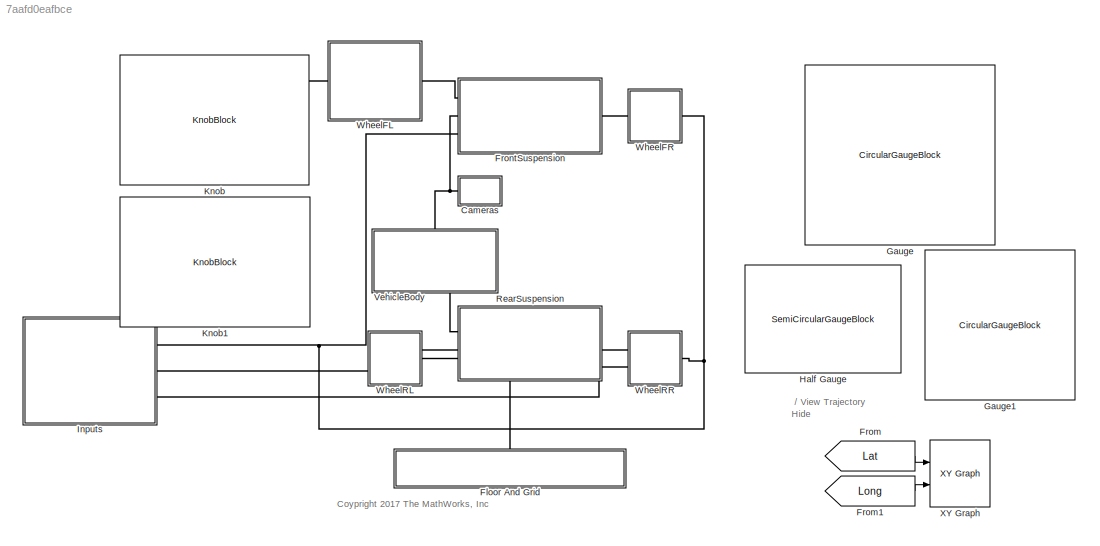
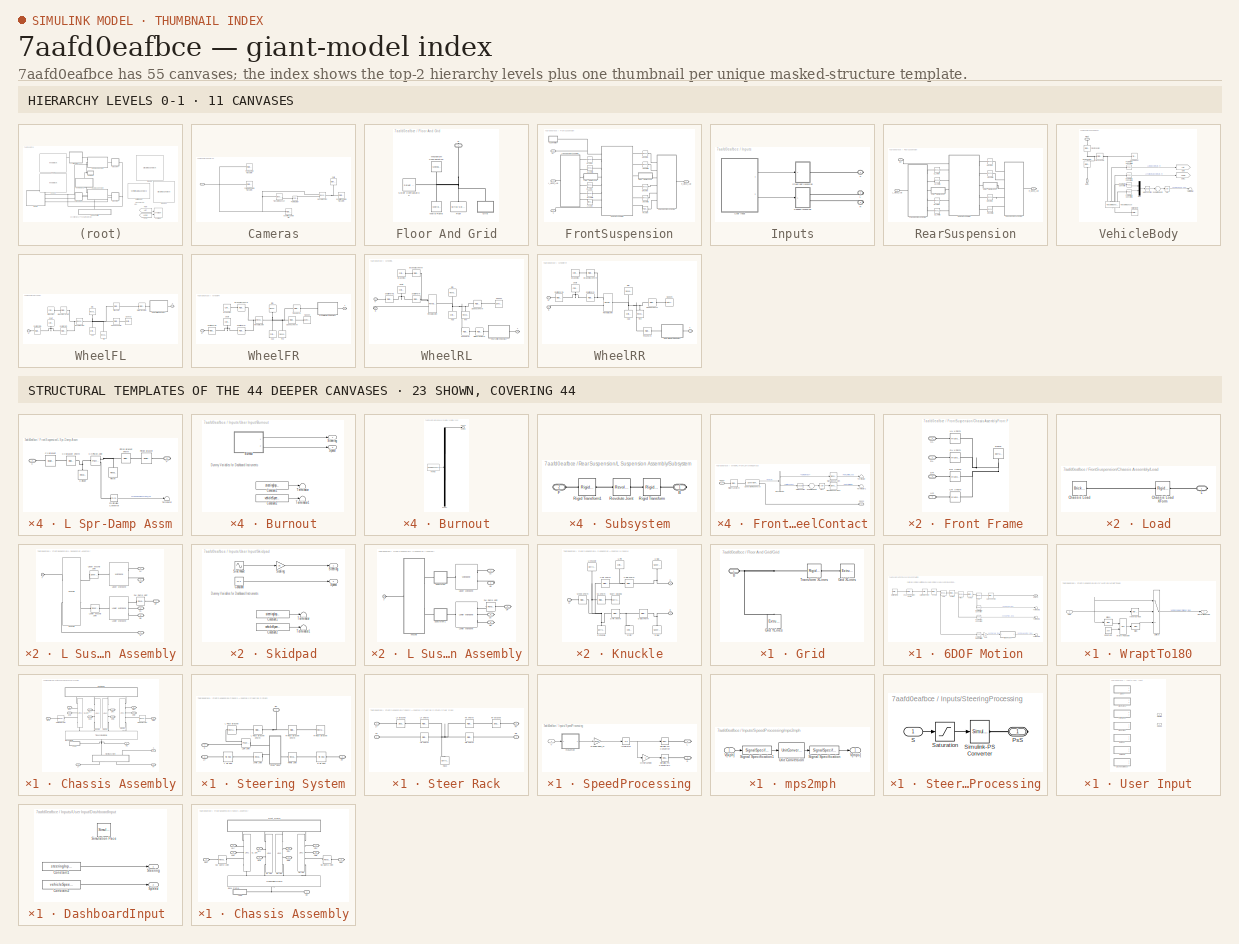
[diagram: thumbnail index - top-2 hierarchy levels (11 canvases) + 23 structural-template representatives of the remaining 44 canvases]
MODEL slx_7aafd0eafbce
KIND model
CONFIG AbsTol = auto
CONFIG EnableMultiTasking = on
CONFIG FixedStep = auto
CONFIG MaxStep = 0.01
CONFIG MinStep = auto
CONFIG PreLoadFcn = VehicleDynamicsInitialization
CONFIG RelTol = 1e-3
CONFIG SampleTimeConstraint = Unconstrained
CONFIG Solver = ode15s
CONFIG SolverName = ode15s
CONFIG StartTime = 0.0
CONFIG StopTime = 100
WORKSPACE source: external: MATLAB File  (data not in archive)
BLOCK [SubSystem] Cameras
  Ports = [0, 0, 0, 0, 0, 1]
  RequestExecContextInheritance = off
BLOCK [PMIOPort] Cameras/ 
  Side = Left
BLOCK [Reference] Cameras/Follower Camera Transform  REF=sm_lib/Frames and
Transforms/Rigid
Transform
  Ports = [0, 0, 0, 0, 0, 1, 1]
  SourceBlock = sm_lib/Frames and\nTransforms/Rigid\nTransform
  SourceProductBaseCode = MS
  SourceProductName = Simscape Multibody
  SourceType = Rigid\nTransform
BLOCK [Reference] Cameras/Front Camera Transform  REF=sm_lib/Frames and
Transforms/Rigid
Transform
  Ports = [0, 0, 0, 0, 0, 1, 1]
  SourceBlock = sm_lib/Frames and\nTransforms/Rigid\nTransform
  SourceProductBaseCode = MS
  SourceProductName = Simscape Multibody
  SourceType = Rigid\nTransform
BLOCK [Reference] Cameras/Isometric Camera Aim  REF=sm_lib/Frames and
Transforms/Rigid
Transform
  Ports = [0, 0, 0, 0, 0, 1, 1]
  SourceBlock = sm_lib/Frames and\nTransforms/Rigid\nTransform
  SourceProductBaseCode = MS
  SourceProductName = Simscape Multibody
  SourceType = Rigid\nTransform
BLOCK [Reference] Cameras/Isometric Camera Transform  REF=sm_lib/Frames and
Transforms/Rigid
Transform
  Ports = [0, 0, 0, 0, 0, 1, 1]
  SourceBlock = sm_lib/Frames and\nTransforms/Rigid\nTransform
  SourceProductBaseCode = MS
  SourceProductName = Simscape Multibody
  SourceType = Rigid\nTransform
BLOCK [Reference] Cameras/PS Integrator  REF=fl_ps_legacy_lib/Legacy Physical
Signals/Linear Operators/PS Integrator
  Ports = [0, 0, 0, 0, 0, 1, 1]
  SourceBlock = fl_ps_legacy_lib/Legacy Physical\nSignals/Linear Operators/PS Integrator
  SourceProductBaseCode = SS
  SourceProductName = Simscape
  SourceType = PS Integrator
BLOCK [Reference] Cameras/Revolute Joint  REF=sm_lib/Joints/Revolute Joint
  Ports = [0, 0, 0, 0, 0, 2, 1]
  SourceBlock = sm_lib/Joints/Revolute Joint
  SourceProductBaseCode = MS
  SourceProductName = Simscape Multibody
  SourceType = Revolute Joint
BLOCK [Reference] Cameras/Solid  REF=sm_lib/Body Elements/Brick Solid
  Ports = [0, 0, 0, 0, 0, 0, 1]
  SourceBlock = sm_lib/Body Elements/Brick Solid
  SourceProductBaseCode = MS
  SourceProductName = Simscape Multibody
  SourceType = Brick Solid
BLOCK [Reference] Cameras/Transform Sensor  REF=sm_lib/Frames and
Transforms/Transform
Sensor
  Ports = [0, 0, 0, 0, 0, 1, 2]
  SourceBlock = sm_lib/Frames and\nTransforms/Transform\nSensor
  SourceProductBaseCode = MS
  SourceProductName = Simscape Multibody
  SourceType = Transform\nSensor
BLOCK [SubSystem] Floor And Grid
  Ports = [0, 0, 0, 0, 0, 0, 1]
  RequestExecContextInheritance = off
BLOCK [Reference] Floor And Grid/Floor  REF=sm_lib/Body Elements/Brick Solid
  Ports = [0, 0, 0, 0, 0, 0, 1]
  SourceBlock = sm_lib/Body Elements/Brick Solid
  SourceProductBaseCode = MS
  SourceProductName = Simscape Multibody
  SourceType = Brick Solid
BLOCK [SubSystem] Floor And Grid/Grid
  Ports = [0, 0, 0, 0, 0, 1]
  RequestExecContextInheritance = off
BLOCK [PMIOPort] Floor And Grid/Grid/B
  Side = Left
BLOCK [Reference] Floor And Grid/Grid/Grid XLines  REF=sm_lib/Body Elements/Extruded Solid
  Ports = [0, 0, 0, 0, 0, 0, 1]
  SourceBlock = sm_lib/Body Elements/Extruded Solid
  SourceProductBaseCode = MS
  SourceProductName = Simscape Multibody
  SourceType = Extruded Solid
BLOCK [Reference] Floor And Grid/Grid/Grid YLines  REF=sm_lib/Body Elements/Extruded Solid
  Ports = [0, 0, 0, 0, 0, 0, 1]
  SourceBlock = sm_lib/Body Elements/Extruded Solid
  SourceProductBaseCode = MS
  SourceProductName = Simscape Multibody
  SourceType = Extruded Solid
BLOCK [Reference] Floor And Grid/Grid/Transform XLines   REF=sm_lib/Frames and
Transforms/Rigid
Transform
  Ports = [0, 0, 0, 0, 0, 1, 1]
  SourceBlock = sm_lib/Frames and\nTransforms/Rigid\nTransform
  SourceProductBaseCode = MS
  SourceProductName = Simscape Multibody
  SourceType = Rigid\nTransform
BLOCK [Reference] Floor And Grid/Mechanism Configuration  REF=sm_lib/Utilities/Mechanism
Configuration
  Ports = [0, 0, 0, 0, 0, 0, 1]
  SourceBlock = sm_lib/Utilities/Mechanism\nConfiguration
  SourceProductBaseCode = MS
  SourceProductName = Simscape Multibody
  SourceType = Mechanism\nConfiguration
BLOCK [PMIOPort] Floor And Grid/R
  Side = Right
BLOCK [Reference] Floor And Grid/Solver Configuration  REF=nesl_utility/Solver
Configuration
  Ports = [0, 0, 0, 0, 0, 0, 1]
  SourceBlock = nesl_utility/Solver\nConfiguration
  SourceProductBaseCode = SS
  SourceProductName = Simscape
  SourceType = Solver\nConfiguration
BLOCK [Reference] Floor And Grid/World Frame  REF=sm_lib/Frames and
Transforms/World Frame
  Ports = [0, 0, 0, 0, 0, 0, 1]
  SourceBlock = sm_lib/Frames and\nTransforms/World Frame
  SourceProductBaseCode = MS
  SourceProductName = Simscape Multibody
  SourceType = World Frame
BLOCK [From] From
  Commented = on
  GotoTag = Lat
  TagVisibility = global
BLOCK [From] From1
  Commented = on
  GotoTag = Long
  TagVisibility = global
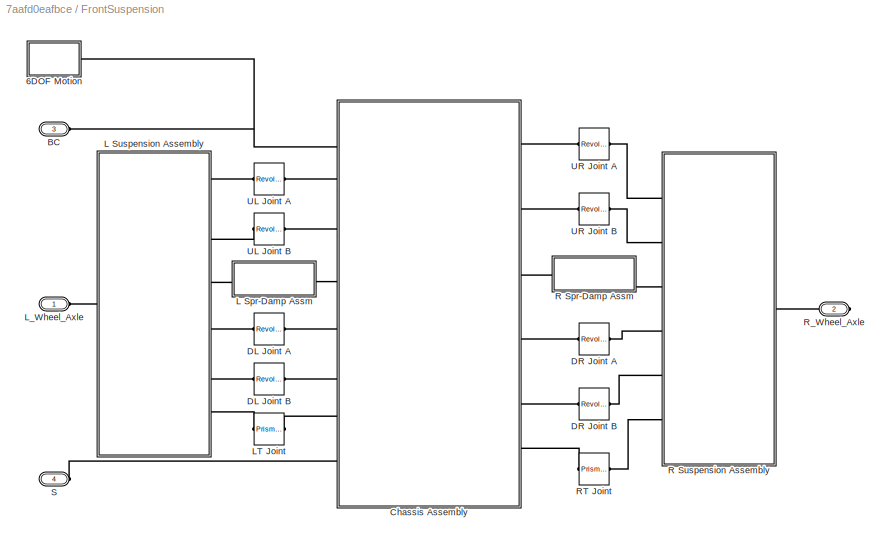
BLOCK [SubSystem] FrontSuspension
  Ports = [0, 0, 0, 0, 0, 3, 1]
  RequestExecContextInheritance = off
  VariantControl = DoubleWishbone
BLOCK [SubSystem] FrontSuspension/6DOF Motion
  Ports = [0, 0, 0, 0, 0, 0, 1]
  RequestExecContextInheritance = off
BLOCK [PMIOPort] FrontSuspension/6DOF Motion/Car XYZ
  Side = Right
BLOCK [Reference] FrontSuspension/6DOF Motion/Car XYZ XForm  REF=sm_lib/Frames and
Transforms/Rigid
Transform
  Ports = [0, 0, 0, 0, 0, 1, 1]
  SourceBlock = sm_lib/Frames and\nTransforms/Rigid\nTransform
  SourceProductBaseCode = MS
  SourceProductName = Simscape Multibody
  SourceType = Rigid\nTransform
BLOCK [Reference] FrontSuspension/6DOF Motion/Cartesian Joint  REF=sm_lib/Joints/Cartesian
Joint
  Ports = [0, 0, 0, 0, 0, 1, 1]
  SourceBlock = sm_lib/Joints/Cartesian\nJoint
  SourceProductBaseCode = MS
  SourceProductName = Simscape Multibody
  SourceType = Cartesian\nJoint
BLOCK [Reference] FrontSuspension/6DOF Motion/Chassis Restraint XForm  REF=sm_lib/Frames and
Transforms/Rigid
Transform
  Ports = [0, 0, 0, 0, 0, 1, 1]
  SourceBlock = sm_lib/Frames and\nTransforms/Rigid\nTransform
  SourceProductBaseCode = MS
  SourceProductName = Simscape Multibody
  SourceType = Rigid\nTransform
BLOCK [Gain] FrontSuspension/6DOF Motion/Gain
  Gain = -1
  OutDataTypeStr = Inherit: Inherit via internal rule
  ParamDataTypeStr = Inherit: Inherit via internal rule
  SaturateOnIntegerOverflow = off
BLOCK [Reference] FrontSuspension/6DOF Motion/PS-Simulink Converter  REF=nesl_utility/PS-Simulink
Converter
  Ports = [0, 1, 0, 0, 0, 1]
  SourceBlock = nesl_utility/PS-Simulink\nConverter
  SourceProductBaseCode = SS
  SourceProductName = Simscape
  SourceType = PS-Simulink\nConverter
BLOCK [Reference] FrontSuspension/6DOF Motion/PS-Simulink Converter1  REF=nesl_utility/PS-Simulink
Converter
  Ports = [0, 1, 0, 0, 0, 1]
  SourceBlock = nesl_utility/PS-Simulink\nConverter
  SourceProductBaseCode = SS
  SourceProductName = Simscape
  SourceType = PS-Simulink\nConverter
BLOCK [Reference] FrontSuspension/6DOF Motion/PS-Simulink Converter2  REF=nesl_utility/PS-Simulink
Converter
  Ports = [0, 1, 0, 0, 0, 1]
  SourceBlock = nesl_utility/PS-Simulink\nConverter
  SourceProductBaseCode = SS
  SourceProductName = Simscape
  SourceType = PS-Simulink\nConverter
BLOCK [Reference] FrontSuspension/6DOF Motion/Pitch  REF=sm_lib/Joints/Revolute Joint
  Ports = [0, 0, 0, 0, 0, 1, 2]
  SourceBlock = sm_lib/Joints/Revolute Joint
  SourceProductBaseCode = MS
  SourceProductName = Simscape Multibody
  SourceType = Revolute Joint
BLOCK [Reference] FrontSuspension/6DOF Motion/Roll  REF=sm_lib/Joints/Revolute Joint
  Ports = [0, 0, 0, 0, 0, 1, 2]
  SourceBlock = sm_lib/Joints/Revolute Joint
  SourceProductBaseCode = MS
  SourceProductName = Simscape Multibody
  SourceType = Revolute Joint
BLOCK [Terminator] FrontSuspension/6DOF Motion/Terminator1
BLOCK [Terminator] FrontSuspension/6DOF Motion/Terminator2
BLOCK [Terminator] FrontSuspension/6DOF Motion/Terminator3
BLOCK [Reference] FrontSuspension/6DOF Motion/ToPitch  REF=sm_lib/Frames and
Transforms/Rigid
Transform
  Ports = [0, 0, 0, 0, 0, 1, 1]
  SourceBlock = sm_lib/Frames and\nTransforms/Rigid\nTransform
  SourceProductBaseCode = MS
  SourceProductName = Simscape Multibody
  SourceType = Rigid\nTransform
BLOCK [Reference] FrontSuspension/6DOF Motion/ToRoll  REF=sm_lib/Frames and
Transforms/Rigid
Transform
  Ports = [0, 0, 0, 0, 0, 1, 1]
  SourceBlock = sm_lib/Frames and\nTransforms/Rigid\nTransform
  SourceProductBaseCode = MS
  SourceProductName = Simscape Multibody
  SourceType = Rigid\nTransform
BLOCK [Reference] FrontSuspension/6DOF Motion/ToYaw  REF=sm_lib/Frames and
Transforms/Rigid
Transform
  Ports = [0, 0, 0, 0, 0, 1, 1]
  SourceBlock = sm_lib/Frames and\nTransforms/Rigid\nTransform
  SourceProductBaseCode = MS
  SourceProductName = Simscape Multibody
  SourceType = Rigid\nTransform
BLOCK [Reference] FrontSuspension/6DOF Motion/World Frame  REF=sm_lib/Frames and
Transforms/World Frame
  Ports = [0, 0, 0, 0, 0, 0, 1]
  SourceBlock = sm_lib/Frames and\nTransforms/World Frame
  SourceProductBaseCode = MS
  SourceProductName = Simscape Multibody
  SourceType = World Frame
BLOCK [SubSystem] FrontSuspension/6DOF Motion/WraptTo180
  Ports = [1, 1]
  RequestExecContextInheritance = off
BLOCK [Bias] FrontSuspension/6DOF Motion/WraptTo180/Bias
  Bias = -180
  SaturateOnIntegerOverflow = off
BLOCK [Bias] FrontSuspension/6DOF Motion/WraptTo180/Bias1
  Bias = 180
  SaturateOnIntegerOverflow = off
BLOCK [Constant] FrontSuspension/6DOF Motion/WraptTo180/Constant
  Value = 360
BLOCK [Reference] FrontSuspension/6DOF Motion/WraptTo180/Interval Test  REF=simulink/Logic and Bit
Operations/Interval Test
  Ports = [1, 1]
  SourceBlock = simulink/Logic and Bit\nOperations/Interval Test
  SourceProductBaseCode = SL
  SourceProductName = Simulink
  SourceType = Interval Test
BLOCK [Math] FrontSuspension/6DOF Motion/WraptTo180/Math Function
  Operator = mod
  Ports = [2, 1]
BLOCK [Outport] FrontSuspension/6DOF Motion/WraptTo180/NormalizedYaw
  IconDisplay = Port number
BLOCK [Switch] FrontSuspension/6DOF Motion/WraptTo180/Switch
  Criteria = u2 ~= 0
  InputSameDT = off
  SaturateOnIntegerOverflow = off
BLOCK [Inport] FrontSuspension/6DOF Motion/WraptTo180/Yaw
  IconDisplay = Port number
BLOCK [Reference] FrontSuspension/6DOF Motion/Yaw  REF=sm_lib/Joints/Revolute Joint
  Ports = [0, 0, 0, 0, 0, 1, 2]
  SourceBlock = sm_lib/Joints/Revolute Joint
  SourceProductBaseCode = MS
  SourceProductName = Simscape Multibody
  SourceType = Revolute Joint
BLOCK [PMIOPort] FrontSuspension/BC
  Port = 3
  Side = Left
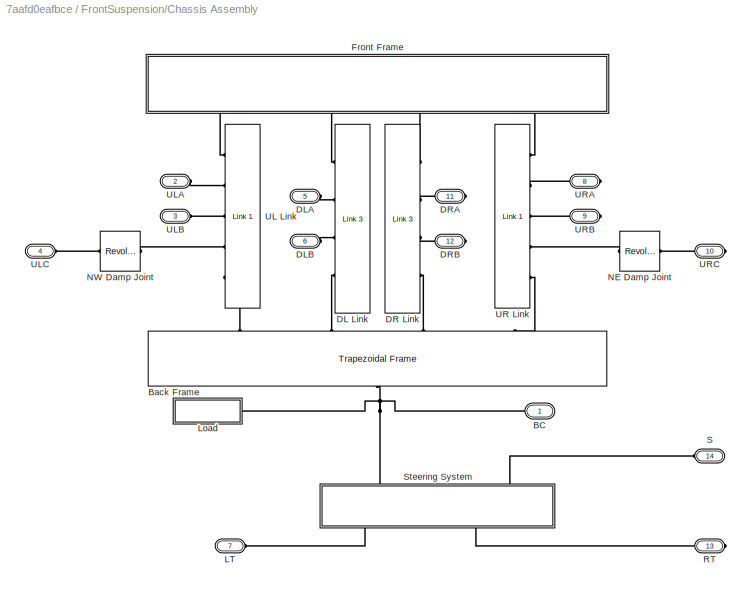
BLOCK [SubSystem] FrontSuspension/Chassis Assembly
  Ports = [0, 0, 0, 0, 0, 8, 6]
  RequestExecContextInheritance = off
BLOCK [PMIOPort] FrontSuspension/Chassis Assembly/BC
  Side = Left
BLOCK [Reference] FrontSuspension/Chassis Assembly/Back Frame  REF=sm_suspension_templates_lib/Trapezoidal
Frame
  Ports = [0, 0, 0, 0, 0, 4, 1]
  SourceBlock = sm_suspension_templates_lib/Trapezoidal\nFrame
  SourceType = Trapeziodal Frame
BLOCK [Reference] FrontSuspension/Chassis Assembly/DL Link  REF=sm_suspension_templates_lib/Link 3
  Ports = [0, 0, 0, 0, 0, 4]
  SourceBlock = sm_suspension_templates_lib/Link 3
  SourceType = Link 3
BLOCK [PMIOPort] FrontSuspension/Chassis Assembly/DLA
  Port = 5
  Side = Left
BLOCK [PMIOPort] FrontSuspension/Chassis Assembly/DLB
  Port = 6
  Side = Left
BLOCK [Reference] FrontSuspension/Chassis Assembly/DR Link  REF=sm_suspension_templates_lib/Link 3
  Ports = [0, 0, 0, 0, 0, 4]
  SourceBlock = sm_suspension_templates_lib/Link 3
  SourceType = Link 3
BLOCK [PMIOPort] FrontSuspension/Chassis Assembly/DRA
  Port = 11
  Side = Right
BLOCK [PMIOPort] FrontSuspension/Chassis Assembly/DRB
  Port = 12
  Side = Right
BLOCK [SubSystem] FrontSuspension/Chassis Assembly/Front Frame
  Ports = [0, 0, 0, 0, 0, 4]
  RequestExecContextInheritance = off
BLOCK [PMIOPort] FrontSuspension/Chassis Assembly/Front Frame/DL
  Port = 2
  Side = Left
BLOCK [Reference] FrontSuspension/Chassis Assembly/Front Frame/DL XForm  REF=sm_lib/Frames and
Transforms/Rigid
Transform
  Ports = [0, 0, 0, 0, 0, 1, 1]
  SourceBlock = sm_lib/Frames and\nTransforms/Rigid\nTransform
  SourceProductBaseCode = MS
  SourceProductName = Simscape Multibody
  SourceType = Rigid\nTransform
BLOCK [PMIOPort] FrontSuspension/Chassis Assembly/Front Frame/DR
  Port = 3
  Side = Left
BLOCK [Reference] FrontSuspension/Chassis Assembly/Front Frame/DR XForm  REF=sm_lib/Frames and
Transforms/Rigid
Transform
  Ports = [0, 0, 0, 0, 0, 1, 1]
  SourceBlock = sm_lib/Frames and\nTransforms/Rigid\nTransform
  SourceProductBaseCode = MS
  SourceProductName = Simscape Multibody
  SourceType = Rigid\nTransform
BLOCK [Reference] FrontSuspension/Chassis Assembly/Front Frame/Frame  REF=sm_lib/Body Elements/Extruded Solid
  Ports = [0, 0, 0, 0, 0, 0, 1]
  SourceBlock = sm_lib/Body Elements/Extruded Solid
  SourceProductBaseCode = MS
  SourceProductName = Simscape Multibody
  SourceType = Extruded Solid
BLOCK [PMIOPort] FrontSuspension/Chassis Assembly/Front Frame/UL
  Side = Left
BLOCK [Reference] FrontSuspension/Chassis Assembly/Front Frame/UL XForm  REF=sm_lib/Frames and
Transforms/Rigid
Transform
  Ports = [0, 0, 0, 0, 0, 1, 1]
  SourceBlock = sm_lib/Frames and\nTransforms/Rigid\nTransform
  SourceProductBaseCode = MS
  SourceProductName = Simscape Multibody
  SourceType = Rigid\nTransform
BLOCK [PMIOPort] FrontSuspension/Chassis Assembly/Front Frame/UR
  Port = 4
  Side = Left
BLOCK [Reference] FrontSuspension/Chassis Assembly/Front Frame/UR XForm  REF=sm_lib/Frames and
Transforms/Rigid
Transform
  Ports = [0, 0, 0, 0, 0, 1, 1]
  SourceBlock = sm_lib/Frames and\nTransforms/Rigid\nTransform
  SourceProductBaseCode = MS
  SourceProductName = Simscape Multibody
  SourceType = Rigid\nTransform
BLOCK [PMIOPort] FrontSuspension/Chassis Assembly/LT
  Port = 7
  Side = Left
BLOCK [SubSystem] FrontSuspension/Chassis Assembly/Load
  Ports = [0, 0, 0, 0, 0, 0, 1]
  RequestExecContextInheritance = off
BLOCK [Reference] FrontSuspension/Chassis Assembly/Load/Chassis Load  REF=sm_lib/Body Elements/Brick Solid
  Ports = [0, 0, 0, 0, 0, 0, 1]
  SourceBlock = sm_lib/Body Elements/Brick Solid
  SourceProductBaseCode = MS
  SourceProductName = Simscape Multibody
  SourceType = Brick Solid
BLOCK [Reference] FrontSuspension/Chassis Assembly/Load/Chassis Load XForm  REF=sm_lib/Frames and
Transforms/Rigid
Transform
  Ports = [0, 0, 0, 0, 0, 1, 1]
  SourceBlock = sm_lib/Frames and\nTransforms/Rigid\nTransform
  SourceProductBaseCode = MS
  SourceProductName = Simscape Multibody
  SourceType = Rigid\nTransform
BLOCK [PMIOPort] FrontSuspension/Chassis Assembly/Load/L
  Side = Right
BLOCK [Reference] FrontSuspension/Chassis Assembly/NE Damp Joint  REF=sm_lib/Joints/Revolute Joint
  Ports = [0, 0, 0, 0, 0, 1, 1]
  SourceBlock = sm_lib/Joints/Revolute Joint
  SourceProductBaseCode = MS
  SourceProductName = Simscape Multibody
  SourceType = Revolute Joint
BLOCK [Reference] FrontSuspension/Chassis Assembly/NW Damp Joint  REF=sm_lib/Joints/Revolute Joint
  Ports = [0, 0, 0, 0, 0, 1, 1]
  SourceBlock = sm_lib/Joints/Revolute Joint
  SourceProductBaseCode = MS
  SourceProductName = Simscape Multibody
  SourceType = Revolute Joint
BLOCK [PMIOPort] FrontSuspension/Chassis Assembly/RT
  Port = 13
  Side = Right
BLOCK [PMIOPort] FrontSuspension/Chassis Assembly/S
  Port = 14
  Side = Left
BLOCK [SubSystem] FrontSuspension/Chassis Assembly/Steering System
  Ports = [0, 0, 0, 0, 0, 2, 2]
  RequestExecContextInheritance = off
BLOCK [PMIOPort] FrontSuspension/Chassis Assembly/Steering System/BC
  Side = Left
BLOCK [Reference] FrontSuspension/Chassis Assembly/Steering System/L Rack Bracket  REF=sm_suspension_templates_lib/Rectangular Hole
Bracket
  Ports = [0, 0, 0, 0, 0, 1, 1]
  SourceBlock = sm_suspension_templates_lib/Rectangular Hole\nBracket
  SourceType = Bracket
BLOCK [Reference] FrontSuspension/Chassis Assembly/Steering System/L Rack Bracket XForm  REF=sm_lib/Frames and
Transforms/Rigid
Transform
  Ports = [0, 0, 0, 0, 0, 1, 1]
  SourceBlock = sm_lib/Frames and\nTransforms/Rigid\nTransform
  SourceProductBaseCode = MS
  SourceProductName = Simscape Multibody
  SourceType = Rigid\nTransform
BLOCK [Reference] FrontSuspension/Chassis Assembly/Steering System/L Tie Rod  REF=sm_suspension_templates_lib/Tie Rod
  Ports = [0, 0, 0, 0, 0, 1, 1]
  SourceBlock = sm_suspension_templates_lib/Tie Rod
  SourceType = Tie Rod
BLOCK [Reference] FrontSuspension/Chassis Assembly/Steering System/LBR Joint  REF=sm_lib/Joints/Prismatic
Joint
  Ports = [0, 0, 0, 0, 0, 2, 1]
  SourceBlock = sm_lib/Joints/Prismatic\nJoint
  SourceProductBaseCode = MS
  SourceProductName = Simscape Multibody
  SourceType = Prismatic\nJoint
BLOCK [Reference] FrontSuspension/Chassis Assembly/Steering System/LRTie Joint  REF=sm_lib/Joints/Revolute Joint
  Ports = [0, 0, 0, 0, 0, 1, 1]
  SourceBlock = sm_lib/Joints/Revolute Joint
  SourceProductBaseCode = MS
  SourceProductName = Simscape Multibody
  SourceType = Revolute Joint
BLOCK [PMIOPort] FrontSuspension/Chassis Assembly/Steering System/LT
  Port = 2
  Side = Right
BLOCK [Reference] FrontSuspension/Chassis Assembly/Steering System/R Rack Bracket  REF=sm_suspension_templates_lib/Rectangular Hole
Bracket
  Ports = [0, 0, 0, 0, 0, 1, 1]
  SourceBlock = sm_suspension_templates_lib/Rectangular Hole\nBracket
  SourceType = Bracket
BLOCK [Reference] FrontSuspension/Chassis Assembly/Steering System/R Rack Bracket XForm  REF=sm_lib/Frames and
Transforms/Rigid
Transform
  Ports = [0, 0, 0, 0, 0, 1, 1]
  SourceBlock = sm_lib/Frames and\nTransforms/Rigid\nTransform
  SourceProductBaseCode = MS
  SourceProductName = Simscape Multibody
  SourceType = Rigid\nTransform
BLOCK [Reference] FrontSuspension/Chassis Assembly/Steering System/R Tie Rod  REF=sm_suspension_templates_lib/Tie Rod
  Ports = [0, 0, 0, 0, 0, 1, 1]
  SourceBlock = sm_suspension_templates_lib/Tie Rod
  SourceType = Tie Rod
BLOCK [Reference] FrontSuspension/Chassis Assembly/Steering System/RRTie Joint  REF=sm_lib/Joints/Revolute Joint
  Ports = [0, 0, 0, 0, 0, 1, 1]
  SourceBlock = sm_lib/Joints/Revolute Joint
  SourceProductBaseCode = MS
  SourceProductName = Simscape Multibody
  SourceType = Revolute Joint
BLOCK [PMIOPort] FrontSuspension/Chassis Assembly/Steering System/RT
  Port = 3
  Side = Right
BLOCK [PMIOPort] FrontSuspension/Chassis Assembly/Steering System/S
  Port = 4
  Side = Left
BLOCK [SubSystem] FrontSuspension/Chassis Assembly/Steering System/Steer Rack
  Ports = [0, 0, 0, 0, 0, 2, 2]
  RequestExecContextInheritance = off
BLOCK [PMIOPort] FrontSuspension/Chassis Assembly/Steering System/Steer Rack/LB
  Side = Left
BLOCK [Reference] FrontSuspension/Chassis Assembly/Steering System/Steer Rack/LB XForm  REF=sm_lib/Frames and
Transforms/Rigid
Transform
  Ports = [0, 0, 0, 0, 0, 1, 1]
  SourceBlock = sm_lib/Frames and\nTransforms/Rigid\nTransform
  SourceProductBaseCode = MS
  SourceProductName = Simscape Multibody
  SourceType = Rigid\nTransform
BLOCK [PMIOPort] FrontSuspension/Chassis Assembly/Steering System/Steer Rack/LT
  Port = 2
  Side = Left
BLOCK [Reference] FrontSuspension/Chassis Assembly/Steering System/Steer Rack/LT Bracket  REF=sm_suspension_templates_lib/Single
Bracket
  Ports = [0, 0, 0, 0, 0, 1, 1]
  SourceBlock = sm_suspension_templates_lib/Single\nBracket
  SourceType = Bracket
BLOCK [Reference] FrontSuspension/Chassis Assembly/Steering System/Steer Rack/LT XForm  REF=sm_lib/Frames and
Transforms/Rigid
Transform
  Ports = [0, 0, 0, 0, 0, 1, 1]
  SourceBlock = sm_lib/Frames and\nTransforms/Rigid\nTransform
  SourceProductBaseCode = MS
  SourceProductName = Simscape Multibody
  SourceType = Rigid\nTransform
BLOCK [PMIOPort] FrontSuspension/Chassis Assembly/Steering System/Steer Rack/RB
  Port = 3
  Side = Right
BLOCK [Reference] FrontSuspension/Chassis Assembly/Steering System/Steer Rack/RB XForm  REF=sm_lib/Frames and
Transforms/Rigid
Transform
  Ports = [0, 0, 0, 0, 0, 1, 1]
  SourceBlock = sm_lib/Frames and\nTransforms/Rigid\nTransform
  SourceProductBaseCode = MS
  SourceProductName = Simscape Multibody
  SourceType = Rigid\nTransform
BLOCK [PMIOPort] FrontSuspension/Chassis Assembly/Steering System/Steer Rack/RT
  Port = 4
  Side = Right
BLOCK [Reference] FrontSuspension/Chassis Assembly/Steering System/Steer Rack/RT Bracket  REF=sm_suspension_templates_lib/Single
Bracket
  Ports = [0, 0, 0, 0, 0, 1, 1]
  SourceBlock = sm_suspension_templates_lib/Single\nBracket
  SourceType = Bracket
BLOCK [Reference] FrontSuspension/Chassis Assembly/Steering System/Steer Rack/RT XForm  REF=sm_lib/Frames and
Transforms/Rigid
Transform
  Ports = [0, 0, 0, 0, 0, 1, 1]
  SourceBlock = sm_lib/Frames and\nTransforms/Rigid\nTransform
  SourceProductBaseCode = MS
  SourceProductName = Simscape Multibody
  SourceType = Rigid\nTransform
BLOCK [Reference] FrontSuspension/Chassis Assembly/Steering System/Steer Rack/Rack  REF=sm_lib/Body Elements/Extruded Solid
  Ports = [0, 0, 0, 0, 0, 0, 1]
  SourceBlock = sm_lib/Body Elements/Extruded Solid
  SourceProductBaseCode = MS
  SourceProductName = Simscape Multibody
  SourceType = Extruded Solid
BLOCK [Reference] FrontSuspension/Chassis Assembly/UL Link  REF=sm_suspension_templates_lib/Link 1
  Ports = [0, 0, 0, 0, 0, 5]
  SourceBlock = sm_suspension_templates_lib/Link 1
  SourceType = Link 1
BLOCK [PMIOPort] FrontSuspension/Chassis Assembly/ULA
  Port = 2
  Side = Left
BLOCK [PMIOPort] FrontSuspension/Chassis Assembly/ULB
  Port = 3
  Side = Left
BLOCK [PMIOPort] FrontSuspension/Chassis Assembly/ULC
  Port = 4
  Side = Left
BLOCK [Reference] FrontSuspension/Chassis Assembly/UR Link  REF=sm_suspension_templates_lib/Link 1
  Ports = [0, 0, 0, 0, 0, 5]
  SourceBlock = sm_suspension_templates_lib/Link 1
  SourceType = Link 1
BLOCK [PMIOPort] FrontSuspension/Chassis Assembly/URA
  Port = 8
  Side = Right
BLOCK [PMIOPort] FrontSuspension/Chassis Assembly/URB
  Port = 9
  Side = Right
BLOCK [PMIOPort] FrontSuspension/Chassis Assembly/URC
  Port = 10
  Side = Right
BLOCK [Reference] FrontSuspension/DL Joint A  REF=sm_lib/Joints/Revolute Joint
  Ports = [0, 0, 0, 0, 0, 1, 1]
  SourceBlock = sm_lib/Joints/Revolute Joint
  SourceProductBaseCode = MS
  SourceProductName = Simscape Multibody
  SourceType = Revolute Joint
BLOCK [Reference] FrontSuspension/DL Joint B  REF=sm_lib/Joints/Revolute Joint
  Ports = [0, 0, 0, 0, 0, 1, 1]
  SourceBlock = sm_lib/Joints/Revolute Joint
  SourceProductBaseCode = MS
  SourceProductName = Simscape Multibody
  SourceType = Revolute Joint
BLOCK [Reference] FrontSuspension/DR Joint A  REF=sm_lib/Joints/Revolute Joint
  Ports = [0, 0, 0, 0, 0, 1, 1]
  SourceBlock = sm_lib/Joints/Revolute Joint
  SourceProductBaseCode = MS
  SourceProductName = Simscape Multibody
  SourceType = Revolute Joint
BLOCK [Reference] FrontSuspension/DR Joint B  REF=sm_lib/Joints/Revolute Joint
  Ports = [0, 0, 0, 0, 0, 1, 1]
  SourceBlock = sm_lib/Joints/Revolute Joint
  SourceProductBaseCode = MS
  SourceProductName = Simscape Multibody
  SourceType = Revolute Joint
BLOCK [SubSystem] FrontSuspension/L Spr-Damp Assm
  Ports = [0, 0, 0, 0, 0, 1, 1]
  RequestExecContextInheritance = off
BLOCK [PMIOPort] FrontSuspension/L Spr-Damp Assm/C
  Port = 2
  Side = Left
BLOCK [Reference] FrontSuspension/L Spr-Damp Assm/Cyl Bracket  REF=sm_suspension_templates_lib/Single
Bracket
  Ports = [0, 0, 0, 0, 0, 1, 1]
  SourceBlock = sm_suspension_templates_lib/Single\nBracket
  SourceType = Bracket
BLOCK [Reference] FrontSuspension/L Spr-Damp Assm/Cyl Bracket XForm  REF=sm_lib/Frames and
Transforms/Rigid
Transform
  Ports = [0, 0, 0, 0, 0, 1, 1]
  SourceBlock = sm_lib/Frames and\nTransforms/Rigid\nTransform
  SourceProductBaseCode = MS
  SourceProductName = Simscape Multibody
  SourceType = Rigid\nTransform
BLOCK [Reference] FrontSuspension/L Spr-Damp Assm/Cyl-Piston Joint  REF=sm_lib/Joints/Prismatic
Joint
  Ports = [0, 0, 0, 0, 0, 1, 2]
  SourceBlock = sm_lib/Joints/Prismatic\nJoint
  SourceProductBaseCode = MS
  SourceProductName = Simscape Multibody
  SourceType = Prismatic\nJoint
BLOCK [Reference] FrontSuspension/L Spr-Damp Assm/Cylinder  REF=sm_lib/Body Elements/Revolved Solid
  Ports = [0, 0, 0, 0, 0, 0, 1]
  SourceBlock = sm_lib/Body Elements/Revolved Solid
  SourceProductBaseCode = MS
  SourceProductName = Simscape Multibody
  SourceType = Revolved Solid
BLOCK [PMIOPort] FrontSuspension/L Spr-Damp Assm/P
  Side = Right
BLOCK [Reference] FrontSuspension/L Spr-Damp Assm/PS-Simulink Converter  REF=nesl_utility/PS-Simulink
Converter
  Ports = [0, 1, 0, 0, 0, 1]
  SourceBlock = nesl_utility/PS-Simulink\nConverter
  SourceProductBaseCode = SS
  SourceProductName = Simscape
  SourceType = PS-Simulink\nConverter
BLOCK [Reference] FrontSuspension/L Spr-Damp Assm/Pistion Bracket  REF=sm_suspension_templates_lib/Single
Bracket
  Ports = [0, 0, 0, 0, 0, 1, 1]
  SourceBlock = sm_suspension_templates_lib/Single\nBracket
  SourceType = Bracket
BLOCK [Reference] FrontSuspension/L Spr-Damp Assm/Piston  REF=sm_lib/Body Elements/Revolved Solid
  Ports = [0, 0, 0, 0, 0, 0, 1]
  SourceBlock = sm_lib/Body Elements/Revolved Solid
  SourceProductBaseCode = MS
  SourceProductName = Simscape Multibody
  SourceType = Revolved Solid
BLOCK [Reference] FrontSuspension/L Spr-Damp Assm/Piston Bracket XForm  REF=sm_lib/Frames and
Transforms/Rigid
Transform
  Ports = [0, 0, 0, 0, 0, 1, 1]
  SourceBlock = sm_lib/Frames and\nTransforms/Rigid\nTransform
  SourceProductBaseCode = MS
  SourceProductName = Simscape Multibody
  SourceType = Rigid\nTransform
BLOCK [Terminator] FrontSuspension/L Spr-Damp Assm/Terminator
BLOCK [SubSystem] FrontSuspension/L Suspension Assembly
  Ports = [0, 0, 0, 0, 0, 1, 6]
  RequestExecContextInheritance = off
BLOCK [PMIOPort] FrontSuspension/L Suspension Assembly/DA
  Port = 5
  Side = Right
BLOCK [PMIOPort] FrontSuspension/L Suspension Assembly/DB
  Port = 6
  Side = Right
BLOCK [PMIOPort] FrontSuspension/L Suspension Assembly/DP
  Port = 4
  Side = Right
BLOCK [Reference] FrontSuspension/L Suspension Assembly/Knuckle  REF=sm_suspension_templates_lib/Knuckle
  Ports = [0, 0, 0, 0, 0, 2, 2]
  SourceBlock = sm_suspension_templates_lib/Knuckle
  SourceType = Steering knuckle
BLOCK [Reference] FrontSuspension/L Suspension Assembly/Lower Knuckle Joint  REF=sm_lib/Joints/Spherical
Joint
  Ports = [0, 0, 0, 0, 0, 1, 1]
  SourceBlock = sm_lib/Joints/Spherical\nJoint
  SourceProductBaseCode = MS
  SourceProductName = Simscape Multibody
  SourceType = Spherical\nJoint
BLOCK [Reference] FrontSuspension/L Suspension Assembly/Lower Wishbone  REF=sm_suspension_templates_lib/Lower Wishbone
  Ports = [0, 0, 0, 0, 0, 3, 1]
  SourceBlock = sm_suspension_templates_lib/Lower Wishbone
  SourceType = Lower Wishbone
BLOCK [PMIOPort] FrontSuspension/L Suspension Assembly/S
  Port = 7
  Side = Right
BLOCK [Reference] FrontSuspension/L Suspension Assembly/SW Damp Joint  REF=sm_lib/Joints/Revolute Joint
  Ports = [0, 0, 0, 0, 0, 1, 1]
  SourceBlock = sm_lib/Joints/Revolute Joint
  SourceProductBaseCode = MS
  SourceProductName = Simscape Multibody
  SourceType = Revolute Joint
BLOCK [PMIOPort] FrontSuspension/L Suspension Assembly/T
  Port = 3
  Side = Left
BLOCK [PMIOPort] FrontSuspension/L Suspension Assembly/UA
  Side = Right
BLOCK [PMIOPort] FrontSuspension/L Suspension Assembly/UB
  Port = 2
  Side = Right
BLOCK [Reference] FrontSuspension/L Suspension Assembly/Upper Knuckle Joint  REF=sm_lib/Joints/Spherical
Joint
  Ports = [0, 0, 0, 0, 0, 1, 1]
  SourceBlock = sm_lib/Joints/Spherical\nJoint
  SourceProductBaseCode = MS
  SourceProductName = Simscape Multibody
  SourceType = Spherical\nJoint
BLOCK [Reference] FrontSuspension/L Suspension Assembly/Upper Wishbone  REF=sm_suspension_templates_lib/Wishbone
  Ports = [0, 0, 0, 0, 0, 2, 1]
  SourceBlock = sm_suspension_templates_lib/Wishbone
  SourceType = Wishbone
BLOCK [Reference] FrontSuspension/LT Joint  REF=sm_lib/Joints/Prismatic
Joint
  Ports = [0, 0, 0, 0, 0, 1, 1]
  SourceBlock = sm_lib/Joints/Prismatic\nJoint
  SourceProductBaseCode = MS
  SourceProductName = Simscape Multibody
  SourceType = Prismatic\nJoint
BLOCK [PMIOPort] FrontSuspension/L_Wheel_Axle
  Side = Left
BLOCK [SubSystem] FrontSuspension/R Spr-Damp Assm
  Ports = [0, 0, 0, 0, 0, 1, 1]
  RequestExecContextInheritance = off
BLOCK [PMIOPort] FrontSuspension/R Spr-Damp Assm/C
  Port = 2
  Side = Left
BLOCK [Reference] FrontSuspension/R Spr-Damp Assm/Cyl Bracket  REF=sm_suspension_templates_lib/Single
Bracket
  Ports = [0, 0, 0, 0, 0, 1, 1]
  SourceBlock = sm_suspension_templates_lib/Single\nBracket
  SourceType = Bracket
BLOCK [Reference] FrontSuspension/R Spr-Damp Assm/Cyl Bracket XForm  REF=sm_lib/Frames and
Transforms/Rigid
Transform
  Ports = [0, 0, 0, 0, 0, 1, 1]
  SourceBlock = sm_lib/Frames and\nTransforms/Rigid\nTransform
  SourceProductBaseCode = MS
  SourceProductName = Simscape Multibody
  SourceType = Rigid\nTransform
BLOCK [Reference] FrontSuspension/R Spr-Damp Assm/Cyl-Piston Joint  REF=sm_lib/Joints/Prismatic
Joint
  Ports = [0, 0, 0, 0, 0, 1, 2]
  SourceBlock = sm_lib/Joints/Prismatic\nJoint
  SourceProductBaseCode = MS
  SourceProductName = Simscape Multibody
  SourceType = Prismatic\nJoint
BLOCK [Reference] FrontSuspension/R Spr-Damp Assm/Cylinder  REF=sm_lib/Body Elements/Revolved Solid
  Ports = [0, 0, 0, 0, 0, 0, 1]
  SourceBlock = sm_lib/Body Elements/Revolved Solid
  SourceProductBaseCode = MS
  SourceProductName = Simscape Multibody
  SourceType = Revolved Solid
BLOCK [PMIOPort] FrontSuspension/R Spr-Damp Assm/P
  Side = Right
BLOCK [Reference] FrontSuspension/R Spr-Damp Assm/PS-Simulink Converter  REF=nesl_utility/PS-Simulink
Converter
  Ports = [0, 1, 0, 0, 0, 1]
  SourceBlock = nesl_utility/PS-Simulink\nConverter
  SourceProductBaseCode = SS
  SourceProductName = Simscape
  SourceType = PS-Simulink\nConverter
BLOCK [Reference] FrontSuspension/R Spr-Damp Assm/Pistion Bracket  REF=sm_suspension_templates_lib/Single
Bracket
  Ports = [0, 0, 0, 0, 0, 1, 1]
  SourceBlock = sm_suspension_templates_lib/Single\nBracket
  SourceType = Bracket
BLOCK [Reference] FrontSuspension/R Spr-Damp Assm/Piston  REF=sm_lib/Body Elements/Revolved Solid
  Ports = [0, 0, 0, 0, 0, 0, 1]
  SourceBlock = sm_lib/Body Elements/Revolved Solid
  SourceProductBaseCode = MS
  SourceProductName = Simscape Multibody
  SourceType = Revolved Solid
BLOCK [Reference] FrontSuspension/R Spr-Damp Assm/Piston Bracket XForm  REF=sm_lib/Frames and
Transforms/Rigid
Transform
  Ports = [0, 0, 0, 0, 0, 1, 1]
  SourceBlock = sm_lib/Frames and\nTransforms/Rigid\nTransform
  SourceProductBaseCode = MS
  SourceProductName = Simscape Multibody
  SourceType = Rigid\nTransform
BLOCK [Terminator] FrontSuspension/R Spr-Damp Assm/Terminator
BLOCK [SubSystem] FrontSuspension/R Suspension Assembly
  Ports = [0, 0, 0, 0, 0, 6, 1]
  RequestExecContextInheritance = off
BLOCK [PMIOPort] FrontSuspension/R Suspension Assembly/DA
  Port = 5
  Side = Left
BLOCK [PMIOPort] FrontSuspension/R Suspension Assembly/DB
  Port = 6
  Side = Left
BLOCK [PMIOPort] FrontSuspension/R Suspension Assembly/DP
  Port = 4
  Side = Left
BLOCK [Reference] FrontSuspension/R Suspension Assembly/Knuckle  REF=sm_suspension_templates_lib/Knuckle
  Ports = [0, 0, 0, 0, 0, 2, 2]
  SourceBlock = sm_suspension_templates_lib/Knuckle
  SourceType = Steering knuckle
BLOCK [Reference] FrontSuspension/R Suspension Assembly/Lower Knuckle Joint  REF=sm_lib/Joints/Spherical
Joint
  Ports = [0, 0, 0, 0, 0, 1, 1]
  SourceBlock = sm_lib/Joints/Spherical\nJoint
  SourceProductBaseCode = MS
  SourceProductName = Simscape Multibody
  SourceType = Spherical\nJoint
BLOCK [Reference] FrontSuspension/R Suspension Assembly/Lower Wishbone  REF=sm_suspension_templates_lib/Lower Wishbone
  Ports = [0, 0, 0, 0, 0, 3, 1]
  SourceBlock = sm_suspension_templates_lib/Lower Wishbone
  SourceType = Lower Wishbone
BLOCK [PMIOPort] FrontSuspension/R Suspension Assembly/S
  Port = 7
  Side = Left
BLOCK [Reference] FrontSuspension/R Suspension Assembly/SE Damp Joint  REF=sm_lib/Joints/Revolute Joint
  Ports = [0, 0, 0, 0, 0, 1, 1]
  SourceBlock = sm_lib/Joints/Revolute Joint
  SourceProductBaseCode = MS
  SourceProductName = Simscape Multibody
  SourceType = Revolute Joint
BLOCK [PMIOPort] FrontSuspension/R Suspension Assembly/T
  Port = 3
  Side = Right
BLOCK [PMIOPort] FrontSuspension/R Suspension Assembly/UA
  Side = Left
BLOCK [PMIOPort] FrontSuspension/R Suspension Assembly/UB
  Port = 2
  Side = Left
BLOCK [Reference] FrontSuspension/R Suspension Assembly/Upper Knuckle Joint  REF=sm_lib/Joints/Spherical
Joint
  Ports = [0, 0, 0, 0, 0, 1, 1]
  SourceBlock = sm_lib/Joints/Spherical\nJoint
  SourceProductBaseCode = MS
  SourceProductName = Simscape Multibody
  SourceType = Spherical\nJoint
BLOCK [Reference] FrontSuspension/R Suspension Assembly/Upper Wishbone  REF=sm_suspension_templates_lib/Wishbone
  Ports = [0, 0, 0, 0, 0, 2, 1]
  SourceBlock = sm_suspension_templates_lib/Wishbone
  SourceType = Wishbone
BLOCK [Reference] FrontSuspension/RT Joint  REF=sm_lib/Joints/Prismatic
Joint
  Ports = [0, 0, 0, 0, 0, 1, 1]
  SourceBlock = sm_lib/Joints/Prismatic\nJoint
  SourceProductBaseCode = MS
  SourceProductName = Simscape Multibody
  SourceType = Prismatic\nJoint
BLOCK [PMIOPort] FrontSuspension/R_Wheel_Axle
  Port = 2
  Side = Right
BLOCK [PMIOPort] FrontSuspension/S
  Port = 4
  Side = Left
BLOCK [Reference] FrontSuspension/UL Joint A  REF=sm_lib/Joints/Revolute Joint
  Ports = [0, 0, 0, 0, 0, 1, 1]
  SourceBlock = sm_lib/Joints/Revolute Joint
  SourceProductBaseCode = MS
  SourceProductName = Simscape Multibody
  SourceType = Revolute Joint
BLOCK [Reference] FrontSuspension/UL Joint B  REF=sm_lib/Joints/Revolute Joint
  Ports = [0, 0, 0, 0, 0, 1, 1]
  SourceBlock = sm_lib/Joints/Revolute Joint
  SourceProductBaseCode = MS
  SourceProductName = Simscape Multibody
  SourceType = Revolute Joint
BLOCK [Reference] FrontSuspension/UR Joint A  REF=sm_lib/Joints/Revolute Joint
  Ports = [0, 0, 0, 0, 0, 1, 1]
  SourceBlock = sm_lib/Joints/Revolute Joint
  SourceProductBaseCode = MS
  SourceProductName = Simscape Multibody
  SourceType = Revolute Joint
BLOCK [Reference] FrontSuspension/UR Joint B  REF=sm_lib/Joints/Revolute Joint
  Ports = [0, 0, 0, 0, 0, 1, 1]
  SourceBlock = sm_lib/Joints/Revolute Joint
  SourceProductBaseCode = MS
  SourceProductName = Simscape Multibody
  SourceType = Revolute Joint
BLOCK [CircularGaugeBlock] Gauge
  ScaleMax = 50
BLOCK [CircularGaugeBlock] Gauge1
  ScaleMax = 180
  ScaleMin = -180
  TickInterval = 45
BLOCK [SemiCircularGaugeBlock] Half Gauge
  ScaleMax = 1
  ScaleMin = -1
  TickInterval = 0.5
BLOCK [SubSystem] Inputs
  Ports = [0, 0, 0, 0, 0, 0, 3]
  RequestExecContextInheritance = off
BLOCK [PMIOPort] Inputs/L
  Port = 2
  Side = Right
BLOCK [PMIOPort] Inputs/R
  Port = 3
  Side = Right
BLOCK [PMIOPort] Inputs/S
  Side = Right
BLOCK [SubSystem] Inputs/SpeedProcessing
  Ports = [1, 0, 0, 0, 0, 0, 2]
  RequestExecContextInheritance = off
BLOCK [Integrator] Inputs/SpeedProcessing/Integrator
  Ports = [1, 1]
BLOCK [PMIOPort] Inputs/SpeedProcessing/L
  Side = Right
BLOCK [Gain] Inputs/SpeedProcessing/OtherWheel
  Gain = -1
  OutDataTypeStr = Inherit: Inherit via internal rule
  ParamDataTypeStr = Inherit: Inherit via internal rule
  SaturateOnIntegerOverflow = off
BLOCK [PMIOPort] Inputs/SpeedProcessing/R
  Port = 2
  Side = Right
BLOCK [Reference] Inputs/SpeedProcessing/Simulink-PS Converter  REF=nesl_utility/Simulink-PS
Converter
  Ports = [1, 0, 0, 0, 0, 0, 1]
  SourceBlock = nesl_utility/Simulink-PS\nConverter
  SourceProductBaseCode = SS
  SourceProductName = Simscape
  SourceType = Simulink-PS\nConverter
BLOCK [Reference] Inputs/SpeedProcessing/Simulink-PS Converter1  REF=nesl_utility/Simulink-PS
Converter
  Ports = [1, 0, 0, 0, 0, 0, 1]
  SourceBlock = nesl_utility/Simulink-PS\nConverter
  SourceProductBaseCode = SS
  SourceProductName = Simscape
  SourceType = Simulink-PS\nConverter
BLOCK [Inport] Inputs/SpeedProcessing/V
  IconDisplay = Port number
BLOCK [SubSystem] Inputs/SpeedProcessing/mps2mph
  Ports = [1, 1]
  RequestExecContextInheritance = off
BLOCK [SignalSpecification] Inputs/SpeedProcessing/mps2mph/Signal Specification
  Unit = m/s
BLOCK [SignalSpecification] Inputs/SpeedProcessing/mps2mph/Signal Specification1
  Unit = km/hr
BLOCK [UnitConversion] Inputs/SpeedProcessing/mps2mph/Unit Conversion
BLOCK [Inport] Inputs/SpeedProcessing/mps2mph/V[kph]
  IconDisplay = Port number
BLOCK [Outport] Inputs/SpeedProcessing/mps2mph/V[mps]
  IconDisplay = Port number
BLOCK [Gain] Inputs/SpeedProcessing/wheelRadius_m
  AttributesFormatString = %<Gain>
  Gain = 1/(wheel.tire.outerradius*.01)
  OutDataTypeStr = Inherit: Inherit via internal rule
  ParamDataTypeStr = Inherit: Inherit via internal rule
  SaturateOnIntegerOverflow = off
BLOCK [SubSystem] Inputs/SteeringProcessing
  Ports = [1, 0, 0, 0, 0, 0, 1]
  RequestExecContextInheritance = off
BLOCK [PMIOPort] Inputs/SteeringProcessing/PsS
  Side = Right
BLOCK [Inport] Inputs/SteeringProcessing/S
  IconDisplay = Port number
BLOCK [Saturate] Inputs/SteeringProcessing/Saturation
  InputPortMap = u0
  LowerLimit = minSteeringDisplacement
  Ports = [1, 1]
  UpperLimit = maxSteeringDisplacement
BLOCK [Reference] Inputs/SteeringProcessing/Simulink-PS Converter  REF=nesl_utility/Simulink-PS
Converter
  Ports = [1, 0, 0, 0, 0, 0, 1]
  SourceBlock = nesl_utility/Simulink-PS\nConverter
  SourceProductBaseCode = SS
  SourceProductName = Simscape
  SourceType = Simulink-PS\nConverter
BLOCK [SubSystem] Inputs/User Input
  AttributesFormatString = %<ActiveVariant>
  Ports = [0, 2]
  RequestExecContextInheritance = off
  Variant = on
  VariantControl = Variant1
BLOCK [SubSystem] Inputs/User Input/Burnout
  Ports = [0, 2]
  RequestExecContextInheritance = off
  VariantControl = BurnoutVariant
BLOCK [SubSystem] Inputs/User Input/Burnout/Burnout
  ClipboardFcn = sigbuilder_block('clipboard');
  CloseFcn = sigbuilder_block('close');
  ContinueFcn = sigbuilder_block('continue');
  CopyFcn = sigbuilder_block('copy');
  DeleteFcn = sigbuilder_block('delete');
  LoadFcn = sigbuilder_block('load');
  MaskHideContents = on
  ModelCloseFcn = sigbuilder_block('modelClose');
  NameChangeFcn = sigbuilder_block('namechange');
  OpenFcn = sigbuilder_block('open',[-753.75 333.75 550.5 430.5 ]);
  PauseFcn = sigbuilder_block('pause');
  Ports = [0, 2]
  PreSaveFcn = sigbuilder_block('preSave');
  RequestExecContextInheritance = off
  StartFcn = sigbuilder_block('start');
  StopFcn = sigbuilder_block('stop');
  Tag = STV Subsys
BLOCK [Demux] Inputs/User Input/Burnout/Burnout/Demux
  Outputs = 2
  Ports = [1, 2]
  Tag = STV Demux
BLOCK [FromWorkspace] Inputs/User Input/Burnout/Burnout/FromWs
  SampleTime = 0
  Tag = STV FromWs
  VariableName = tuvar
  ZeroCross = on
BLOCK [Outport] Inputs/User Input/Burnout/Burnout/Speed
  IconDisplay = Port number
  Port = 2
  Tag = STV Outport
BLOCK [Outport] Inputs/User Input/Burnout/Burnout/Steering
  IconDisplay = Port number
  Tag = STV Outport
BLOCK [Constant] Inputs/User Input/Burnout/Constant1
  Value = steeringInput
BLOCK [Constant] Inputs/User Input/Burnout/Constant2
  Value = vehicleSpeed_kph
BLOCK [Outport] Inputs/User Input/Burnout/Speed
  IconDisplay = Port number
  Port = 2
BLOCK [Outport] Inputs/User Input/Burnout/Steering
  IconDisplay = Port number
BLOCK [Terminator] Inputs/User Input/Burnout/Terminator
BLOCK [Terminator] Inputs/User Input/Burnout/Terminator1
BLOCK [SubSystem] Inputs/User Input/DashboardInput 
  Ports = [0, 2]
  RequestExecContextInheritance = off
  VariantControl = DashboardVariant
BLOCK [Constant] Inputs/User Input/DashboardInput /Constant1
  Value = steeringInput
BLOCK [Constant] Inputs/User Input/DashboardInput /Constant2
  Value = vehicleSpeed_kph
BLOCK [Reference] Inputs/User Input/DashboardInput /Simulation Pace  REF=aerolibanimutils/Simulation Pace
  AttributesFormatString = %<SleepMode>\n%<SimulationPace> sec/sec
  Ports = []
  SourceBlock = aerolibanimutils/Simulation Pace
  SourceProductBaseCode = AE
  SourceProductName = Aerospace Blockset
  SourceType = Simulation Pace
BLOCK [Outport] Inputs/User Input/DashboardInput /Speed
  IconDisplay = Port number
  Port = 2
BLOCK [Outport] Inputs/User Input/DashboardInput /Steering
  IconDisplay = Port number
BLOCK [SubSystem] Inputs/User Input/LeftTurn90
  Ports = [0, 2]
  RequestExecContextInheritance = off
  VariantControl = LeftTurnVariant
BLOCK [Constant] Inputs/User Input/LeftTurn90/Constant1
  Value = steeringInput
BLOCK [Constant] Inputs/User Input/LeftTurn90/Constant2
  Value = vehicleSpeed_kph
BLOCK [SubSystem] Inputs/User Input/LeftTurn90/LeftTurn
  ClipboardFcn = sigbuilder_block('clipboard');
  CloseFcn = sigbuilder_block('close');
  ContinueFcn = sigbuilder_block('continue');
  CopyFcn = sigbuilder_block('copy');
  DeleteFcn = sigbuilder_block('delete');
  LoadFcn = sigbuilder_block('load');
  MaskHideContents = on
  ModelCloseFcn = sigbuilder_block('modelClose');
  NameChangeFcn = sigbuilder_block('namechange');
  OpenFcn = sigbuilder_block('open',[-786 420 550.5 399.75 ]);
  PauseFcn = sigbuilder_block('pause');
  Ports = [0, 2]
  PreSaveFcn = sigbuilder_block('preSave');
  RequestExecContextInheritance = off
  StartFcn = sigbuilder_block('start');
  StopFcn = sigbuilder_block('stop');
  Tag = STV Subsys
BLOCK [Demux] Inputs/User Input/LeftTurn90/LeftTurn/Demux
  Outputs = 2
  Ports = [1, 2]
  Tag = STV Demux
BLOCK [FromWorkspace] Inputs/User Input/LeftTurn90/LeftTurn/FromWs
  SampleTime = 0
  Tag = STV FromWs
  VariableName = tuvar
  ZeroCross = on
BLOCK [Outport] Inputs/User Input/LeftTurn90/LeftTurn/Speed
  IconDisplay = Port number
  Port = 2
  Tag = STV Outport
BLOCK [Outport] Inputs/User Input/LeftTurn90/LeftTurn/Steering
  IconDisplay = Port number
  Tag = STV Outport
BLOCK [Outport] Inputs/User Input/LeftTurn90/Speed
  IconDisplay = Port number
  Port = 2
BLOCK [Outport] Inputs/User Input/LeftTurn90/Steering
  IconDisplay = Port number
BLOCK [Terminator] Inputs/User Input/LeftTurn90/Terminator
BLOCK [Terminator] Inputs/User Input/LeftTurn90/Terminator1
BLOCK [SubSystem] Inputs/User Input/RightTurn90
  Ports = [0, 2]
  RequestExecContextInheritance = off
  VariantControl = RightTurnVariant
BLOCK [Constant] Inputs/User Input/RightTurn90/Constant1
  Value = steeringInput
BLOCK [Constant] Inputs/User Input/RightTurn90/Constant2
  Value = vehicleSpeed_kph
BLOCK [SubSystem] Inputs/User Input/RightTurn90/RightTurn
  ClipboardFcn = sigbuilder_block('clipboard');
  CloseFcn = sigbuilder_block('close');
  ContinueFcn = sigbuilder_block('continue');
  CopyFcn = sigbuilder_block('copy');
  DeleteFcn = sigbuilder_block('delete');
  LoadFcn = sigbuilder_block('load');
  MaskHideContents = on
  ModelCloseFcn = sigbuilder_block('modelClose');
  NameChangeFcn = sigbuilder_block('namechange');
  OpenFcn = sigbuilder_block('open',[-699 384.75 550.5 399.75 ]);
  PauseFcn = sigbuilder_block('pause');
  Ports = [0, 2]
  PreSaveFcn = sigbuilder_block('preSave');
  RequestExecContextInheritance = off
  StartFcn = sigbuilder_block('start');
  StopFcn = sigbuilder_block('stop');
  Tag = STV Subsys
BLOCK [Demux] Inputs/User Input/RightTurn90/RightTurn/Demux
  Outputs = 2
  Ports = [1, 2]
  Tag = STV Demux
BLOCK [FromWorkspace] Inputs/User Input/RightTurn90/RightTurn/FromWs
  SampleTime = 0
  Tag = STV FromWs
  VariableName = tuvar
  ZeroCross = on
BLOCK [Outport] Inputs/User Input/RightTurn90/RightTurn/Speed
  IconDisplay = Port number
  Port = 2
  Tag = STV Outport
BLOCK [Outport] Inputs/User Input/RightTurn90/RightTurn/Steering
  IconDisplay = Port number
  Tag = STV Outport
BLOCK [Outport] Inputs/User Input/RightTurn90/Speed
  IconDisplay = Port number
  Port = 2
BLOCK [Outport] Inputs/User Input/RightTurn90/Steering
  IconDisplay = Port number
BLOCK [Terminator] Inputs/User Input/RightTurn90/Terminator
BLOCK [Terminator] Inputs/User Input/RightTurn90/Terminator1
BLOCK [SubSystem] Inputs/User Input/Skidpad
  Ports = [0, 2]
  RequestExecContextInheritance = off
  VariantControl = SkidpadVariant
BLOCK [Constant] Inputs/User Input/Skidpad/Constant
  Value = 24.5
BLOCK [Constant] Inputs/User Input/Skidpad/Constant1
  Value = steeringInput
BLOCK [Constant] Inputs/User Input/Skidpad/Constant2
  Value = vehicleSpeed_kph
BLOCK [Gain] Inputs/User Input/Skidpad/Scaling
  Gain = 35
  OutDataTypeStr = Inherit: Inherit via internal rule
  ParamDataTypeStr = Inherit: Inherit via internal rule
  SaturateOnIntegerOverflow = off
BLOCK [Sin] Inputs/User Input/Skidpad/Sine Wave
  Amplitude = 15*(pi/180)
  Frequency = 2*pi*0.05
  Ports = [0, 1]
  SampleTime = 0
BLOCK [Outport] Inputs/User Input/Skidpad/Speed
  IconDisplay = Port number
  Port = 2
BLOCK [Outport] Inputs/User Input/Skidpad/Steering
  IconDisplay = Port number
BLOCK [Terminator] Inputs/User Input/Skidpad/Terminator
BLOCK [Terminator] Inputs/User Input/Skidpad/Terminator1
BLOCK [SubSystem] Inputs/User Input/Slalom
  Ports = [0, 2]
  RequestExecContextInheritance = off
  VariantControl = (default)
BLOCK [Constant] Inputs/User Input/Slalom/Constant
  Value = 30
BLOCK [Constant] Inputs/User Input/Slalom/Constant1
  Value = steeringInput
BLOCK [Constant] Inputs/User Input/Slalom/Constant2
  Value = vehicleSpeed_kph
BLOCK [Gain] Inputs/User Input/Slalom/Scaling
  Gain = 10
  OutDataTypeStr = Inherit: Inherit via internal rule
  ParamDataTypeStr = Inherit: Inherit via internal rule
  SaturateOnIntegerOverflow = off
BLOCK [Sin] Inputs/User Input/Slalom/Sine Wave
  Amplitude = 15*(pi/180)
  Frequency = 4*pi/10
  Phase = pi/2+0.03
  Ports = [0, 1]
  SampleTime = 0
BLOCK [Outport] Inputs/User Input/Slalom/Speed
  IconDisplay = Port number
  Port = 2
BLOCK [Outport] Inputs/User Input/Slalom/Steering
  IconDisplay = Port number
BLOCK [Terminator] Inputs/User Input/Slalom/Terminator
BLOCK [Terminator] Inputs/User Input/Slalom/Terminator1
BLOCK [Outport] Inputs/User Input/Speed
  IconDisplay = Port number
  Port = 2
BLOCK [SubSystem] Inputs/User Input/SteepSteer
  Ports = [0, 2]
  RequestExecContextInheritance = off
  VariantControl = SteepSteerVariant
BLOCK [Constant] Inputs/User Input/SteepSteer/Constant1
  Value = steeringInput
BLOCK [Constant] Inputs/User Input/SteepSteer/Constant2
  Value = vehicleSpeed_kph
BLOCK [Outport] Inputs/User Input/SteepSteer/Speed
  IconDisplay = Port number
  Port = 2
BLOCK [SubSystem] Inputs/User Input/SteepSteer/SteepSteer
  ClipboardFcn = sigbuilder_block('clipboard');
  CloseFcn = sigbuilder_block('close');
  ContinueFcn = sigbuilder_block('continue');
  CopyFcn = sigbuilder_block('copy');
  DeleteFcn = sigbuilder_block('delete');
  LoadFcn = sigbuilder_block('load');
  MaskHideContents = on
  ModelCloseFcn = sigbuilder_block('modelClose');
  NameChangeFcn = sigbuilder_block('namechange');
  OpenFcn = sigbuilder_block('open',[342.75 315.75 550.5 399.75 ]);
  PauseFcn = sigbuilder_block('pause');
  Ports = [0, 2]
  PreSaveFcn = sigbuilder_block('preSave');
  RequestExecContextInheritance = off
  StartFcn = sigbuilder_block('start');
  StopFcn = sigbuilder_block('stop');
  Tag = STV Subsys
BLOCK [Demux] Inputs/User Input/SteepSteer/SteepSteer/Demux
  Outputs = 2
  Ports = [1, 2]
  Tag = STV Demux
BLOCK [FromWorkspace] Inputs/User Input/SteepSteer/SteepSteer/FromWs
  SampleTime = 0
  Tag = STV FromWs
  VariableName = tuvar
  ZeroCross = on
BLOCK [Outport] Inputs/User Input/SteepSteer/SteepSteer/Speed
  IconDisplay = Port number
  Port = 2
  Tag = STV Outport
BLOCK [Outport] Inputs/User Input/SteepSteer/SteepSteer/Steering
  IconDisplay = Port number
  Tag = STV Outport
BLOCK [Outport] Inputs/User Input/SteepSteer/Steering
  IconDisplay = Port number
BLOCK [Terminator] Inputs/User Input/SteepSteer/Terminator
BLOCK [Terminator] Inputs/User Input/SteepSteer/Terminator1
BLOCK [Outport] Inputs/User Input/Steering
  IconDisplay = Port number
BLOCK [KnobBlock] Knob
  ScaleMax = 10
  ScaleMin = -10
  TickInterval = 2
BLOCK [KnobBlock] Knob1
  ScaleMax = 50
  TickInterval = 5
BLOCK [SubSystem] RearSuspension
  Ports = [0, 0, 0, 0, 0, 2, 1]
  RequestExecContextInheritance = off
  VariantControl = DoubleWishbone
BLOCK [PMIOPort] RearSuspension/BC
  Side = Left
BLOCK [SubSystem] RearSuspension/Chassis Assembly
  Ports = [0, 0, 0, 0, 0, 6, 5]
  RequestExecContextInheritance = off
BLOCK [PMIOPort] RearSuspension/Chassis Assembly/BC
  Side = Left
BLOCK [Reference] RearSuspension/Chassis Assembly/Back Frame  REF=sm_suspension_templates_lib/Trapezoidal
Frame
  Ports = [0, 0, 0, 0, 0, 4, 1]
  SourceBlock = sm_suspension_templates_lib/Trapezoidal\nFrame
  SourceType = Trapeziodal Frame
BLOCK [Reference] RearSuspension/Chassis Assembly/DL Link  REF=sm_suspension_templates_lib/Link 3
  Ports = [0, 0, 0, 0, 0, 4]
  SourceBlock = sm_suspension_templates_lib/Link 3
  SourceType = Link 3
BLOCK [PMIOPort] RearSuspension/Chassis Assembly/DLA
  Port = 5
  Side = Left
BLOCK [PMIOPort] RearSuspension/Chassis Assembly/DLB
  Port = 6
  Side = Left
BLOCK [Reference] RearSuspension/Chassis Assembly/DR Link  REF=sm_suspension_templates_lib/Link 3
  Ports = [0, 0, 0, 0, 0, 4]
  SourceBlock = sm_suspension_templates_lib/Link 3
  SourceType = Link 3
BLOCK [PMIOPort] RearSuspension/Chassis Assembly/DRA
  Port = 10
  Side = Right
BLOCK [PMIOPort] RearSuspension/Chassis Assembly/DRB
  Port = 11
  Side = Right
BLOCK [SubSystem] RearSuspension/Chassis Assembly/Front Frame
  Ports = [0, 0, 0, 0, 0, 4]
  RequestExecContextInheritance = off
BLOCK [PMIOPort] RearSuspension/Chassis Assembly/Front Frame/DL
  Port = 2
  Side = Left
BLOCK [Reference] RearSuspension/Chassis Assembly/Front Frame/DL XForm  REF=sm_lib/Frames and
Transforms/Rigid
Transform
  Ports = [0, 0, 0, 0, 0, 1, 1]
  SourceBlock = sm_lib/Frames and\nTransforms/Rigid\nTransform
  SourceProductBaseCode = MS
  SourceProductName = Simscape Multibody
  SourceType = Rigid\nTransform
BLOCK [PMIOPort] RearSuspension/Chassis Assembly/Front Frame/DR
  Port = 3
  Side = Left
BLOCK [Reference] RearSuspension/Chassis Assembly/Front Frame/DR XForm  REF=sm_lib/Frames and
Transforms/Rigid
Transform
  Ports = [0, 0, 0, 0, 0, 1, 1]
  SourceBlock = sm_lib/Frames and\nTransforms/Rigid\nTransform
  SourceProductBaseCode = MS
  SourceProductName = Simscape Multibody
  SourceType = Rigid\nTransform
BLOCK [Reference] RearSuspension/Chassis Assembly/Front Frame/Frame  REF=sm_lib/Body Elements/Extruded Solid
  Ports = [0, 0, 0, 0, 0, 0, 1]
  SourceBlock = sm_lib/Body Elements/Extruded Solid
  SourceProductBaseCode = MS
  SourceProductName = Simscape Multibody
  SourceType = Extruded Solid
BLOCK [PMIOPort] RearSuspension/Chassis Assembly/Front Frame/UL
  Side = Left
BLOCK [Reference] RearSuspension/Chassis Assembly/Front Frame/UL XForm  REF=sm_lib/Frames and
Transforms/Rigid
Transform
  Ports = [0, 0, 0, 0, 0, 1, 1]
  SourceBlock = sm_lib/Frames and\nTransforms/Rigid\nTransform
  SourceProductBaseCode = MS
  SourceProductName = Simscape Multibody
  SourceType = Rigid\nTransform
BLOCK [PMIOPort] RearSuspension/Chassis Assembly/Front Frame/UR
  Port = 4
  Side = Left
BLOCK [Reference] RearSuspension/Chassis Assembly/Front Frame/UR XForm  REF=sm_lib/Frames and
Transforms/Rigid
Transform
  Ports = [0, 0, 0, 0, 0, 1, 1]
  SourceBlock = sm_lib/Frames and\nTransforms/Rigid\nTransform
  SourceProductBaseCode = MS
  SourceProductName = Simscape Multibody
  SourceType = Rigid\nTransform
BLOCK [SubSystem] RearSuspension/Chassis Assembly/Load
  Ports = [0, 0, 0, 0, 0, 0, 1]
  RequestExecContextInheritance = off
BLOCK [Reference] RearSuspension/Chassis Assembly/Load/Chassis Load  REF=sm_lib/Body Elements/Brick Solid
  Ports = [0, 0, 0, 0, 0, 0, 1]
  SourceBlock = sm_lib/Body Elements/Brick Solid
  SourceProductBaseCode = MS
  SourceProductName = Simscape Multibody
  SourceType = Brick Solid
BLOCK [Reference] RearSuspension/Chassis Assembly/Load/Chassis Load XForm  REF=sm_lib/Frames and
Transforms/Rigid
Transform
  Ports = [0, 0, 0, 0, 0, 1, 1]
  SourceBlock = sm_lib/Frames and\nTransforms/Rigid\nTransform
  SourceProductBaseCode = MS
  SourceProductName = Simscape Multibody
  SourceType = Rigid\nTransform
BLOCK [PMIOPort] RearSuspension/Chassis Assembly/Load/L
  Side = Right
BLOCK [Reference] RearSuspension/Chassis Assembly/NE Damp Joint  REF=sm_lib/Joints/Revolute Joint
  Ports = [0, 0, 0, 0, 0, 1, 1]
  SourceBlock = sm_lib/Joints/Revolute Joint
  SourceProductBaseCode = MS
  SourceProductName = Simscape Multibody
  SourceType = Revolute Joint
BLOCK [Reference] RearSuspension/Chassis Assembly/NW Damp Joint  REF=sm_lib/Joints/Revolute Joint
  Ports = [0, 0, 0, 0, 0, 1, 1]
  SourceBlock = sm_lib/Joints/Revolute Joint
  SourceProductBaseCode = MS
  SourceProductName = Simscape Multibody
  SourceType = Revolute Joint
BLOCK [Reference] RearSuspension/Chassis Assembly/UL Link  REF=sm_suspension_templates_lib/Link 1
  Ports = [0, 0, 0, 0, 0, 5]
  SourceBlock = sm_suspension_templates_lib/Link 1
  SourceType = Link 1
BLOCK [PMIOPort] RearSuspension/Chassis Assembly/ULA
  Port = 2
  Side = Left
BLOCK [PMIOPort] RearSuspension/Chassis Assembly/ULB
  Port = 3
  Side = Left
BLOCK [PMIOPort] RearSuspension/Chassis Assembly/ULC
  Port = 4
  Side = Left
BLOCK [Reference] RearSuspension/Chassis Assembly/UR Link  REF=sm_suspension_templates_lib/Link 1
  Ports = [0, 0, 0, 0, 0, 5]
  SourceBlock = sm_suspension_templates_lib/Link 1
  SourceType = Link 1
BLOCK [PMIOPort] RearSuspension/Chassis Assembly/URA
  Port = 7
  Side = Right
BLOCK [PMIOPort] RearSuspension/Chassis Assembly/URB
  Port = 8
  Side = Right
BLOCK [PMIOPort] RearSuspension/Chassis Assembly/URC
  Port = 9
  Side = Right
BLOCK [Reference] RearSuspension/DL Joint A  REF=sm_lib/Joints/Revolute Joint
  Ports = [0, 0, 0, 0, 0, 1, 1]
  SourceBlock = sm_lib/Joints/Revolute Joint
  SourceProductBaseCode = MS
  SourceProductName = Simscape Multibody
  SourceType = Revolute Joint
BLOCK [Reference] RearSuspension/DL Joint B  REF=sm_lib/Joints/Revolute Joint
  Ports = [0, 0, 0, 0, 0, 1, 1]
  SourceBlock = sm_lib/Joints/Revolute Joint
  SourceProductBaseCode = MS
  SourceProductName = Simscape Multibody
  SourceType = Revolute Joint
BLOCK [Reference] RearSuspension/DR Joint A  REF=sm_lib/Joints/Revolute Joint
  Ports = [0, 0, 0, 0, 0, 1, 1]
  SourceBlock = sm_lib/Joints/Revolute Joint
  SourceProductBaseCode = MS
  SourceProductName = Simscape Multibody
  SourceType = Revolute Joint
BLOCK [Reference] RearSuspension/DR Joint B  REF=sm_lib/Joints/Revolute Joint
  Ports = [0, 0, 0, 0, 0, 1, 1]
  SourceBlock = sm_lib/Joints/Revolute Joint
  SourceProductBaseCode = MS
  SourceProductName = Simscape Multibody
  SourceType = Revolute Joint
BLOCK [SubSystem] RearSuspension/L Spr-Damp Assm
  Ports = [0, 0, 0, 0, 0, 1, 1]
  RequestExecContextInheritance = off
BLOCK [PMIOPort] RearSuspension/L Spr-Damp Assm/C
  Port = 2
  Side = Left
BLOCK [Reference] RearSuspension/L Spr-Damp Assm/Cyl Bracket  REF=sm_suspension_templates_lib/Single
Bracket
  Ports = [0, 0, 0, 0, 0, 1, 1]
  SourceBlock = sm_suspension_templates_lib/Single\nBracket
  SourceType = Bracket
BLOCK [Reference] RearSuspension/L Spr-Damp Assm/Cyl Bracket XForm  REF=sm_lib/Frames and
Transforms/Rigid
Transform
  Ports = [0, 0, 0, 0, 0, 1, 1]
  SourceBlock = sm_lib/Frames and\nTransforms/Rigid\nTransform
  SourceProductBaseCode = MS
  SourceProductName = Simscape Multibody
  SourceType = Rigid\nTransform
BLOCK [Reference] RearSuspension/L Spr-Damp Assm/Cyl-Piston Joint  REF=sm_lib/Joints/Prismatic
Joint
  Ports = [0, 0, 0, 0, 0, 1, 2]
  SourceBlock = sm_lib/Joints/Prismatic\nJoint
  SourceProductBaseCode = MS
  SourceProductName = Simscape Multibody
  SourceType = Prismatic\nJoint
BLOCK [Reference] RearSuspension/L Spr-Damp Assm/Cylinder  REF=sm_lib/Body Elements/Revolved Solid
  Ports = [0, 0, 0, 0, 0, 0, 1]
  SourceBlock = sm_lib/Body Elements/Revolved Solid
  SourceProductBaseCode = MS
  SourceProductName = Simscape Multibody
  SourceType = Revolved Solid
BLOCK [PMIOPort] RearSuspension/L Spr-Damp Assm/P
  Side = Right
BLOCK [Reference] RearSuspension/L Spr-Damp Assm/PS-Simulink Converter  REF=nesl_utility/PS-Simulink
Converter
  Ports = [0, 1, 0, 0, 0, 1]
  SourceBlock = nesl_utility/PS-Simulink\nConverter
  SourceProductBaseCode = SS
  SourceProductName = Simscape
  SourceType = PS-Simulink\nConverter
BLOCK [Reference] RearSuspension/L Spr-Damp Assm/Pistion Bracket  REF=sm_suspension_templates_lib/Single
Bracket
  Ports = [0, 0, 0, 0, 0, 1, 1]
  SourceBlock = sm_suspension_templates_lib/Single\nBracket
  SourceType = Bracket
BLOCK [Reference] RearSuspension/L Spr-Damp Assm/Piston  REF=sm_lib/Body Elements/Revolved Solid
  Ports = [0, 0, 0, 0, 0, 0, 1]
  SourceBlock = sm_lib/Body Elements/Revolved Solid
  SourceProductBaseCode = MS
  SourceProductName = Simscape Multibody
  SourceType = Revolved Solid
BLOCK [Reference] RearSuspension/L Spr-Damp Assm/Piston Bracket XForm  REF=sm_lib/Frames and
Transforms/Rigid
Transform
  Ports = [0, 0, 0, 0, 0, 1, 1]
  SourceBlock = sm_lib/Frames and\nTransforms/Rigid\nTransform
  SourceProductBaseCode = MS
  SourceProductName = Simscape Multibody
  SourceType = Rigid\nTransform
BLOCK [Terminator] RearSuspension/L Spr-Damp Assm/Terminator
BLOCK [SubSystem] RearSuspension/L Suspension Assembly
  Ports = [0, 0, 0, 0, 0, 1, 5]
  RequestExecContextInheritance = off
BLOCK [PMIOPort] RearSuspension/L Suspension Assembly/DA
  Port = 5
  Side = Right
BLOCK [PMIOPort] RearSuspension/L Suspension Assembly/DB
  Port = 6
  Side = Right
BLOCK [PMIOPort] RearSuspension/L Suspension Assembly/DP
  Port = 4
  Side = Right
BLOCK [SubSystem] RearSuspension/L Suspension Assembly/Knuckle
  Ports = [0, 0, 0, 0, 0, 1, 2]
  RequestExecContextInheritance = off
BLOCK [PMIOPort] RearSuspension/L Suspension Assembly/Knuckle/D
  Port = 3
  Side = Right
BLOCK [Reference] RearSuspension/L Suspension Assembly/Knuckle/D Ball  REF=sm_lib/Body Elements/Spherical Solid
  Ports = [0, 0, 0, 0, 0, 0, 1]
  SourceBlock = sm_lib/Body Elements/Spherical Solid
  SourceProductBaseCode = MS
  SourceProductName = Simscape Multibody
  SourceType = Spherical Solid
BLOCK [Reference] RearSuspension/L Suspension Assembly/Knuckle/D Ball XForm  REF=sm_lib/Frames and
Transforms/Rigid
Transform
  Ports = [0, 0, 0, 0, 0, 1, 1]
  SourceBlock = sm_lib/Frames and\nTransforms/Rigid\nTransform
  SourceProductBaseCode = MS
  SourceProductName = Simscape Multibody
  SourceType = Rigid\nTransform
BLOCK [Reference] RearSuspension/L Suspension Assembly/Knuckle/D Knuckle  REF=sm_lib/Body Elements/Extruded Solid
  Ports = [0, 0, 0, 0, 0, 0, 1]
  SourceBlock = sm_lib/Body Elements/Extruded Solid
  SourceProductBaseCode = MS
  SourceProductName = Simscape Multibody
  SourceType = Extruded Solid
BLOCK [Reference] RearSuspension/L Suspension Assembly/Knuckle/D Pin  REF=sm_lib/Body Elements/Cylindrical Solid
  Ports = [0, 0, 0, 0, 0, 0, 1]
  SourceBlock = sm_lib/Body Elements/Cylindrical Solid
  SourceProductBaseCode = MS
  SourceProductName = Simscape Multibody
  SourceType = Cylindrical Solid
BLOCK [Reference] RearSuspension/L Suspension Assembly/Knuckle/D Pin XForm  REF=sm_lib/Frames and
Transforms/Rigid
Transform
  Ports = [0, 0, 0, 0, 0, 1, 1]
  SourceBlock = sm_lib/Frames and\nTransforms/Rigid\nTransform
  SourceProductBaseCode = MS
  SourceProductName = Simscape Multibody
  SourceType = Rigid\nTransform
BLOCK [Reference] RearSuspension/L Suspension Assembly/Knuckle/SH XForm  REF=sm_lib/Frames and
Transforms/Rigid
Transform
  Ports = [0, 0, 0, 0, 0, 1, 1]
  SourceBlock = sm_lib/Frames and\nTransforms/Rigid\nTransform
  SourceProductBaseCode = MS
  SourceProductName = Simscape Multibody
  SourceType = Rigid\nTransform
BLOCK [Reference] RearSuspension/L Suspension Assembly/Knuckle/Shaft Housing  REF=sm_lib/Body Elements/Extruded Solid
  Ports = [0, 0, 0, 0, 0, 0, 1]
  SourceBlock = sm_lib/Body Elements/Extruded Solid
  SourceProductBaseCode = MS
  SourceProductName = Simscape Multibody
  SourceType = Extruded Solid
BLOCK [PMIOPort] RearSuspension/L Suspension Assembly/Knuckle/U
  Port = 2
  Side = Right
BLOCK [Reference] RearSuspension/L Suspension Assembly/Knuckle/U Ball  REF=sm_lib/Body Elements/Spherical Solid
  Ports = [0, 0, 0, 0, 0, 0, 1]
  SourceBlock = sm_lib/Body Elements/Spherical Solid
  SourceProductBaseCode = MS
  SourceProductName = Simscape Multibody
  SourceType = Spherical Solid
BLOCK [Reference] RearSuspension/L Suspension Assembly/Knuckle/U Ball XForm  REF=sm_lib/Frames and
Transforms/Rigid
Transform
  Ports = [0, 0, 0, 0, 0, 1, 1]
  SourceBlock = sm_lib/Frames and\nTransforms/Rigid\nTransform
  SourceProductBaseCode = MS
  SourceProductName = Simscape Multibody
  SourceType = Rigid\nTransform
BLOCK [Reference] RearSuspension/L Suspension Assembly/Knuckle/U Knuckle  REF=sm_lib/Body Elements/Extruded Solid
  Ports = [0, 0, 0, 0, 0, 0, 1]
  SourceBlock = sm_lib/Body Elements/Extruded Solid
  SourceProductBaseCode = MS
  SourceProductName = Simscape Multibody
  SourceType = Extruded Solid
BLOCK [Reference] RearSuspension/L Suspension Assembly/Knuckle/U Pin  REF=sm_lib/Body Elements/Cylindrical Solid
  Ports = [0, 0, 0, 0, 0, 0, 1]
  SourceBlock = sm_lib/Body Elements/Cylindrical Solid
  SourceProductBaseCode = MS
  SourceProductName = Simscape Multibody
  SourceType = Cylindrical Solid
BLOCK [Reference] RearSuspension/L Suspension Assembly/Knuckle/U Pin XForm  REF=sm_lib/Frames and
Transforms/Rigid
Transform
  Ports = [0, 0, 0, 0, 0, 1, 1]
  SourceBlock = sm_lib/Frames and\nTransforms/Rigid\nTransform
  SourceProductBaseCode = MS
  SourceProductName = Simscape Multibody
  SourceType = Rigid\nTransform
BLOCK [PMIOPort] RearSuspension/L Suspension Assembly/Knuckle/W
  Side = Left
BLOCK [Reference] RearSuspension/L Suspension Assembly/Knuckle/Wheel XForm  REF=sm_lib/Frames and
Transforms/Rigid
Transform
  Ports = [0, 0, 0, 0, 0, 1, 1]
  SourceBlock = sm_lib/Frames and\nTransforms/Rigid\nTransform
  SourceProductBaseCode = MS
  SourceProductName = Simscape Multibody
  SourceType = Rigid\nTransform
BLOCK [Reference] RearSuspension/L Suspension Assembly/Lower Wishbone  REF=sm_suspension_templates_lib/Lower Wishbone
  Ports = [0, 0, 0, 0, 0, 3, 1]
  SourceBlock = sm_suspension_templates_lib/Lower Wishbone
  SourceType = Lower Wishbone
BLOCK [Reference] RearSuspension/L Suspension Assembly/SW Damp Joint  REF=sm_lib/Joints/Revolute Joint
  Ports = [0, 0, 0, 0, 0, 1, 1]
  SourceBlock = sm_lib/Joints/Revolute Joint
  SourceProductBaseCode = MS
  SourceProductName = Simscape Multibody
  SourceType = Revolute Joint
BLOCK [SubSystem] RearSuspension/L Suspension Assembly/Subsystem
  Ports = [0, 0, 0, 0, 0, 1, 1]
  RequestExecContextInheritance = off
BLOCK [PMIOPort] RearSuspension/L Suspension Assembly/Subsystem/B
  Side = Right
BLOCK [PMIOPort] RearSuspension/L Suspension Assembly/Subsystem/F
  Port = 2
  Side = Left
BLOCK [Reference] RearSuspension/L Suspension Assembly/Subsystem/Revolute Joint  REF=sm_lib/Joints/Revolute Joint
  Ports = [0, 0, 0, 0, 0, 1, 1]
  SourceBlock = sm_lib/Joints/Revolute Joint
  SourceProductBaseCode = MS
  SourceProductName = Simscape Multibody
  SourceType = Revolute Joint
BLOCK [Reference] RearSuspension/L Suspension Assembly/Subsystem/Rigid Transform  REF=sm_lib/Frames and
Transforms/Rigid
Transform
  Ports = [0, 0, 0, 0, 0, 1, 1]
  SourceBlock = sm_lib/Frames and\nTransforms/Rigid\nTransform
  SourceProductBaseCode = MS
  SourceProductName = Simscape Multibody
  SourceType = Rigid\nTransform
BLOCK [Reference] RearSuspension/L Suspension Assembly/Subsystem/Rigid Transform1  REF=sm_lib/Frames and
Transforms/Rigid
Transform
  Ports = [0, 0, 0, 0, 0, 1, 1]
  SourceBlock = sm_lib/Frames and\nTransforms/Rigid\nTransform
  SourceProductBaseCode = MS
  SourceProductName = Simscape Multibody
  SourceType = Rigid\nTransform
BLOCK [SubSystem] RearSuspension/L Suspension Assembly/Subsystem1
  Ports = [0, 0, 0, 0, 0, 1, 1]
  RequestExecContextInheritance = off
BLOCK [PMIOPort] RearSuspension/L Suspension Assembly/Subsystem1/B
  Side = Right
BLOCK [PMIOPort] RearSuspension/L Suspension Assembly/Subsystem1/F
  Port = 2
  Side = Left
BLOCK [Reference] RearSuspension/L Suspension Assembly/Subsystem1/Revolute Joint  REF=sm_lib/Joints/Revolute Joint
  Ports = [0, 0, 0, 0, 0, 1, 1]
  SourceBlock = sm_lib/Joints/Revolute Joint
  SourceProductBaseCode = MS
  SourceProductName = Simscape Multibody
  SourceType = Revolute Joint
BLOCK [Reference] RearSuspension/L Suspension Assembly/Subsystem1/Rigid Transform  REF=sm_lib/Frames and
Transforms/Rigid
Transform
  Ports = [0, 0, 0, 0, 0, 1, 1]
  SourceBlock = sm_lib/Frames and\nTransforms/Rigid\nTransform
  SourceProductBaseCode = MS
  SourceProductName = Simscape Multibody
  SourceType = Rigid\nTransform
BLOCK [Reference] RearSuspension/L Suspension Assembly/Subsystem1/Rigid Transform1  REF=sm_lib/Frames and
Transforms/Rigid
Transform
  Ports = [0, 0, 0, 0, 0, 1, 1]
  SourceBlock = sm_lib/Frames and\nTransforms/Rigid\nTransform
  SourceProductBaseCode = MS
  SourceProductName = Simscape Multibody
  SourceType = Rigid\nTransform
BLOCK [PMIOPort] RearSuspension/L Suspension Assembly/T
  Port = 3
  Side = Left
BLOCK [PMIOPort] RearSuspension/L Suspension Assembly/UA
  Side = Right
BLOCK [PMIOPort] RearSuspension/L Suspension Assembly/UB
  Port = 2
  Side = Right
BLOCK [Reference] RearSuspension/L Suspension Assembly/Upper Wishbone  REF=sm_suspension_templates_lib/Wishbone
  Ports = [0, 0, 0, 0, 0, 2, 1]
  SourceBlock = sm_suspension_templates_lib/Wishbone
  SourceType = Wishbone
BLOCK [PMIOPort] RearSuspension/L_Wheel_Axle
  Port = 3
  Side = Left
BLOCK [SubSystem] RearSuspension/R Spr-Damp Assm
  Ports = [0, 0, 0, 0, 0, 1, 1]
  RequestExecContextInheritance = off
BLOCK [PMIOPort] RearSuspension/R Spr-Damp Assm/C
  Port = 2
  Side = Left
BLOCK [Reference] RearSuspension/R Spr-Damp Assm/Cyl Bracket  REF=sm_suspension_templates_lib/Single
Bracket
  Ports = [0, 0, 0, 0, 0, 1, 1]
  SourceBlock = sm_suspension_templates_lib/Single\nBracket
  SourceType = Bracket
BLOCK [Reference] RearSuspension/R Spr-Damp Assm/Cyl Bracket XForm  REF=sm_lib/Frames and
Transforms/Rigid
Transform
  Ports = [0, 0, 0, 0, 0, 1, 1]
  SourceBlock = sm_lib/Frames and\nTransforms/Rigid\nTransform
  SourceProductBaseCode = MS
  SourceProductName = Simscape Multibody
  SourceType = Rigid\nTransform
BLOCK [Reference] RearSuspension/R Spr-Damp Assm/Cyl-Piston Joint  REF=sm_lib/Joints/Prismatic
Joint
  Ports = [0, 0, 0, 0, 0, 1, 2]
  SourceBlock = sm_lib/Joints/Prismatic\nJoint
  SourceProductBaseCode = MS
  SourceProductName = Simscape Multibody
  SourceType = Prismatic\nJoint
BLOCK [Reference] RearSuspension/R Spr-Damp Assm/Cylinder  REF=sm_lib/Body Elements/Revolved Solid
  Ports = [0, 0, 0, 0, 0, 0, 1]
  SourceBlock = sm_lib/Body Elements/Revolved Solid
  SourceProductBaseCode = MS
  SourceProductName = Simscape Multibody
  SourceType = Revolved Solid
BLOCK [PMIOPort] RearSuspension/R Spr-Damp Assm/P
  Side = Right
BLOCK [Reference] RearSuspension/R Spr-Damp Assm/PS-Simulink Converter  REF=nesl_utility/PS-Simulink
Converter
  Ports = [0, 1, 0, 0, 0, 1]
  SourceBlock = nesl_utility/PS-Simulink\nConverter
  SourceProductBaseCode = SS
  SourceProductName = Simscape
  SourceType = PS-Simulink\nConverter
BLOCK [Reference] RearSuspension/R Spr-Damp Assm/Pistion Bracket  REF=sm_suspension_templates_lib/Single
Bracket
  Ports = [0, 0, 0, 0, 0, 1, 1]
  SourceBlock = sm_suspension_templates_lib/Single\nBracket
  SourceType = Bracket
BLOCK [Reference] RearSuspension/R Spr-Damp Assm/Piston  REF=sm_lib/Body Elements/Revolved Solid
  Ports = [0, 0, 0, 0, 0, 0, 1]
  SourceBlock = sm_lib/Body Elements/Revolved Solid
  SourceProductBaseCode = MS
  SourceProductName = Simscape Multibody
  SourceType = Revolved Solid
BLOCK [Reference] RearSuspension/R Spr-Damp Assm/Piston Bracket XForm  REF=sm_lib/Frames and
Transforms/Rigid
Transform
  Ports = [0, 0, 0, 0, 0, 1, 1]
  SourceBlock = sm_lib/Frames and\nTransforms/Rigid\nTransform
  SourceProductBaseCode = MS
  SourceProductName = Simscape Multibody
  SourceType = Rigid\nTransform
BLOCK [Terminator] RearSuspension/R Spr-Damp Assm/Terminator
BLOCK [SubSystem] RearSuspension/R Suspension Assembly
  Ports = [0, 0, 0, 0, 0, 5, 1]
  RequestExecContextInheritance = off
BLOCK [PMIOPort] RearSuspension/R Suspension Assembly/DA
  Port = 5
  Side = Left
BLOCK [PMIOPort] RearSuspension/R Suspension Assembly/DB
  Port = 6
  Side = Left
BLOCK [PMIOPort] RearSuspension/R Suspension Assembly/DP
  Port = 4
  Side = Left
BLOCK [SubSystem] RearSuspension/R Suspension Assembly/Knuckle
  Ports = [0, 0, 0, 0, 0, 1, 2]
  RequestExecContextInheritance = off
BLOCK [PMIOPort] RearSuspension/R Suspension Assembly/Knuckle/D
  Port = 3
  Side = Right
BLOCK [Reference] RearSuspension/R Suspension Assembly/Knuckle/D Ball  REF=sm_lib/Body Elements/Spherical Solid
  Ports = [0, 0, 0, 0, 0, 0, 1]
  SourceBlock = sm_lib/Body Elements/Spherical Solid
  SourceProductBaseCode = MS
  SourceProductName = Simscape Multibody
  SourceType = Spherical Solid
BLOCK [Reference] RearSuspension/R Suspension Assembly/Knuckle/D Ball XForm  REF=sm_lib/Frames and
Transforms/Rigid
Transform
  Ports = [0, 0, 0, 0, 0, 1, 1]
  SourceBlock = sm_lib/Frames and\nTransforms/Rigid\nTransform
  SourceProductBaseCode = MS
  SourceProductName = Simscape Multibody
  SourceType = Rigid\nTransform
BLOCK [Reference] RearSuspension/R Suspension Assembly/Knuckle/D Knuckle  REF=sm_lib/Body Elements/Extruded Solid
  Ports = [0, 0, 0, 0, 0, 0, 1]
  SourceBlock = sm_lib/Body Elements/Extruded Solid
  SourceProductBaseCode = MS
  SourceProductName = Simscape Multibody
  SourceType = Extruded Solid
BLOCK [Reference] RearSuspension/R Suspension Assembly/Knuckle/D Pin  REF=sm_lib/Body Elements/Cylindrical Solid
  Ports = [0, 0, 0, 0, 0, 0, 1]
  SourceBlock = sm_lib/Body Elements/Cylindrical Solid
  SourceProductBaseCode = MS
  SourceProductName = Simscape Multibody
  SourceType = Cylindrical Solid
BLOCK [Reference] RearSuspension/R Suspension Assembly/Knuckle/D Pin XForm  REF=sm_lib/Frames and
Transforms/Rigid
Transform
  Ports = [0, 0, 0, 0, 0, 1, 1]
  SourceBlock = sm_lib/Frames and\nTransforms/Rigid\nTransform
  SourceProductBaseCode = MS
  SourceProductName = Simscape Multibody
  SourceType = Rigid\nTransform
BLOCK [Reference] RearSuspension/R Suspension Assembly/Knuckle/SH XForm  REF=sm_lib/Frames and
Transforms/Rigid
Transform
  Ports = [0, 0, 0, 0, 0, 1, 1]
  SourceBlock = sm_lib/Frames and\nTransforms/Rigid\nTransform
  SourceProductBaseCode = MS
  SourceProductName = Simscape Multibody
  SourceType = Rigid\nTransform
BLOCK [Reference] RearSuspension/R Suspension Assembly/Knuckle/Shaft Housing  REF=sm_lib/Body Elements/Extruded Solid
  Ports = [0, 0, 0, 0, 0, 0, 1]
  SourceBlock = sm_lib/Body Elements/Extruded Solid
  SourceProductBaseCode = MS
  SourceProductName = Simscape Multibody
  SourceType = Extruded Solid
BLOCK [PMIOPort] RearSuspension/R Suspension Assembly/Knuckle/U
  Port = 2
  Side = Right
BLOCK [Reference] RearSuspension/R Suspension Assembly/Knuckle/U Ball  REF=sm_lib/Body Elements/Spherical Solid
  Ports = [0, 0, 0, 0, 0, 0, 1]
  SourceBlock = sm_lib/Body Elements/Spherical Solid
  SourceProductBaseCode = MS
  SourceProductName = Simscape Multibody
  SourceType = Spherical Solid
BLOCK [Reference] RearSuspension/R Suspension Assembly/Knuckle/U Ball XForm  REF=sm_lib/Frames and
Transforms/Rigid
Transform
  Ports = [0, 0, 0, 0, 0, 1, 1]
  SourceBlock = sm_lib/Frames and\nTransforms/Rigid\nTransform
  SourceProductBaseCode = MS
  SourceProductName = Simscape Multibody
  SourceType = Rigid\nTransform
BLOCK [Reference] RearSuspension/R Suspension Assembly/Knuckle/U Knuckle  REF=sm_lib/Body Elements/Extruded Solid
  Ports = [0, 0, 0, 0, 0, 0, 1]
  SourceBlock = sm_lib/Body Elements/Extruded Solid
  SourceProductBaseCode = MS
  SourceProductName = Simscape Multibody
  SourceType = Extruded Solid
BLOCK [Reference] RearSuspension/R Suspension Assembly/Knuckle/U Pin  REF=sm_lib/Body Elements/Cylindrical Solid
  Ports = [0, 0, 0, 0, 0, 0, 1]
  SourceBlock = sm_lib/Body Elements/Cylindrical Solid
  SourceProductBaseCode = MS
  SourceProductName = Simscape Multibody
  SourceType = Cylindrical Solid
BLOCK [Reference] RearSuspension/R Suspension Assembly/Knuckle/U Pin XForm  REF=sm_lib/Frames and
Transforms/Rigid
Transform
  Ports = [0, 0, 0, 0, 0, 1, 1]
  SourceBlock = sm_lib/Frames and\nTransforms/Rigid\nTransform
  SourceProductBaseCode = MS
  SourceProductName = Simscape Multibody
  SourceType = Rigid\nTransform
BLOCK [PMIOPort] RearSuspension/R Suspension Assembly/Knuckle/W
  Side = Left
BLOCK [Reference] RearSuspension/R Suspension Assembly/Knuckle/Wheel XForm  REF=sm_lib/Frames and
Transforms/Rigid
Transform
  Ports = [0, 0, 0, 0, 0, 1, 1]
  SourceBlock = sm_lib/Frames and\nTransforms/Rigid\nTransform
  SourceProductBaseCode = MS
  SourceProductName = Simscape Multibody
  SourceType = Rigid\nTransform
BLOCK [Reference] RearSuspension/R Suspension Assembly/Lower Wishbone  REF=sm_suspension_templates_lib/Lower Wishbone
  Ports = [0, 0, 0, 0, 0, 3, 1]
  SourceBlock = sm_suspension_templates_lib/Lower Wishbone
  SourceType = Lower Wishbone
BLOCK [Reference] RearSuspension/R Suspension Assembly/SE Damp Joint  REF=sm_lib/Joints/Revolute Joint
  Ports = [0, 0, 0, 0, 0, 1, 1]
  SourceBlock = sm_lib/Joints/Revolute Joint
  SourceProductBaseCode = MS
  SourceProductName = Simscape Multibody
  SourceType = Revolute Joint
BLOCK [SubSystem] RearSuspension/R Suspension Assembly/Subsystem
  Ports = [0, 0, 0, 0, 0, 1, 1]
  RequestExecContextInheritance = off
BLOCK [PMIOPort] RearSuspension/R Suspension Assembly/Subsystem/B
  Side = Right
BLOCK [PMIOPort] RearSuspension/R Suspension Assembly/Subsystem/F
  Port = 2
  Side = Left
BLOCK [Reference] RearSuspension/R Suspension Assembly/Subsystem/Revolute Joint  REF=sm_lib/Joints/Revolute Joint
  Ports = [0, 0, 0, 0, 0, 1, 1]
  SourceBlock = sm_lib/Joints/Revolute Joint
  SourceProductBaseCode = MS
  SourceProductName = Simscape Multibody
  SourceType = Revolute Joint
BLOCK [Reference] RearSuspension/R Suspension Assembly/Subsystem/Rigid Transform  REF=sm_lib/Frames and
Transforms/Rigid
Transform
  Ports = [0, 0, 0, 0, 0, 1, 1]
  SourceBlock = sm_lib/Frames and\nTransforms/Rigid\nTransform
  SourceProductBaseCode = MS
  SourceProductName = Simscape Multibody
  SourceType = Rigid\nTransform
BLOCK [Reference] RearSuspension/R Suspension Assembly/Subsystem/Rigid Transform1  REF=sm_lib/Frames and
Transforms/Rigid
Transform
  Ports = [0, 0, 0, 0, 0, 1, 1]
  SourceBlock = sm_lib/Frames and\nTransforms/Rigid\nTransform
  SourceProductBaseCode = MS
  SourceProductName = Simscape Multibody
  SourceType = Rigid\nTransform
BLOCK [SubSystem] RearSuspension/R Suspension Assembly/Subsystem1
  Ports = [0, 0, 0, 0, 0, 1, 1]
  RequestExecContextInheritance = off
BLOCK [PMIOPort] RearSuspension/R Suspension Assembly/Subsystem1/B
  Side = Right
BLOCK [PMIOPort] RearSuspension/R Suspension Assembly/Subsystem1/F
  Port = 2
  Side = Left
BLOCK [Reference] RearSuspension/R Suspension Assembly/Subsystem1/Revolute Joint  REF=sm_lib/Joints/Revolute Joint
  Ports = [0, 0, 0, 0, 0, 1, 1]
  SourceBlock = sm_lib/Joints/Revolute Joint
  SourceProductBaseCode = MS
  SourceProductName = Simscape Multibody
  SourceType = Revolute Joint
BLOCK [Reference] RearSuspension/R Suspension Assembly/Subsystem1/Rigid Transform  REF=sm_lib/Frames and
Transforms/Rigid
Transform
  Ports = [0, 0, 0, 0, 0, 1, 1]
  SourceBlock = sm_lib/Frames and\nTransforms/Rigid\nTransform
  SourceProductBaseCode = MS
  SourceProductName = Simscape Multibody
  SourceType = Rigid\nTransform
BLOCK [Reference] RearSuspension/R Suspension Assembly/Subsystem1/Rigid Transform1  REF=sm_lib/Frames and
Transforms/Rigid
Transform
  Ports = [0, 0, 0, 0, 0, 1, 1]
  SourceBlock = sm_lib/Frames and\nTransforms/Rigid\nTransform
  SourceProductBaseCode = MS
  SourceProductName = Simscape Multibody
  SourceType = Rigid\nTransform
BLOCK [PMIOPort] RearSuspension/R Suspension Assembly/T
  Port = 3
  Side = Right
BLOCK [PMIOPort] RearSuspension/R Suspension Assembly/UA
  Side = Left
BLOCK [PMIOPort] RearSuspension/R Suspension Assembly/UB
  Port = 2
  Side = Left
BLOCK [Reference] RearSuspension/R Suspension Assembly/Upper Wishbone  REF=sm_suspension_templates_lib/Wishbone
  Ports = [0, 0, 0, 0, 0, 2, 1]
  SourceBlock = sm_suspension_templates_lib/Wishbone
  SourceType = Wishbone
BLOCK [PMIOPort] RearSuspension/R_Wheel_Axle
  Port = 2
  Side = Right
BLOCK [Reference] RearSuspension/UL Joint A  REF=sm_lib/Joints/Revolute Joint
  Ports = [0, 0, 0, 0, 0, 1, 1]
  SourceBlock = sm_lib/Joints/Revolute Joint
  SourceProductBaseCode = MS
  SourceProductName = Simscape Multibody
  SourceType = Revolute Joint
BLOCK [Reference] RearSuspension/UL Joint B  REF=sm_lib/Joints/Revolute Joint
  Ports = [0, 0, 0, 0, 0, 1, 1]
  SourceBlock = sm_lib/Joints/Revolute Joint
  SourceProductBaseCode = MS
  SourceProductName = Simscape Multibody
  SourceType = Revolute Joint
BLOCK [Reference] RearSuspension/UR Joint A  REF=sm_lib/Joints/Revolute Joint
  Ports = [0, 0, 0, 0, 0, 1, 1]
  SourceBlock = sm_lib/Joints/Revolute Joint
  SourceProductBaseCode = MS
  SourceProductName = Simscape Multibody
  SourceType = Revolute Joint
BLOCK [Reference] RearSuspension/UR Joint B  REF=sm_lib/Joints/Revolute Joint
  Ports = [0, 0, 0, 0, 0, 1, 1]
  SourceBlock = sm_lib/Joints/Revolute Joint
  SourceProductBaseCode = MS
  SourceProductName = Simscape Multibody
  SourceType = Revolute Joint
BLOCK [SubSystem] VehicleBody
  Ports = [0, 0, 0, 0, 0, 1, 1]
  RequestExecContextInheritance = off
BLOCK [PMIOPort] VehicleBody/Front
  Side = Left
BLOCK [Reference] VehicleBody/Front2Center  REF=sm_lib/Frames and
Transforms/Rigid
Transform
  Ports = [0, 0, 0, 0, 0, 1, 1]
  SourceBlock = sm_lib/Frames and\nTransforms/Rigid\nTransform
  SourceProductBaseCode = MS
  SourceProductName = Simscape Multibody
  SourceType = Rigid\nTransform
BLOCK [Goto] VehicleBody/Goto
  Commented = on
  GotoTag = Lat
  TagVisibility = global
BLOCK [Goto] VehicleBody/Goto1
  Commented = on
  GotoTag = Long
  TagVisibility = global
BLOCK [Math] VehicleBody/Math Function
  Operator = square
  Ports = [1, 1]
BLOCK [Mux] VehicleBody/Mux
  DisplayOption = bar
  Inputs = 2
  Ports = [2, 1]
BLOCK [Reference] VehicleBody/PS-Simulink Converter  REF=nesl_utility/PS-Simulink
Converter
  Ports = [0, 1, 0, 0, 0, 1]
  SourceBlock = nesl_utility/PS-Simulink\nConverter
  SourceProductBaseCode = SS
  SourceProductName = Simscape
  SourceType = PS-Simulink\nConverter
BLOCK [Reference] VehicleBody/PS-Simulink Converter1  REF=nesl_utility/PS-Simulink
Converter
  Ports = [0, 1, 0, 0, 0, 1]
  SourceBlock = nesl_utility/PS-Simulink\nConverter
  SourceProductBaseCode = SS
  SourceProductName = Simscape
  SourceType = PS-Simulink\nConverter
BLOCK [Reference] VehicleBody/PS-Simulink Converter2  REF=nesl_utility/PS-Simulink
Converter
  Ports = [0, 1, 0, 0, 0, 1]
  SourceBlock = nesl_utility/PS-Simulink\nConverter
  SourceProductBaseCode = SS
  SourceProductName = Simscape
  SourceType = PS-Simulink\nConverter
BLOCK [Reference] VehicleBody/PS-Simulink Converter3  REF=nesl_utility/PS-Simulink
Converter
  Ports = [0, 1, 0, 0, 0, 1]
  SourceBlock = nesl_utility/PS-Simulink\nConverter
  SourceProductBaseCode = SS
  SourceProductName = Simscape
  SourceType = PS-Simulink\nConverter
BLOCK [Reference] VehicleBody/PlaceVehicle  REF=sm_lib/Frames and
Transforms/Rigid
Transform
  Ports = [0, 0, 0, 0, 0, 1, 1]
  SourceBlock = sm_lib/Frames and\nTransforms/Rigid\nTransform
  SourceProductBaseCode = MS
  SourceProductName = Simscape Multibody
  SourceType = Rigid\nTransform
BLOCK [PMIOPort] VehicleBody/Rear
  Port = 2
  Side = Right
BLOCK [Reference] VehicleBody/Rear2Center  REF=sm_lib/Frames and
Transforms/Rigid
Transform
  Ports = [0, 0, 0, 0, 0, 1, 1]
  SourceBlock = sm_lib/Frames and\nTransforms/Rigid\nTransform
  SourceProductBaseCode = MS
  SourceProductName = Simscape Multibody
  SourceType = Rigid\nTransform
BLOCK [Sqrt] VehicleBody/Sqrt
BLOCK [Sum] VehicleBody/Sum of Elements
  InputSameDT = off
  Inputs = +
  OutDataTypeStr = Inherit: Inherit via internal rule
  Ports = [1, 1]
  SaturateOnIntegerOverflow = off
BLOCK [Terminator] VehicleBody/Terminator
BLOCK [Reference] VehicleBody/Transform Sensor  REF=sm_lib/Frames and
Transforms/Transform
Sensor
  Ports = [0, 0, 0, 0, 0, 1, 5]
  SourceBlock = sm_lib/Frames and\nTransforms/Transform\nSensor
  SourceProductBaseCode = MS
  SourceProductName = Simscape Multibody
  SourceType = Transform\nSensor
BLOCK [Reference] VehicleBody/VehicleBody  REF=sm_lib/Body Elements/File Solid
  Ports = [0, 0, 0, 0, 0, 0, 1]
  SourceBlock = sm_lib/Body Elements/File Solid
  SourceProductBaseCode = MS
  SourceProductName = Simscape Multibody
  SourceType = File Solid
BLOCK [Reference] VehicleBody/World Frame  REF=sm_lib/Frames and
Transforms/World Frame
  Ports = [0, 0, 0, 0, 0, 0, 1]
  SourceBlock = sm_lib/Frames and\nTransforms/World Frame
  SourceProductBaseCode = MS
  SourceProductName = Simscape Multibody
  SourceType = World Frame
BLOCK [SubSystem] WheelFL
  Ports = [0, 0, 0, 0, 0, 1, 1]
  RequestExecContextInheritance = off
BLOCK [Reference] WheelFL/Brake Disc  REF=sm_lib/Body Elements/Cylindrical Solid
  Ports = [0, 0, 0, 0, 0, 0, 1]
  SourceBlock = sm_lib/Body Elements/Cylindrical Solid
  SourceProductBaseCode = MS
  SourceProductName = Simscape Multibody
  SourceType = Cylindrical Solid
BLOCK [Reference] WheelFL/Brake Disc XForm  REF=sm_lib/Frames and
Transforms/Rigid
Transform
  Ports = [0, 0, 0, 0, 0, 1, 1]
  SourceBlock = sm_lib/Frames and\nTransforms/Rigid\nTransform
  SourceProductBaseCode = MS
  SourceProductName = Simscape Multibody
  SourceType = Rigid\nTransform
BLOCK [SubSystem] WheelFL/FrontLeftWeelContact
  Ports = [0, 0, 0, 0, 0, 1, 1]
  RequestExecContextInheritance = off
BLOCK [BusSelector] WheelFL/FrontLeftWeelContact/Bus Selector
  OutputAsBus = off
  OutputSignals = Normal Force,Friction Force
  Ports = [1, 2]
BLOCK [PMIOPort] WheelFL/FrontLeftWeelContact/Conn1
  Side = Right
BLOCK [PMIOPort] WheelFL/FrontLeftWeelContact/Conn2
  Port = 2
  Side = Left
BLOCK [Math] WheelFL/FrontLeftWeelContact/Math Function
  Operator = square
  Ports = [1, 1]
BLOCK [Reference] WheelFL/FrontLeftWeelContact/Rigid Transform  REF=sm_lib/Frames and
Transforms/Rigid
Transform
  Ports = [0, 0, 0, 0, 0, 1, 1]
  SourceBlock = sm_lib/Frames and\nTransforms/Rigid\nTransform
  SourceProductBaseCode = MS
  SourceProductName = Simscape Multibody
  SourceType = Rigid\nTransform
BLOCK [SignalConversion] WheelFL/FrontLeftWeelContact/Signal Conversion
  OverrideOpt = off
BLOCK [SignalConversion] WheelFL/FrontLeftWeelContact/Signal Conversion1
  OverrideOpt = off
BLOCK [Reference] WheelFL/FrontLeftWeelContact/Sphere to Plane Force  REF=Contact_Forces_Lib/3D/Sphere to Plane Force
  Ports = [0, 1, 0, 0, 0, 1, 1]
  SourceBlock = Contact_Forces_Lib/3D/Sphere to Plane Force
  SourceProductName = Simscape Multibody Contact Forces Library
  SourceType = Sphere to Plane Force
BLOCK [Sqrt] WheelFL/FrontLeftWeelContact/Sqrt
BLOCK [Sum] WheelFL/FrontLeftWeelContact/Sum of Elements
  InputSameDT = off
  Inputs = +
  OutDataTypeStr = Inherit: Inherit via internal rule
  Ports = [1, 1]
  SaturateOnIntegerOverflow = off
BLOCK [Terminator] WheelFL/FrontLeftWeelContact/Terminator
BLOCK [Terminator] WheelFL/FrontLeftWeelContact/Terminator1
BLOCK [PMIOPort] WheelFL/H
  Side = Left
BLOCK [Reference] WheelFL/Hub  REF=sm_lib/Body Elements/Cylindrical Solid
  Ports = [0, 0, 0, 0, 0, 0, 1]
  SourceBlock = sm_lib/Body Elements/Cylindrical Solid
  SourceProductBaseCode = MS
  SourceProductName = Simscape Multibody
  SourceType = Cylindrical Solid
BLOCK [Reference] WheelFL/Revolute Joint  REF=sm_lib/Joints/Revolute Joint
  Ports = [0, 0, 0, 0, 0, 1, 1]
  SourceBlock = sm_lib/Joints/Revolute Joint
  SourceProductBaseCode = MS
  SourceProductName = Simscape Multibody
  SourceType = Revolute Joint
BLOCK [Reference] WheelFL/Rigid Transform  REF=sm_lib/Frames and
Transforms/Rigid
Transform
  Ports = [0, 0, 0, 0, 0, 1, 1]
  SourceBlock = sm_lib/Frames and\nTransforms/Rigid\nTransform
  SourceProductBaseCode = MS
  SourceProductName = Simscape Multibody
  SourceType = Rigid\nTransform
BLOCK [Reference] WheelFL/Rim  REF=sm_lib/Body Elements/Revolved Solid
  Ports = [0, 0, 0, 0, 0, 0, 1]
  SourceBlock = sm_lib/Body Elements/Revolved Solid
  SourceProductBaseCode = MS
  SourceProductName = Simscape Multibody
  SourceType = Revolved Solid
BLOCK [Reference] WheelFL/Shaft  REF=sm_lib/Body Elements/Cylindrical Solid
  Ports = [0, 0, 0, 0, 0, 0, 1]
  SourceBlock = sm_lib/Body Elements/Cylindrical Solid
  SourceProductBaseCode = MS
  SourceProductName = Simscape Multibody
  SourceType = Cylindrical Solid
BLOCK [Reference] WheelFL/Shaft XForm  REF=sm_lib/Frames and
Transforms/Rigid
Transform
  Ports = [0, 0, 0, 0, 0, 1, 1]
  SourceBlock = sm_lib/Frames and\nTransforms/Rigid\nTransform
  SourceProductBaseCode = MS
  SourceProductName = Simscape Multibody
  SourceType = Rigid\nTransform
BLOCK [Reference] WheelFL/Shaft XForm1  REF=sm_lib/Frames and
Transforms/Rigid
Transform
  Ports = [0, 0, 0, 0, 0, 1, 1]
  SourceBlock = sm_lib/Frames and\nTransforms/Rigid\nTransform
  SourceProductBaseCode = MS
  SourceProductName = Simscape Multibody
  SourceType = Rigid\nTransform
BLOCK [Reference] WheelFL/Spokes  REF=sm_lib/Body Elements/Extruded Solid
  Ports = [0, 0, 0, 0, 0, 0, 1]
  SourceBlock = sm_lib/Body Elements/Extruded Solid
  SourceProductBaseCode = MS
  SourceProductName = Simscape Multibody
  SourceType = Extruded Solid
BLOCK [Reference] WheelFL/Spokes XForm  REF=sm_lib/Frames and
Transforms/Rigid
Transform
  Ports = [0, 0, 0, 0, 0, 1, 1]
  SourceBlock = sm_lib/Frames and\nTransforms/Rigid\nTransform
  SourceProductBaseCode = MS
  SourceProductName = Simscape Multibody
  SourceType = Rigid\nTransform
BLOCK [PMIOPort] WheelFL/T
  Port = 2
  Side = Right
BLOCK [Reference] WheelFL/Tire  REF=sm_lib/Body Elements/Revolved Solid
  Ports = [0, 0, 0, 0, 0, 0, 1]
  SourceBlock = sm_lib/Body Elements/Revolved Solid
  SourceProductBaseCode = MS
  SourceProductName = Simscape Multibody
  SourceType = Revolved Solid
BLOCK [Reference] WheelFL/Tire XForm  REF=sm_lib/Frames and
Transforms/Rigid
Transform
  Ports = [0, 0, 0, 0, 0, 1, 1]
  SourceBlock = sm_lib/Frames and\nTransforms/Rigid\nTransform
  SourceProductBaseCode = MS
  SourceProductName = Simscape Multibody
  SourceType = Rigid\nTransform
BLOCK [SubSystem] WheelFR
  Ports = [0, 0, 0, 0, 0, 1, 1]
  RequestExecContextInheritance = off
BLOCK [Reference] WheelFR/Brake Disc  REF=sm_lib/Body Elements/Cylindrical Solid
  Ports = [0, 0, 0, 0, 0, 0, 1]
  SourceBlock = sm_lib/Body Elements/Cylindrical Solid
  SourceProductBaseCode = MS
  SourceProductName = Simscape Multibody
  SourceType = Cylindrical Solid
BLOCK [Reference] WheelFR/Brake Disc XForm  REF=sm_lib/Frames and
Transforms/Rigid
Transform
  Ports = [0, 0, 0, 0, 0, 1, 1]
  SourceBlock = sm_lib/Frames and\nTransforms/Rigid\nTransform
  SourceProductBaseCode = MS
  SourceProductName = Simscape Multibody
  SourceType = Rigid\nTransform
BLOCK [SubSystem] WheelFR/FrontRightWeelContact
  Ports = [0, 0, 0, 0, 0, 1, 1]
  RequestExecContextInheritance = off
BLOCK [BusSelector] WheelFR/FrontRightWeelContact/Bus Selector
  OutputAsBus = off
  OutputSignals = Normal Force,Friction Force
  Ports = [1, 2]
BLOCK [PMIOPort] WheelFR/FrontRightWeelContact/Conn1
  Side = Right
BLOCK [PMIOPort] WheelFR/FrontRightWeelContact/Conn2
  Port = 2
  Side = Left
BLOCK [Math] WheelFR/FrontRightWeelContact/Math Function
  Operator = square
  Ports = [1, 1]
BLOCK [Reference] WheelFR/FrontRightWeelContact/Rigid Transform  REF=sm_lib/Frames and
Transforms/Rigid
Transform
  Ports = [0, 0, 0, 0, 0, 1, 1]
  SourceBlock = sm_lib/Frames and\nTransforms/Rigid\nTransform
  SourceProductBaseCode = MS
  SourceProductName = Simscape Multibody
  SourceType = Rigid\nTransform
BLOCK [SignalConversion] WheelFR/FrontRightWeelContact/Signal Conversion
  OverrideOpt = off
BLOCK [SignalConversion] WheelFR/FrontRightWeelContact/Signal Conversion1
  OverrideOpt = off
BLOCK [Reference] WheelFR/FrontRightWeelContact/Sphere to Plane Force  REF=Contact_Forces_Lib/3D/Sphere to Plane Force
  Ports = [0, 1, 0, 0, 0, 1, 1]
  SourceBlock = Contact_Forces_Lib/3D/Sphere to Plane Force
  SourceProductName = Simscape Multibody Contact Forces Library
  SourceType = Sphere to Plane Force
BLOCK [Sqrt] WheelFR/FrontRightWeelContact/Sqrt
BLOCK [Sum] WheelFR/FrontRightWeelContact/Sum of Elements
  InputSameDT = off
  Inputs = +
  OutDataTypeStr = Inherit: Inherit via internal rule
  Ports = [1, 1]
  SaturateOnIntegerOverflow = off
BLOCK [Terminator] WheelFR/FrontRightWeelContact/Terminator
BLOCK [Terminator] WheelFR/FrontRightWeelContact/Terminator1
BLOCK [PMIOPort] WheelFR/H
  Side = Left
BLOCK [Reference] WheelFR/Hub  REF=sm_lib/Body Elements/Cylindrical Solid
  Ports = [0, 0, 0, 0, 0, 0, 1]
  SourceBlock = sm_lib/Body Elements/Cylindrical Solid
  SourceProductBaseCode = MS
  SourceProductName = Simscape Multibody
  SourceType = Cylindrical Solid
BLOCK [Reference] WheelFR/Revolute Joint  REF=sm_lib/Joints/Revolute Joint
  Ports = [0, 0, 0, 0, 0, 1, 1]
  SourceBlock = sm_lib/Joints/Revolute Joint
  SourceProductBaseCode = MS
  SourceProductName = Simscape Multibody
  SourceType = Revolute Joint
BLOCK [Reference] WheelFR/Rim  REF=sm_lib/Body Elements/Revolved Solid
  Ports = [0, 0, 0, 0, 0, 0, 1]
  SourceBlock = sm_lib/Body Elements/Revolved Solid
  SourceProductBaseCode = MS
  SourceProductName = Simscape Multibody
  SourceType = Revolved Solid
BLOCK [Reference] WheelFR/Shaft  REF=sm_lib/Body Elements/Cylindrical Solid
  Ports = [0, 0, 0, 0, 0, 0, 1]
  SourceBlock = sm_lib/Body Elements/Cylindrical Solid
  SourceProductBaseCode = MS
  SourceProductName = Simscape Multibody
  SourceType = Cylindrical Solid
BLOCK [Reference] WheelFR/Shaft XForm  REF=sm_lib/Frames and
Transforms/Rigid
Transform
  Ports = [0, 0, 0, 0, 0, 1, 1]
  SourceBlock = sm_lib/Frames and\nTransforms/Rigid\nTransform
  SourceProductBaseCode = MS
  SourceProductName = Simscape Multibody
  SourceType = Rigid\nTransform
BLOCK [Reference] WheelFR/Shaft XForm1  REF=sm_lib/Frames and
Transforms/Rigid
Transform
  Ports = [0, 0, 0, 0, 0, 1, 1]
  SourceBlock = sm_lib/Frames and\nTransforms/Rigid\nTransform
  SourceProductBaseCode = MS
  SourceProductName = Simscape Multibody
  SourceType = Rigid\nTransform
BLOCK [Reference] WheelFR/Spokes  REF=sm_lib/Body Elements/Extruded Solid
  Ports = [0, 0, 0, 0, 0, 0, 1]
  SourceBlock = sm_lib/Body Elements/Extruded Solid
  SourceProductBaseCode = MS
  SourceProductName = Simscape Multibody
  SourceType = Extruded Solid
BLOCK [Reference] WheelFR/Spokes XForm  REF=sm_lib/Frames and
Transforms/Rigid
Transform
  Ports = [0, 0, 0, 0, 0, 1, 1]
  SourceBlock = sm_lib/Frames and\nTransforms/Rigid\nTransform
  SourceProductBaseCode = MS
  SourceProductName = Simscape Multibody
  SourceType = Rigid\nTransform
BLOCK [PMIOPort] WheelFR/T
  Port = 2
  Side = Right
BLOCK [Reference] WheelFR/Tire  REF=sm_lib/Body Elements/Revolved Solid
  Ports = [0, 0, 0, 0, 0, 0, 1]
  SourceBlock = sm_lib/Body Elements/Revolved Solid
  SourceProductBaseCode = MS
  SourceProductName = Simscape Multibody
  SourceType = Revolved Solid
BLOCK [Reference] WheelFR/Tire XForm  REF=sm_lib/Frames and
Transforms/Rigid
Transform
  Ports = [0, 0, 0, 0, 0, 1, 1]
  SourceBlock = sm_lib/Frames and\nTransforms/Rigid\nTransform
  SourceProductBaseCode = MS
  SourceProductName = Simscape Multibody
  SourceType = Rigid\nTransform
BLOCK [SubSystem] WheelRL
  Ports = [0, 0, 0, 0, 0, 1, 2]
  RequestExecContextInheritance = off
BLOCK [Reference] WheelRL/Brake Disc  REF=sm_lib/Body Elements/Cylindrical Solid
  Ports = [0, 0, 0, 0, 0, 0, 1]
  SourceBlock = sm_lib/Body Elements/Cylindrical Solid
  SourceProductBaseCode = MS
  SourceProductName = Simscape Multibody
  SourceType = Cylindrical Solid
BLOCK [Reference] WheelRL/Brake Disc XForm  REF=sm_lib/Frames and
Transforms/Rigid
Transform
  Ports = [0, 0, 0, 0, 0, 1, 1]
  SourceBlock = sm_lib/Frames and\nTransforms/Rigid\nTransform
  SourceProductBaseCode = MS
  SourceProductName = Simscape Multibody
  SourceType = Rigid\nTransform
BLOCK [PMIOPort] WheelRL/H
  Side = Left
BLOCK [Reference] WheelRL/Hub  REF=sm_lib/Body Elements/Cylindrical Solid
  Ports = [0, 0, 0, 0, 0, 0, 1]
  SourceBlock = sm_lib/Body Elements/Cylindrical Solid
  SourceProductBaseCode = MS
  SourceProductName = Simscape Multibody
  SourceType = Cylindrical Solid
BLOCK [PMIOPort] WheelRL/In
  Port = 3
  Side = Right
BLOCK [SubSystem] WheelRL/RearLeftWeelContact
  Ports = [0, 0, 0, 0, 0, 1, 1]
  RequestExecContextInheritance = off
BLOCK [BusSelector] WheelRL/RearLeftWeelContact/Bus Selector
  OutputAsBus = off
  OutputSignals = Normal Force,Friction Force
  Ports = [1, 2]
BLOCK [PMIOPort] WheelRL/RearLeftWeelContact/Conn1
  Side = Right
BLOCK [PMIOPort] WheelRL/RearLeftWeelContact/Conn2
  Port = 2
  Side = Left
BLOCK [Math] WheelRL/RearLeftWeelContact/Math Function
  Operator = square
  Ports = [1, 1]
BLOCK [Reference] WheelRL/RearLeftWeelContact/Rigid Transform  REF=sm_lib/Frames and
Transforms/Rigid
Transform
  Ports = [0, 0, 0, 0, 0, 1, 1]
  SourceBlock = sm_lib/Frames and\nTransforms/Rigid\nTransform
  SourceProductBaseCode = MS
  SourceProductName = Simscape Multibody
  SourceType = Rigid\nTransform
BLOCK [SignalConversion] WheelRL/RearLeftWeelContact/Signal Conversion
  OverrideOpt = off
BLOCK [SignalConversion] WheelRL/RearLeftWeelContact/Signal Conversion1
  OverrideOpt = off
BLOCK [Reference] WheelRL/RearLeftWeelContact/Sphere to Plane Force  REF=Contact_Forces_Lib/3D/Sphere to Plane Force
  Ports = [0, 1, 0, 0, 0, 1, 1]
  SourceBlock = Contact_Forces_Lib/3D/Sphere to Plane Force
  SourceProductName = Simscape Multibody Contact Forces Library
  SourceType = Sphere to Plane Force
BLOCK [Sqrt] WheelRL/RearLeftWeelContact/Sqrt
BLOCK [Sum] WheelRL/RearLeftWeelContact/Sum of Elements
  InputSameDT = off
  Inputs = +
  OutDataTypeStr = Inherit: Inherit via internal rule
  Ports = [1, 1]
  SaturateOnIntegerOverflow = off
BLOCK [Terminator] WheelRL/RearLeftWeelContact/Terminator
BLOCK [Terminator] WheelRL/RearLeftWeelContact/Terminator2
BLOCK [Reference] WheelRL/Revolute Joint  REF=sm_lib/Joints/Revolute Joint
  Ports = [0, 0, 0, 0, 0, 2, 1]
  SourceBlock = sm_lib/Joints/Revolute Joint
  SourceProductBaseCode = MS
  SourceProductName = Simscape Multibody
  SourceType = Revolute Joint
BLOCK [Reference] WheelRL/Rigid Transform  REF=sm_lib/Frames and
Transforms/Rigid
Transform
  Ports = [0, 0, 0, 0, 0, 1, 1]
  SourceBlock = sm_lib/Frames and\nTransforms/Rigid\nTransform
  SourceProductBaseCode = MS
  SourceProductName = Simscape Multibody
  SourceType = Rigid\nTransform
BLOCK [Reference] WheelRL/Rim  REF=sm_lib/Body Elements/Revolved Solid
  Ports = [0, 0, 0, 0, 0, 0, 1]
  SourceBlock = sm_lib/Body Elements/Revolved Solid
  SourceProductBaseCode = MS
  SourceProductName = Simscape Multibody
  SourceType = Revolved Solid
BLOCK [Reference] WheelRL/Shaft  REF=sm_lib/Body Elements/Cylindrical Solid
  Ports = [0, 0, 0, 0, 0, 0, 1]
  SourceBlock = sm_lib/Body Elements/Cylindrical Solid
  SourceProductBaseCode = MS
  SourceProductName = Simscape Multibody
  SourceType = Cylindrical Solid
BLOCK [Reference] WheelRL/Shaft XForm  REF=sm_lib/Frames and
Transforms/Rigid
Transform
  Ports = [0, 0, 0, 0, 0, 1, 1]
  SourceBlock = sm_lib/Frames and\nTransforms/Rigid\nTransform
  SourceProductBaseCode = MS
  SourceProductName = Simscape Multibody
  SourceType = Rigid\nTransform
BLOCK [Reference] WheelRL/Shaft XForm1  REF=sm_lib/Frames and
Transforms/Rigid
Transform
  Ports = [0, 0, 0, 0, 0, 1, 1]
  SourceBlock = sm_lib/Frames and\nTransforms/Rigid\nTransform
  SourceProductBaseCode = MS
  SourceProductName = Simscape Multibody
  SourceType = Rigid\nTransform
BLOCK [Reference] WheelRL/Spokes  REF=sm_lib/Body Elements/Extruded Solid
  Ports = [0, 0, 0, 0, 0, 0, 1]
  SourceBlock = sm_lib/Body Elements/Extruded Solid
  SourceProductBaseCode = MS
  SourceProductName = Simscape Multibody
  SourceType = Extruded Solid
BLOCK [Reference] WheelRL/Spokes XForm  REF=sm_lib/Frames and
Transforms/Rigid
Transform
  Ports = [0, 0, 0, 0, 0, 1, 1]
  SourceBlock = sm_lib/Frames and\nTransforms/Rigid\nTransform
  SourceProductBaseCode = MS
  SourceProductName = Simscape Multibody
  SourceType = Rigid\nTransform
BLOCK [PMIOPort] WheelRL/T
  Port = 2
  Side = Right
BLOCK [Reference] WheelRL/Tire  REF=sm_lib/Body Elements/Revolved Solid
  Ports = [0, 0, 0, 0, 0, 0, 1]
  SourceBlock = sm_lib/Body Elements/Revolved Solid
  SourceProductBaseCode = MS
  SourceProductName = Simscape Multibody
  SourceType = Revolved Solid
BLOCK [Reference] WheelRL/Tire XForm  REF=sm_lib/Frames and
Transforms/Rigid
Transform
  Ports = [0, 0, 0, 0, 0, 1, 1]
  SourceBlock = sm_lib/Frames and\nTransforms/Rigid\nTransform
  SourceProductBaseCode = MS
  SourceProductName = Simscape Multibody
  SourceType = Rigid\nTransform
BLOCK [SubSystem] WheelRR
  Ports = [0, 0, 0, 0, 0, 2, 1]
  RequestExecContextInheritance = off
BLOCK [Reference] WheelRR/Brake Disc  REF=sm_lib/Body Elements/Cylindrical Solid
  Ports = [0, 0, 0, 0, 0, 0, 1]
  SourceBlock = sm_lib/Body Elements/Cylindrical Solid
  SourceProductBaseCode = MS
  SourceProductName = Simscape Multibody
  SourceType = Cylindrical Solid
BLOCK [Reference] WheelRR/Brake Disc XForm  REF=sm_lib/Frames and
Transforms/Rigid
Transform
  Ports = [0, 0, 0, 0, 0, 1, 1]
  SourceBlock = sm_lib/Frames and\nTransforms/Rigid\nTransform
  SourceProductBaseCode = MS
  SourceProductName = Simscape Multibody
  SourceType = Rigid\nTransform
BLOCK [PMIOPort] WheelRR/H
  Side = Left
BLOCK [Reference] WheelRR/Hub  REF=sm_lib/Body Elements/Cylindrical Solid
  Ports = [0, 0, 0, 0, 0, 0, 1]
  SourceBlock = sm_lib/Body Elements/Cylindrical Solid
  SourceProductBaseCode = MS
  SourceProductName = Simscape Multibody
  SourceType = Cylindrical Solid
BLOCK [PMIOPort] WheelRR/In
  Port = 3
  Side = Left
BLOCK [SubSystem] WheelRR/RearRightWeelContact
  Ports = [0, 0, 0, 0, 0, 1, 1]
  RequestExecContextInheritance = off
BLOCK [BusSelector] WheelRR/RearRightWeelContact/Bus Selector
  OutputAsBus = off
  OutputSignals = Normal Force,Friction Force
  Ports = [1, 2]
BLOCK [PMIOPort] WheelRR/RearRightWeelContact/Conn1
  Side = Right
BLOCK [PMIOPort] WheelRR/RearRightWeelContact/Conn2
  Port = 2
  Side = Left
BLOCK [Math] WheelRR/RearRightWeelContact/Math Function
  Operator = square
  Ports = [1, 1]
BLOCK [Reference] WheelRR/RearRightWeelContact/Rigid Transform  REF=sm_lib/Frames and
Transforms/Rigid
Transform
  Ports = [0, 0, 0, 0, 0, 1, 1]
  SourceBlock = sm_lib/Frames and\nTransforms/Rigid\nTransform
  SourceProductBaseCode = MS
  SourceProductName = Simscape Multibody
  SourceType = Rigid\nTransform
BLOCK [SignalConversion] WheelRR/RearRightWeelContact/Signal Conversion
  OverrideOpt = off
BLOCK [SignalConversion] WheelRR/RearRightWeelContact/Signal Conversion1
  OverrideOpt = off
BLOCK [Reference] WheelRR/RearRightWeelContact/Sphere to Plane Force  REF=Contact_Forces_Lib/3D/Sphere to Plane Force
  Ports = [0, 1, 0, 0, 0, 1, 1]
  SourceBlock = Contact_Forces_Lib/3D/Sphere to Plane Force
  SourceProductName = Simscape Multibody Contact Forces Library
  SourceType = Sphere to Plane Force
BLOCK [Sqrt] WheelRR/RearRightWeelContact/Sqrt
BLOCK [Sum] WheelRR/RearRightWeelContact/Sum of Elements
  InputSameDT = off
  Inputs = +
  OutDataTypeStr = Inherit: Inherit via internal rule
  Ports = [1, 1]
  SaturateOnIntegerOverflow = off
BLOCK [Terminator] WheelRR/RearRightWeelContact/Terminator1
BLOCK [Terminator] WheelRR/RearRightWeelContact/Terminator2
BLOCK [Reference] WheelRR/Revolute Joint  REF=sm_lib/Joints/Revolute Joint
  Ports = [0, 0, 0, 0, 0, 2, 1]
  SourceBlock = sm_lib/Joints/Revolute Joint
  SourceProductBaseCode = MS
  SourceProductName = Simscape Multibody
  SourceType = Revolute Joint
BLOCK [Reference] WheelRR/Rim  REF=sm_lib/Body Elements/Revolved Solid
  Ports = [0, 0, 0, 0, 0, 0, 1]
  SourceBlock = sm_lib/Body Elements/Revolved Solid
  SourceProductBaseCode = MS
  SourceProductName = Simscape Multibody
  SourceType = Revolved Solid
BLOCK [Reference] WheelRR/Shaft  REF=sm_lib/Body Elements/Cylindrical Solid
  Ports = [0, 0, 0, 0, 0, 0, 1]
  SourceBlock = sm_lib/Body Elements/Cylindrical Solid
  SourceProductBaseCode = MS
  SourceProductName = Simscape Multibody
  SourceType = Cylindrical Solid
BLOCK [Reference] WheelRR/Shaft XForm  REF=sm_lib/Frames and
Transforms/Rigid
Transform
  Ports = [0, 0, 0, 0, 0, 1, 1]
  SourceBlock = sm_lib/Frames and\nTransforms/Rigid\nTransform
  SourceProductBaseCode = MS
  SourceProductName = Simscape Multibody
  SourceType = Rigid\nTransform
BLOCK [Reference] WheelRR/Shaft XForm1  REF=sm_lib/Frames and
Transforms/Rigid
Transform
  Ports = [0, 0, 0, 0, 0, 1, 1]
  SourceBlock = sm_lib/Frames and\nTransforms/Rigid\nTransform
  SourceProductBaseCode = MS
  SourceProductName = Simscape Multibody
  SourceType = Rigid\nTransform
BLOCK [Reference] WheelRR/Spokes  REF=sm_lib/Body Elements/Extruded Solid
  Ports = [0, 0, 0, 0, 0, 0, 1]
  SourceBlock = sm_lib/Body Elements/Extruded Solid
  SourceProductBaseCode = MS
  SourceProductName = Simscape Multibody
  SourceType = Extruded Solid
BLOCK [Reference] WheelRR/Spokes XForm  REF=sm_lib/Frames and
Transforms/Rigid
Transform
  Ports = [0, 0, 0, 0, 0, 1, 1]
  SourceBlock = sm_lib/Frames and\nTransforms/Rigid\nTransform
  SourceProductBaseCode = MS
  SourceProductName = Simscape Multibody
  SourceType = Rigid\nTransform
BLOCK [PMIOPort] WheelRR/T
  Port = 2
  Side = Right
BLOCK [Reference] WheelRR/Tire  REF=sm_lib/Body Elements/Revolved Solid
  Ports = [0, 0, 0, 0, 0, 0, 1]
  SourceBlock = sm_lib/Body Elements/Revolved Solid
  SourceProductBaseCode = MS
  SourceProductName = Simscape Multibody
  SourceType = Revolved Solid
BLOCK [Reference] WheelRR/Tire XForm  REF=sm_lib/Frames and
Transforms/Rigid
Transform
  Ports = [0, 0, 0, 0, 0, 1, 1]
  SourceBlock = sm_lib/Frames and\nTransforms/Rigid\nTransform
  SourceProductBaseCode = MS
  SourceProductName = Simscape Multibody
  SourceType = Rigid\nTransform
BLOCK [Reference] XY Graph  REF=simulink/Sinks/XY Graph
  Commented = on
  Ports = [2]
  SourceBlock = simulink/Sinks/XY Graph
  SourceProductBaseCode = SL
  SourceProductName = Simulink
  SourceType = XY scope.
ANNOTATION (root): / View Trajectory
ANNOTATION (root): Hide
ANNOTATION (root): Coypright 2017 The MathWorks, Inc
ANNOTATION FrontSuspension/6DOF Motion: Cartesian Joint block with three Revolute Joint blocks are used instead of 6-DOF block. Doing this simplifies obtaining information about vehicle roll, pitch, and yaw.
ANNOTATION Inputs/User Input/Burnout: Dummy Variables for Dashboard Instruments
ANNOTATION Inputs/User Input/LeftTurn90: Dummy Variables for Dashboard Instruments
ANNOTATION Inputs/User Input/RightTurn90: Dummy Variables for Dashboard Instruments
ANNOTATION Inputs/User Input/Skidpad: Dummy Variables for Dashboard Instruments
ANNOTATION Inputs/User Input/Slalom: Dummy Variables for Dashboard Instruments
ANNOTATION Inputs/User Input/SteepSteer: Dummy Variables for Dashboard Instruments
LINE From1:1 -> XY Graph:2
LINE From:1 -> XY Graph:1
LINE FrontSuspension/6DOF Motion/Gain:1 -> FrontSuspension/6DOF Motion/WraptTo180:1
LINE FrontSuspension/6DOF Motion/PS-Simulink Converter1:1 -> FrontSuspension/6DOF Motion/Terminator1:1
LINE FrontSuspension/6DOF Motion/PS-Simulink Converter2:1 -> FrontSuspension/6DOF Motion/Gain:1
LINE FrontSuspension/6DOF Motion/PS-Simulink Converter:1 -> FrontSuspension/6DOF Motion/Terminator2:1
LINE FrontSuspension/6DOF Motion/WraptTo180/Bias1:1 -> FrontSuspension/6DOF Motion/WraptTo180/Math Function:1
LINE FrontSuspension/6DOF Motion/WraptTo180/Bias:1 -> FrontSuspension/6DOF Motion/WraptTo180/Switch:3
LINE FrontSuspension/6DOF Motion/WraptTo180/Constant:1 -> FrontSuspension/6DOF Motion/WraptTo180/Math Function:2
LINE FrontSuspension/6DOF Motion/WraptTo180/Interval Test:1 -> FrontSuspension/6DOF Motion/WraptTo180/Switch:2
LINE FrontSuspension/6DOF Motion/WraptTo180/Math Function:1 -> FrontSuspension/6DOF Motion/WraptTo180/Bias:1
LINE FrontSuspension/6DOF Motion/WraptTo180/Switch:1 -> FrontSuspension/6DOF Motion/WraptTo180/NormalizedYaw:1
NET FrontSuspension/6DOF Motion/WraptTo180/Yaw:1 -> FrontSuspension/6DOF Motion/WraptTo180/Bias1:1, FrontSuspension/6DOF Motion/WraptTo180/Interval Test:1, FrontSuspension/6DOF Motion/WraptTo180/Switch:1
LINE FrontSuspension/6DOF Motion/WraptTo180:1 -> FrontSuspension/6DOF Motion/Terminator3:1
LINE FrontSuspension/L Spr-Damp Assm/PS-Simulink Converter:1 -> FrontSuspension/L Spr-Damp Assm/Terminator:1
LINE FrontSuspension/R Spr-Damp Assm/PS-Simulink Converter:1 -> FrontSuspension/R Spr-Damp Assm/Terminator:1
NET Inputs/SpeedProcessing/Integrator:1 -> Inputs/SpeedProcessing/OtherWheel:1, Inputs/SpeedProcessing/Simulink-PS Converter:1
LINE Inputs/SpeedProcessing/OtherWheel:1 -> Inputs/SpeedProcessing/Simulink-PS Converter1:1
LINE Inputs/SpeedProcessing/V:1 -> Inputs/SpeedProcessing/mps2mph:1
LINE Inputs/SpeedProcessing/mps2mph/Signal Specification1:1 -> Inputs/SpeedProcessing/mps2mph/Unit Conversion:1
LINE Inputs/SpeedProcessing/mps2mph/Signal Specification:1 -> Inputs/SpeedProcessing/mps2mph/V[mps]:1
LINE Inputs/SpeedProcessing/mps2mph/Unit Conversion:1 -> Inputs/SpeedProcessing/mps2mph/Signal Specification:1
LINE Inputs/SpeedProcessing/mps2mph/V[kph]:1 -> Inputs/SpeedProcessing/mps2mph/Signal Specification1:1
LINE Inputs/SpeedProcessing/mps2mph:1 -> Inputs/SpeedProcessing/wheelRadius_m:1
LINE Inputs/SpeedProcessing/wheelRadius_m:1 -> Inputs/SpeedProcessing/Integrator:1
LINE Inputs/SteeringProcessing/S:1 -> Inputs/SteeringProcessing/Saturation:1
LINE Inputs/SteeringProcessing/Saturation:1 -> Inputs/SteeringProcessing/Simulink-PS Converter:1
LINE Inputs/User Input/Burnout/Burnout:1 -> Inputs/User Input/Burnout/Steering:1
LINE Inputs/User Input/Burnout/Burnout:2 -> Inputs/User Input/Burnout/Speed:1
LINE Inputs/User Input/Burnout/Constant1:1 -> Inputs/User Input/Burnout/Terminator:1
LINE Inputs/User Input/Burnout/Constant2:1 -> Inputs/User Input/Burnout/Terminator1:1
LINE Inputs/User Input/DashboardInput /Constant1:1 -> Inputs/User Input/DashboardInput /Steering:1
LINE Inputs/User Input/DashboardInput /Constant2:1 -> Inputs/User Input/DashboardInput /Speed:1
LINE Inputs/User Input/LeftTurn90/Constant1:1 -> Inputs/User Input/LeftTurn90/Terminator:1
LINE Inputs/User Input/LeftTurn90/Constant2:1 -> Inputs/User Input/LeftTurn90/Terminator1:1
LINE Inputs/User Input/LeftTurn90/LeftTurn:1 -> Inputs/User Input/LeftTurn90/Steering:1
LINE Inputs/User Input/LeftTurn90/LeftTurn:2 -> Inputs/User Input/LeftTurn90/Speed:1
LINE Inputs/User Input/RightTurn90/Constant1:1 -> Inputs/User Input/RightTurn90/Terminator:1
LINE Inputs/User Input/RightTurn90/Constant2:1 -> Inputs/User Input/RightTurn90/Terminator1:1
LINE Inputs/User Input/RightTurn90/RightTurn:1 -> Inputs/User Input/RightTurn90/Steering:1
LINE Inputs/User Input/RightTurn90/RightTurn:2 -> Inputs/User Input/RightTurn90/Speed:1
LINE Inputs/User Input/Skidpad/Constant1:1 -> Inputs/User Input/Skidpad/Terminator:1
LINE Inputs/User Input/Skidpad/Constant2:1 -> Inputs/User Input/Skidpad/Terminator1:1
LINE Inputs/User Input/Skidpad/Constant:1 -> Inputs/User Input/Skidpad/Speed:1
LINE Inputs/User Input/Skidpad/Scaling:1 -> Inputs/User Input/Skidpad/Steering:1
LINE Inputs/User Input/Skidpad/Sine Wave:1 -> Inputs/User Input/Skidpad/Scaling:1
LINE Inputs/User Input/Slalom/Constant1:1 -> Inputs/User Input/Slalom/Terminator:1
LINE Inputs/User Input/Slalom/Constant2:1 -> Inputs/User Input/Slalom/Terminator1:1
LINE Inputs/User Input/Slalom/Constant:1 -> Inputs/User Input/Slalom/Speed:1
LINE Inputs/User Input/Slalom/Scaling:1 -> Inputs/User Input/Slalom/Steering:1
LINE Inputs/User Input/Slalom/Sine Wave:1 -> Inputs/User Input/Slalom/Scaling:1
LINE Inputs/User Input/SteepSteer/Constant1:1 -> Inputs/User Input/SteepSteer/Terminator:1
LINE Inputs/User Input/SteepSteer/Constant2:1 -> Inputs/User Input/SteepSteer/Terminator1:1
LINE Inputs/User Input/SteepSteer/SteepSteer:1 -> Inputs/User Input/SteepSteer/Steering:1
LINE Inputs/User Input/SteepSteer/SteepSteer:2 -> Inputs/User Input/SteepSteer/Speed:1
LINE Inputs/User Input:1 -> Inputs/SteeringProcessing:1
LINE Inputs/User Input:2 -> Inputs/SpeedProcessing:1
LINE RearSuspension/L Spr-Damp Assm/PS-Simulink Converter:1 -> RearSuspension/L Spr-Damp Assm/Terminator:1
LINE RearSuspension/R Spr-Damp Assm/PS-Simulink Converter:1 -> RearSuspension/R Spr-Damp Assm/Terminator:1
LINE VehicleBody/Math Function:1 -> VehicleBody/Sum of Elements:1
LINE VehicleBody/Mux:1 -> VehicleBody/Math Function:1
LINE VehicleBody/PS-Simulink Converter1:1 -> VehicleBody/Mux:2
LINE VehicleBody/PS-Simulink Converter2:1 -> VehicleBody/Goto:1
LINE VehicleBody/PS-Simulink Converter3:1 -> VehicleBody/Goto1:1
LINE VehicleBody/PS-Simulink Converter:1 -> VehicleBody/Mux:1
LINE VehicleBody/Sqrt:1 -> VehicleBody/Terminator:1
LINE VehicleBody/Sum of Elements:1 -> VehicleBody/Sqrt:1
LINE WheelFL/FrontLeftWeelContact/Bus Selector:1 -> WheelFL/FrontLeftWeelContact/Signal Conversion:1
LINE WheelFL/FrontLeftWeelContact/Bus Selector:2 -> WheelFL/FrontLeftWeelContact/Math Function:1
LINE WheelFL/FrontLeftWeelContact/Math Function:1 -> WheelFL/FrontLeftWeelContact/Sum of Elements:1
LINE WheelFL/FrontLeftWeelContact/Signal Conversion1:1 -> WheelFL/FrontLeftWeelContact/Terminator1:1
LINE WheelFL/FrontLeftWeelContact/Signal Conversion:1 -> WheelFL/FrontLeftWeelContact/Terminator:1
LINE WheelFL/FrontLeftWeelContact/Sphere to Plane Force:1 -> WheelFL/FrontLeftWeelContact/Bus Selector:1
LINE WheelFL/FrontLeftWeelContact/Sqrt:1 -> WheelFL/FrontLeftWeelContact/Signal Conversion1:1
LINE WheelFL/FrontLeftWeelContact/Sum of Elements:1 -> WheelFL/FrontLeftWeelContact/Sqrt:1
LINE WheelFR/FrontRightWeelContact/Bus Selector:1 -> WheelFR/FrontRightWeelContact/Signal Conversion:1
LINE WheelFR/FrontRightWeelContact/Bus Selector:2 -> WheelFR/FrontRightWeelContact/Math Function:1
LINE WheelFR/FrontRightWeelContact/Math Function:1 -> WheelFR/FrontRightWeelContact/Sum of Elements:1
LINE WheelFR/FrontRightWeelContact/Signal Conversion1:1 -> WheelFR/FrontRightWeelContact/Terminator1:1
LINE WheelFR/FrontRightWeelContact/Signal Conversion:1 -> WheelFR/FrontRightWeelContact/Terminator:1
LINE WheelFR/FrontRightWeelContact/Sphere to Plane Force:1 -> WheelFR/FrontRightWeelContact/Bus Selector:1
LINE WheelFR/FrontRightWeelContact/Sqrt:1 -> WheelFR/FrontRightWeelContact/Signal Conversion1:1
LINE WheelFR/FrontRightWeelContact/Sum of Elements:1 -> WheelFR/FrontRightWeelContact/Sqrt:1
LINE WheelRL/RearLeftWeelContact/Bus Selector:1 -> WheelRL/RearLeftWeelContact/Signal Conversion:1
LINE WheelRL/RearLeftWeelContact/Bus Selector:2 -> WheelRL/RearLeftWeelContact/Math Function:1
LINE WheelRL/RearLeftWeelContact/Math Function:1 -> WheelRL/RearLeftWeelContact/Sum of Elements:1
LINE WheelRL/RearLeftWeelContact/Signal Conversion1:1 -> WheelRL/RearLeftWeelContact/Terminator2:1
LINE WheelRL/RearLeftWeelContact/Signal Conversion:1 -> WheelRL/RearLeftWeelContact/Terminator:1
LINE WheelRL/RearLeftWeelContact/Sphere to Plane Force:1 -> WheelRL/RearLeftWeelContact/Bus Selector:1
LINE WheelRL/RearLeftWeelContact/Sqrt:1 -> WheelRL/RearLeftWeelContact/Signal Conversion1:1
LINE WheelRL/RearLeftWeelContact/Sum of Elements:1 -> WheelRL/RearLeftWeelContact/Sqrt:1
LINE WheelRR/RearRightWeelContact/Bus Selector:1 -> WheelRR/RearRightWeelContact/Signal Conversion1:1
LINE WheelRR/RearRightWeelContact/Bus Selector:2 -> WheelRR/RearRightWeelContact/Signal Conversion:1
LINE WheelRR/RearRightWeelContact/Math Function:1 -> WheelRR/RearRightWeelContact/Sum of Elements:1
LINE WheelRR/RearRightWeelContact/Signal Conversion1:1 -> WheelRR/RearRightWeelContact/Terminator1:1
LINE WheelRR/RearRightWeelContact/Signal Conversion:1 -> WheelRR/RearRightWeelContact/Math Function:1
LINE WheelRR/RearRightWeelContact/Sphere to Plane Force:1 -> WheelRR/RearRightWeelContact/Bus Selector:1
LINE WheelRR/RearRightWeelContact/Sqrt:1 -> WheelRR/RearRightWeelContact/Terminator2:1
LINE WheelRR/RearRightWeelContact/Sum of Elements:1 -> WheelRR/RearRightWeelContact/Sqrt:1
PNET net1: Cameras/ :RConn1 -- Cameras/Follower Camera Transform:LConn1 -- Cameras/Front Camera Transform:LConn1 -- Cameras/Isometric Camera Aim:LConn1 -- Cameras/Revolute Joint:LConn1 -- Cameras/Transform Sensor:LConn1
PNET net2: Cameras/Isometric Camera Transform:LConn1 -- Cameras/Revolute Joint:RConn1 -- Cameras/Solid:RConn1
PLINE Cameras/PS Integrator:LConn1 -- Cameras/Transform Sensor:RConn2
PLINE Cameras/PS Integrator:RConn1 -- Cameras/Revolute Joint:LConn2
PNET net3: Cameras:LConn1 -- FrontSuspension:LConn2 -- VehicleBody:LConn1
PNET net4: Floor And Grid/Floor:RConn1 -- Floor And Grid/Grid:LConn1 -- Floor And Grid/Mechanism Configuration:RConn1 -- Floor And Grid/R:RConn1 -- Floor And Grid/Solver Configuration:RConn1 -- Floor And Grid/World Frame:RConn1
PNET net5: Floor And Grid/Grid/B:RConn1 -- Floor And Grid/Grid/Grid YLines:RConn1 -- Floor And Grid/Grid/Transform XLines :LConn1
PLINE Floor And Grid/Grid/Grid XLines:RConn1 -- Floor And Grid/Grid/Transform XLines :RConn1
PNET net6: Floor And Grid:RConn1 -- WheelFL:RConn1 -- WheelFR:RConn1 -- WheelRL:RConn1 -- WheelRR:RConn1
PLINE FrontSuspension/6DOF Motion/Car XYZ XForm:LConn1 -- FrontSuspension/6DOF Motion/Roll:LConn1
PLINE FrontSuspension/6DOF Motion/Car XYZ XForm:RConn1 -- FrontSuspension/6DOF Motion/Car XYZ:RConn1
PLINE FrontSuspension/6DOF Motion/Cartesian Joint:LConn1 -- FrontSuspension/6DOF Motion/Chassis Restraint XForm:RConn1
PLINE FrontSuspension/6DOF Motion/Cartesian Joint:RConn1 -- FrontSuspension/6DOF Motion/ToYaw:RConn1
PLINE FrontSuspension/6DOF Motion/Chassis Restraint XForm:LConn1 -- FrontSuspension/6DOF Motion/World Frame:RConn1
PLINE FrontSuspension/6DOF Motion/PS-Simulink Converter1:LConn1 -- FrontSuspension/6DOF Motion/Pitch:RConn2
PLINE FrontSuspension/6DOF Motion/PS-Simulink Converter2:LConn1 -- FrontSuspension/6DOF Motion/Yaw:RConn2
PLINE FrontSuspension/6DOF Motion/PS-Simulink Converter:LConn1 -- FrontSuspension/6DOF Motion/Roll:RConn2
PLINE FrontSuspension/6DOF Motion/Pitch:LConn1 -- FrontSuspension/6DOF Motion/ToRoll:RConn1
PLINE FrontSuspension/6DOF Motion/Pitch:RConn1 -- FrontSuspension/6DOF Motion/ToPitch:LConn1
PLINE FrontSuspension/6DOF Motion/Roll:RConn1 -- FrontSuspension/6DOF Motion/ToRoll:LConn1
PLINE FrontSuspension/6DOF Motion/ToPitch:RConn1 -- FrontSuspension/6DOF Motion/Yaw:LConn1
PLINE FrontSuspension/6DOF Motion/ToYaw:LConn1 -- FrontSuspension/6DOF Motion/Yaw:RConn1
PNET net7: FrontSuspension/6DOF Motion:RConn1 -- FrontSuspension/BC:RConn1 -- FrontSuspension/Chassis Assembly:LConn1
PNET net8: FrontSuspension/Chassis Assembly/BC:RConn1 -- FrontSuspension/Chassis Assembly/Back Frame:RConn1 -- FrontSuspension/Chassis Assembly/Load:RConn1 -- FrontSuspension/Chassis Assembly/Steering System:LConn1
PLINE FrontSuspension/Chassis Assembly/Back Frame:LConn1 -- FrontSuspension/Chassis Assembly/UL Link:LConn5
PLINE FrontSuspension/Chassis Assembly/Back Frame:LConn2 -- FrontSuspension/Chassis Assembly/DL Link:LConn4
PLINE FrontSuspension/Chassis Assembly/Back Frame:LConn3 -- FrontSuspension/Chassis Assembly/DR Link:LConn4
PLINE FrontSuspension/Chassis Assembly/Back Frame:LConn4 -- FrontSuspension/Chassis Assembly/UR Link:LConn5
PLINE FrontSuspension/Chassis Assembly/DL Link:LConn1 -- FrontSuspension/Chassis Assembly/Front Frame:LConn2
PLINE FrontSuspension/Chassis Assembly/DL Link:LConn2 -- FrontSuspension/Chassis Assembly/DLA:RConn1
PLINE FrontSuspension/Chassis Assembly/DL Link:LConn3 -- FrontSuspension/Chassis Assembly/DLB:RConn1
PLINE FrontSuspension/Chassis Assembly/DR Link:LConn1 -- FrontSuspension/Chassis Assembly/Front Frame:LConn3
PLINE FrontSuspension/Chassis Assembly/DR Link:LConn2 -- FrontSuspension/Chassis Assembly/DRA:RConn1
PLINE FrontSuspension/Chassis Assembly/DR Link:LConn3 -- FrontSuspension/Chassis Assembly/DRB:RConn1
PNET net9: FrontSuspension/Chassis Assembly/Front Frame/DL XForm:LConn1 -- FrontSuspension/Chassis Assembly/Front Frame/DR XForm:LConn1 -- FrontSuspension/Chassis Assembly/Front Frame/Frame:RConn1 -- FrontSuspension/Chassis Assembly/Front Frame/UL XForm:LConn1 -- FrontSuspension/Chassis Assembly/Front Frame/UR XForm:LConn1
PLINE FrontSuspension/Chassis Assembly/Front Frame/DL XForm:RConn1 -- FrontSuspension/Chassis Assembly/Front Frame/DL:RConn1
PLINE FrontSuspension/Chassis Assembly/Front Frame/DR XForm:RConn1 -- FrontSuspension/Chassis Assembly/Front Frame/DR:RConn1
PLINE FrontSuspension/Chassis Assembly/Front Frame/UL XForm:RConn1 -- FrontSuspension/Chassis Assembly/Front Frame/UL:RConn1
PLINE FrontSuspension/Chassis Assembly/Front Frame/UR XForm:RConn1 -- FrontSuspension/Chassis Assembly/Front Frame/UR:RConn1
PLINE FrontSuspension/Chassis Assembly/Front Frame:LConn1 -- FrontSuspension/Chassis Assembly/UL Link:LConn1
PLINE FrontSuspension/Chassis Assembly/Front Frame:LConn4 -- FrontSuspension/Chassis Assembly/UR Link:LConn1
PLINE FrontSuspension/Chassis Assembly/LT:RConn1 -- FrontSuspension/Chassis Assembly/Steering System:RConn1
PLINE FrontSuspension/Chassis Assembly/Load/Chassis Load XForm:LConn1 -- FrontSuspension/Chassis Assembly/Load/L:RConn1
PLINE FrontSuspension/Chassis Assembly/Load/Chassis Load XForm:RConn1 -- FrontSuspension/Chassis Assembly/Load/Chassis Load:RConn1
PLINE FrontSuspension/Chassis Assembly/NE Damp Joint:LConn1 -- FrontSuspension/Chassis Assembly/UR Link:LConn4
PLINE FrontSuspension/Chassis Assembly/NE Damp Joint:RConn1 -- FrontSuspension/Chassis Assembly/URC:RConn1
PLINE FrontSuspension/Chassis Assembly/NW Damp Joint:LConn1 -- FrontSuspension/Chassis Assembly/UL Link:LConn4
PLINE FrontSuspension/Chassis Assembly/NW Damp Joint:RConn1 -- FrontSuspension/Chassis Assembly/ULC:RConn1
PLINE FrontSuspension/Chassis Assembly/RT:RConn1 -- FrontSuspension/Chassis Assembly/Steering System:RConn2
PLINE FrontSuspension/Chassis Assembly/S:RConn1 -- FrontSuspension/Chassis Assembly/Steering System:LConn2
PNET net10: FrontSuspension/Chassis Assembly/Steering System/BC:RConn1 -- FrontSuspension/Chassis Assembly/Steering System/L Rack Bracket XForm:LConn1 -- FrontSuspension/Chassis Assembly/Steering System/R Rack Bracket XForm:LConn1
PLINE FrontSuspension/Chassis Assembly/Steering System/L Rack Bracket XForm:RConn1 -- FrontSuspension/Chassis Assembly/Steering System/L Rack Bracket:LConn1
PLINE FrontSuspension/Chassis Assembly/Steering System/L Rack Bracket:RConn1 -- FrontSuspension/Chassis Assembly/Steering System/LBR Joint:LConn1
PLINE FrontSuspension/Chassis Assembly/Steering System/L Tie Rod:LConn1 -- FrontSuspension/Chassis Assembly/Steering System/LRTie Joint:RConn1
PLINE FrontSuspension/Chassis Assembly/Steering System/L Tie Rod:RConn1 -- FrontSuspension/Chassis Assembly/Steering System/LT:RConn1
PLINE FrontSuspension/Chassis Assembly/Steering System/LBR Joint:LConn2 -- FrontSuspension/Chassis Assembly/Steering System/S:RConn1
PLINE FrontSuspension/Chassis Assembly/Steering System/LBR Joint:RConn1 -- FrontSuspension/Chassis Assembly/Steering System/Steer Rack:LConn1
PLINE FrontSuspension/Chassis Assembly/Steering System/LRTie Joint:LConn1 -- FrontSuspension/Chassis Assembly/Steering System/Steer Rack:LConn2
PLINE FrontSuspension/Chassis Assembly/Steering System/R Rack Bracket XForm:RConn1 -- FrontSuspension/Chassis Assembly/Steering System/R Rack Bracket:LConn1
PLINE FrontSuspension/Chassis Assembly/Steering System/R Tie Rod:LConn1 -- FrontSuspension/Chassis Assembly/Steering System/RRTie Joint:RConn1
PLINE FrontSuspension/Chassis Assembly/Steering System/R Tie Rod:RConn1 -- FrontSuspension/Chassis Assembly/Steering System/RT:RConn1
PLINE FrontSuspension/Chassis Assembly/Steering System/RRTie Joint:LConn1 -- FrontSuspension/Chassis Assembly/Steering System/Steer Rack:RConn2
PNET net11: FrontSuspension/Chassis Assembly/Steering System/Steer Rack/LB XForm:LConn1 -- FrontSuspension/Chassis Assembly/Steering System/Steer Rack/LT XForm:LConn1 -- FrontSuspension/Chassis Assembly/Steering System/Steer Rack/RB XForm:LConn1 -- FrontSuspension/Chassis Assembly/Steering System/Steer Rack/RT XForm:LConn1 -- FrontSuspension/Chassis Assembly/Steering System/Steer Rack/Rack:RConn1
PLINE FrontSuspension/Chassis Assembly/Steering System/Steer Rack/LB XForm:RConn1 -- FrontSuspension/Chassis Assembly/Steering System/Steer Rack/LB:RConn1
PLINE FrontSuspension/Chassis Assembly/Steering System/Steer Rack/LT Bracket:LConn1 -- FrontSuspension/Chassis Assembly/Steering System/Steer Rack/LT:RConn1
PLINE FrontSuspension/Chassis Assembly/Steering System/Steer Rack/LT Bracket:RConn1 -- FrontSuspension/Chassis Assembly/Steering System/Steer Rack/LT XForm:RConn1
PLINE FrontSuspension/Chassis Assembly/Steering System/Steer Rack/RB XForm:RConn1 -- FrontSuspension/Chassis Assembly/Steering System/Steer Rack/RB:RConn1
PLINE FrontSuspension/Chassis Assembly/Steering System/Steer Rack/RT Bracket:LConn1 -- FrontSuspension/Chassis Assembly/Steering System/Steer Rack/RT:RConn1
PLINE FrontSuspension/Chassis Assembly/Steering System/Steer Rack/RT Bracket:RConn1 -- FrontSuspension/Chassis Assembly/Steering System/Steer Rack/RT XForm:RConn1
PLINE FrontSuspension/Chassis Assembly/UL Link:LConn2 -- FrontSuspension/Chassis Assembly/ULA:RConn1
PLINE FrontSuspension/Chassis Assembly/UL Link:LConn3 -- FrontSuspension/Chassis Assembly/ULB:RConn1
PLINE FrontSuspension/Chassis Assembly/UR Link:LConn2 -- FrontSuspension/Chassis Assembly/URA:RConn1
PLINE FrontSuspension/Chassis Assembly/UR Link:LConn3 -- FrontSuspension/Chassis Assembly/URB:RConn1
PLINE FrontSuspension/Chassis Assembly:LConn2 -- FrontSuspension/UL Joint A:LConn1
PLINE FrontSuspension/Chassis Assembly:LConn3 -- FrontSuspension/UL Joint B:LConn1
PLINE FrontSuspension/Chassis Assembly:LConn4 -- FrontSuspension/L Spr-Damp Assm:LConn1
PLINE FrontSuspension/Chassis Assembly:LConn5 -- FrontSuspension/DL Joint A:LConn1
PLINE FrontSuspension/Chassis Assembly:LConn6 -- FrontSuspension/DL Joint B:LConn1
PLINE FrontSuspension/Chassis Assembly:LConn7 -- FrontSuspension/LT Joint:LConn1
PLINE FrontSuspension/Chassis Assembly:LConn8 -- FrontSuspension/S:RConn1
PLINE FrontSuspension/Chassis Assembly:RConn1 -- FrontSuspension/UR Joint A:LConn1
PLINE FrontSuspension/Chassis Assembly:RConn2 -- FrontSuspension/UR Joint B:LConn1
PLINE FrontSuspension/Chassis Assembly:RConn3 -- FrontSuspension/R Spr-Damp Assm:LConn1
PLINE FrontSuspension/Chassis Assembly:RConn4 -- FrontSuspension/DR Joint A:LConn1
PLINE FrontSuspension/Chassis Assembly:RConn5 -- FrontSuspension/DR Joint B:LConn1
PLINE FrontSuspension/Chassis Assembly:RConn6 -- FrontSuspension/RT Joint:LConn1
PLINE FrontSuspension/DL Joint A:RConn1 -- FrontSuspension/L Suspension Assembly:RConn4
PLINE FrontSuspension/DL Joint B:RConn1 -- FrontSuspension/L Suspension Assembly:RConn5
PLINE FrontSuspension/DR Joint A:RConn1 -- FrontSuspension/R Suspension Assembly:LConn4
PLINE FrontSuspension/DR Joint B:RConn1 -- FrontSuspension/R Suspension Assembly:LConn5
PLINE FrontSuspension/L Spr-Damp Assm/C:RConn1 -- FrontSuspension/L Spr-Damp Assm/Cyl Bracket:LConn1
PNET net12: FrontSuspension/L Spr-Damp Assm/Cyl Bracket XForm:LConn1 -- FrontSuspension/L Spr-Damp Assm/Cyl-Piston Joint:LConn1 -- FrontSuspension/L Spr-Damp Assm/Cylinder:RConn1
PLINE FrontSuspension/L Spr-Damp Assm/Cyl Bracket XForm:RConn1 -- FrontSuspension/L Spr-Damp Assm/Cyl Bracket:RConn1
PNET net13: FrontSuspension/L Spr-Damp Assm/Cyl-Piston Joint:RConn1 -- FrontSuspension/L Spr-Damp Assm/Piston Bracket XForm:LConn1 -- FrontSuspension/L Spr-Damp Assm/Piston:RConn1
PLINE FrontSuspension/L Spr-Damp Assm/Cyl-Piston Joint:RConn2 -- FrontSuspension/L Spr-Damp Assm/PS-Simulink Converter:LConn1
PLINE FrontSuspension/L Spr-Damp Assm/P:RConn1 -- FrontSuspension/L Spr-Damp Assm/Pistion Bracket:LConn1
PLINE FrontSuspension/L Spr-Damp Assm/Pistion Bracket:RConn1 -- FrontSuspension/L Spr-Damp Assm/Piston Bracket XForm:RConn1
PLINE FrontSuspension/L Spr-Damp Assm:RConn1 -- FrontSuspension/L Suspension Assembly:RConn3
PLINE FrontSuspension/L Suspension Assembly/DA:RConn1 -- FrontSuspension/L Suspension Assembly/Lower Wishbone:LConn2
PLINE FrontSuspension/L Suspension Assembly/DB:RConn1 -- FrontSuspension/L Suspension Assembly/Lower Wishbone:LConn3
PLINE FrontSuspension/L Suspension Assembly/DP:RConn1 -- FrontSuspension/L Suspension Assembly/SW Damp Joint:RConn1
PLINE FrontSuspension/L Suspension Assembly/Knuckle:LConn1 -- FrontSuspension/L Suspension Assembly/T:RConn1
PLINE FrontSuspension/L Suspension Assembly/Knuckle:LConn2 -- FrontSuspension/L Suspension Assembly/S:RConn1
PLINE FrontSuspension/L Suspension Assembly/Knuckle:RConn1 -- FrontSuspension/L Suspension Assembly/Upper Knuckle Joint:RConn1
PLINE FrontSuspension/L Suspension Assembly/Knuckle:RConn2 -- FrontSuspension/L Suspension Assembly/Lower Knuckle Joint:RConn1
PLINE FrontSuspension/L Suspension Assembly/Lower Knuckle Joint:LConn1 -- FrontSuspension/L Suspension Assembly/Lower Wishbone:RConn1
PLINE FrontSuspension/L Suspension Assembly/Lower Wishbone:LConn1 -- FrontSuspension/L Suspension Assembly/SW Damp Joint:LConn1
PLINE FrontSuspension/L Suspension Assembly/UA:RConn1 -- FrontSuspension/L Suspension Assembly/Upper Wishbone:LConn1
PLINE FrontSuspension/L Suspension Assembly/UB:RConn1 -- FrontSuspension/L Suspension Assembly/Upper Wishbone:LConn2
PLINE FrontSuspension/L Suspension Assembly/Upper Knuckle Joint:LConn1 -- FrontSuspension/L Suspension Assembly/Upper Wishbone:RConn1
PLINE FrontSuspension/L Suspension Assembly:LConn1 -- FrontSuspension/L_Wheel_Axle:RConn1
PLINE FrontSuspension/L Suspension Assembly:RConn1 -- FrontSuspension/UL Joint A:RConn1
PLINE FrontSuspension/L Suspension Assembly:RConn2 -- FrontSuspension/UL Joint B:RConn1
PLINE FrontSuspension/L Suspension Assembly:RConn6 -- FrontSuspension/LT Joint:RConn1
PLINE FrontSuspension/R Spr-Damp Assm/C:RConn1 -- FrontSuspension/R Spr-Damp Assm/Cyl Bracket:LConn1
PNET net14: FrontSuspension/R Spr-Damp Assm/Cyl Bracket XForm:LConn1 -- FrontSuspension/R Spr-Damp Assm/Cyl-Piston Joint:LConn1 -- FrontSuspension/R Spr-Damp Assm/Cylinder:RConn1
PLINE FrontSuspension/R Spr-Damp Assm/Cyl Bracket XForm:RConn1 -- FrontSuspension/R Spr-Damp Assm/Cyl Bracket:RConn1
PNET net15: FrontSuspension/R Spr-Damp Assm/Cyl-Piston Joint:RConn1 -- FrontSuspension/R Spr-Damp Assm/Piston Bracket XForm:LConn1 -- FrontSuspension/R Spr-Damp Assm/Piston:RConn1
PLINE FrontSuspension/R Spr-Damp Assm/Cyl-Piston Joint:RConn2 -- FrontSuspension/R Spr-Damp Assm/PS-Simulink Converter:LConn1
PLINE FrontSuspension/R Spr-Damp Assm/P:RConn1 -- FrontSuspension/R Spr-Damp Assm/Pistion Bracket:LConn1
PLINE FrontSuspension/R Spr-Damp Assm/Pistion Bracket:RConn1 -- FrontSuspension/R Spr-Damp Assm/Piston Bracket XForm:RConn1
PLINE FrontSuspension/R Spr-Damp Assm:RConn1 -- FrontSuspension/R Suspension Assembly:LConn3
PLINE FrontSuspension/R Suspension Assembly/DA:RConn1 -- FrontSuspension/R Suspension Assembly/Lower Wishbone:LConn2
PLINE FrontSuspension/R Suspension Assembly/DB:RConn1 -- FrontSuspension/R Suspension Assembly/Lower Wishbone:LConn3
PLINE FrontSuspension/R Suspension Assembly/DP:RConn1 -- FrontSuspension/R Suspension Assembly/SE Damp Joint:LConn1
PLINE FrontSuspension/R Suspension Assembly/Knuckle:LConn1 -- FrontSuspension/R Suspension Assembly/T:RConn1
PLINE FrontSuspension/R Suspension Assembly/Knuckle:LConn2 -- FrontSuspension/R Suspension Assembly/S:RConn1
PLINE FrontSuspension/R Suspension Assembly/Knuckle:RConn1 -- FrontSuspension/R Suspension Assembly/Upper Knuckle Joint:RConn1
PLINE FrontSuspension/R Suspension Assembly/Knuckle:RConn2 -- FrontSuspension/R Suspension Assembly/Lower Knuckle Joint:RConn1
PLINE FrontSuspension/R Suspension Assembly/Lower Knuckle Joint:LConn1 -- FrontSuspension/R Suspension Assembly/Lower Wishbone:RConn1
PLINE FrontSuspension/R Suspension Assembly/Lower Wishbone:LConn1 -- FrontSuspension/R Suspension Assembly/SE Damp Joint:RConn1
PLINE FrontSuspension/R Suspension Assembly/UA:RConn1 -- FrontSuspension/R Suspension Assembly/Upper Wishbone:LConn1
PLINE FrontSuspension/R Suspension Assembly/UB:RConn1 -- FrontSuspension/R Suspension Assembly/Upper Wishbone:LConn2
PLINE FrontSuspension/R Suspension Assembly/Upper Knuckle Joint:LConn1 -- FrontSuspension/R Suspension Assembly/Upper Wishbone:RConn1
PLINE FrontSuspension/R Suspension Assembly:LConn1 -- FrontSuspension/UR Joint A:RConn1
PLINE FrontSuspension/R Suspension Assembly:LConn2 -- FrontSuspension/UR Joint B:RConn1
PLINE FrontSuspension/R Suspension Assembly:LConn6 -- FrontSuspension/RT Joint:RConn1
PLINE FrontSuspension/R Suspension Assembly:RConn1 -- FrontSuspension/R_Wheel_Axle:RConn1
PLINE FrontSuspension:LConn1 -- WheelFL:LConn1
PLINE FrontSuspension:LConn3 -- Inputs:RConn1
PLINE FrontSuspension:RConn1 -- WheelFR:LConn1
PLINE Inputs/L:RConn1 -- Inputs/SpeedProcessing:RConn1
PLINE Inputs/R:RConn1 -- Inputs/SpeedProcessing:RConn2
PLINE Inputs/S:RConn1 -- Inputs/SteeringProcessing:RConn1
PLINE Inputs/SpeedProcessing/L:RConn1 -- Inputs/SpeedProcessing/Simulink-PS Converter:RConn1
PLINE Inputs/SpeedProcessing/R:RConn1 -- Inputs/SpeedProcessing/Simulink-PS Converter1:RConn1
PLINE Inputs/SteeringProcessing/PsS:RConn1 -- Inputs/SteeringProcessing/Simulink-PS Converter:RConn1
PLINE Inputs:RConn2 -- WheelRL:RConn2
PLINE Inputs:RConn3 -- WheelRR:LConn2
PLINE RearSuspension/BC:RConn1 -- RearSuspension/Chassis Assembly:LConn1
PNET net16: RearSuspension/Chassis Assembly/BC:RConn1 -- RearSuspension/Chassis Assembly/Back Frame:RConn1 -- RearSuspension/Chassis Assembly/Load:RConn1
PLINE RearSuspension/Chassis Assembly/Back Frame:LConn1 -- RearSuspension/Chassis Assembly/UL Link:LConn5
PLINE RearSuspension/Chassis Assembly/Back Frame:LConn2 -- RearSuspension/Chassis Assembly/DL Link:LConn4
PLINE RearSuspension/Chassis Assembly/Back Frame:LConn3 -- RearSuspension/Chassis Assembly/DR Link:LConn4
PLINE RearSuspension/Chassis Assembly/Back Frame:LConn4 -- RearSuspension/Chassis Assembly/UR Link:LConn5
PLINE RearSuspension/Chassis Assembly/DL Link:LConn1 -- RearSuspension/Chassis Assembly/Front Frame:LConn2
PLINE RearSuspension/Chassis Assembly/DL Link:LConn2 -- RearSuspension/Chassis Assembly/DLA:RConn1
PLINE RearSuspension/Chassis Assembly/DL Link:LConn3 -- RearSuspension/Chassis Assembly/DLB:RConn1
PLINE RearSuspension/Chassis Assembly/DR Link:LConn1 -- RearSuspension/Chassis Assembly/Front Frame:LConn3
PLINE RearSuspension/Chassis Assembly/DR Link:LConn2 -- RearSuspension/Chassis Assembly/DRA:RConn1
PLINE RearSuspension/Chassis Assembly/DR Link:LConn3 -- RearSuspension/Chassis Assembly/DRB:RConn1
PNET net17: RearSuspension/Chassis Assembly/Front Frame/DL XForm:LConn1 -- RearSuspension/Chassis Assembly/Front Frame/DR XForm:LConn1 -- RearSuspension/Chassis Assembly/Front Frame/Frame:RConn1 -- RearSuspension/Chassis Assembly/Front Frame/UL XForm:LConn1 -- RearSuspension/Chassis Assembly/Front Frame/UR XForm:LConn1
PLINE RearSuspension/Chassis Assembly/Front Frame/DL XForm:RConn1 -- RearSuspension/Chassis Assembly/Front Frame/DL:RConn1
PLINE RearSuspension/Chassis Assembly/Front Frame/DR XForm:RConn1 -- RearSuspension/Chassis Assembly/Front Frame/DR:RConn1
PLINE RearSuspension/Chassis Assembly/Front Frame/UL XForm:RConn1 -- RearSuspension/Chassis Assembly/Front Frame/UL:RConn1
PLINE RearSuspension/Chassis Assembly/Front Frame/UR XForm:RConn1 -- RearSuspension/Chassis Assembly/Front Frame/UR:RConn1
PLINE RearSuspension/Chassis Assembly/Front Frame:LConn1 -- RearSuspension/Chassis Assembly/UL Link:LConn1
PLINE RearSuspension/Chassis Assembly/Front Frame:LConn4 -- RearSuspension/Chassis Assembly/UR Link:LConn1
PLINE RearSuspension/Chassis Assembly/Load/Chassis Load XForm:LConn1 -- RearSuspension/Chassis Assembly/Load/L:RConn1
PLINE RearSuspension/Chassis Assembly/Load/Chassis Load XForm:RConn1 -- RearSuspension/Chassis Assembly/Load/Chassis Load:RConn1
PLINE RearSuspension/Chassis Assembly/NE Damp Joint:LConn1 -- RearSuspension/Chassis Assembly/UR Link:LConn4
PLINE RearSuspension/Chassis Assembly/NE Damp Joint:RConn1 -- RearSuspension/Chassis Assembly/URC:RConn1
PLINE RearSuspension/Chassis Assembly/NW Damp Joint:LConn1 -- RearSuspension/Chassis Assembly/UL Link:LConn4
PLINE RearSuspension/Chassis Assembly/NW Damp Joint:RConn1 -- RearSuspension/Chassis Assembly/ULC:RConn1
PLINE RearSuspension/Chassis Assembly/UL Link:LConn2 -- RearSuspension/Chassis Assembly/ULA:RConn1
PLINE RearSuspension/Chassis Assembly/UL Link:LConn3 -- RearSuspension/Chassis Assembly/ULB:RConn1
PLINE RearSuspension/Chassis Assembly/UR Link:LConn2 -- RearSuspension/Chassis Assembly/URA:RConn1
PLINE RearSuspension/Chassis Assembly/UR Link:LConn3 -- RearSuspension/Chassis Assembly/URB:RConn1
PLINE RearSuspension/Chassis Assembly:LConn2 -- RearSuspension/UL Joint A:LConn1
PLINE RearSuspension/Chassis Assembly:LConn3 -- RearSuspension/UL Joint B:LConn1
PLINE RearSuspension/Chassis Assembly:LConn4 -- RearSuspension/L Spr-Damp Assm:LConn1
PLINE RearSuspension/Chassis Assembly:LConn5 -- RearSuspension/DL Joint A:LConn1
PLINE RearSuspension/Chassis Assembly:LConn6 -- RearSuspension/DL Joint B:LConn1
PLINE RearSuspension/Chassis Assembly:RConn1 -- RearSuspension/UR Joint A:LConn1
PLINE RearSuspension/Chassis Assembly:RConn2 -- RearSuspension/UR Joint B:LConn1
PLINE RearSuspension/Chassis Assembly:RConn3 -- RearSuspension/R Spr-Damp Assm:LConn1
PLINE RearSuspension/Chassis Assembly:RConn4 -- RearSuspension/DR Joint A:LConn1
PLINE RearSuspension/Chassis Assembly:RConn5 -- RearSuspension/DR Joint B:LConn1
PLINE RearSuspension/DL Joint A:RConn1 -- RearSuspension/L Suspension Assembly:RConn4
PLINE RearSuspension/DL Joint B:RConn1 -- RearSuspension/L Suspension Assembly:RConn5
PLINE RearSuspension/DR Joint A:RConn1 -- RearSuspension/R Suspension Assembly:LConn4
PLINE RearSuspension/DR Joint B:RConn1 -- RearSuspension/R Suspension Assembly:LConn5
PLINE RearSuspension/L Spr-Damp Assm/C:RConn1 -- RearSuspension/L Spr-Damp Assm/Cyl Bracket:LConn1
PNET net18: RearSuspension/L Spr-Damp Assm/Cyl Bracket XForm:LConn1 -- RearSuspension/L Spr-Damp Assm/Cyl-Piston Joint:LConn1 -- RearSuspension/L Spr-Damp Assm/Cylinder:RConn1
PLINE RearSuspension/L Spr-Damp Assm/Cyl Bracket XForm:RConn1 -- RearSuspension/L Spr-Damp Assm/Cyl Bracket:RConn1
PNET net19: RearSuspension/L Spr-Damp Assm/Cyl-Piston Joint:RConn1 -- RearSuspension/L Spr-Damp Assm/Piston Bracket XForm:LConn1 -- RearSuspension/L Spr-Damp Assm/Piston:RConn1
PLINE RearSuspension/L Spr-Damp Assm/Cyl-Piston Joint:RConn2 -- RearSuspension/L Spr-Damp Assm/PS-Simulink Converter:LConn1
PLINE RearSuspension/L Spr-Damp Assm/P:RConn1 -- RearSuspension/L Spr-Damp Assm/Pistion Bracket:LConn1
PLINE RearSuspension/L Spr-Damp Assm/Pistion Bracket:RConn1 -- RearSuspension/L Spr-Damp Assm/Piston Bracket XForm:RConn1
PLINE RearSuspension/L Spr-Damp Assm:RConn1 -- RearSuspension/L Suspension Assembly:RConn3
PLINE RearSuspension/L Suspension Assembly/DA:RConn1 -- RearSuspension/L Suspension Assembly/Lower Wishbone:LConn2
PLINE RearSuspension/L Suspension Assembly/DB:RConn1 -- RearSuspension/L Suspension Assembly/Lower Wishbone:LConn3
PLINE RearSuspension/L Suspension Assembly/DP:RConn1 -- RearSuspension/L Suspension Assembly/SW Damp Joint:RConn1
PNET net20: RearSuspension/L Suspension Assembly/Knuckle/D Ball XForm:LConn1 -- RearSuspension/L Suspension Assembly/Knuckle/D Pin XForm:RConn1 -- RearSuspension/L Suspension Assembly/Knuckle/D Pin:RConn1
PNET net21: RearSuspension/L Suspension Assembly/Knuckle/D Ball XForm:RConn1 -- RearSuspension/L Suspension Assembly/Knuckle/D Ball:RConn1 -- RearSuspension/L Suspension Assembly/Knuckle/D:RConn1
PNET net22: RearSuspension/L Suspension Assembly/Knuckle/D Knuckle:RConn1 -- RearSuspension/L Suspension Assembly/Knuckle/D Pin XForm:LConn1 -- RearSuspension/L Suspension Assembly/Knuckle/SH XForm:LConn1 -- RearSuspension/L Suspension Assembly/Knuckle/U Knuckle:RConn1 -- RearSuspension/L Suspension Assembly/Knuckle/U Pin XForm:LConn1 -- RearSuspension/L Suspension Assembly/Knuckle/Wheel XForm:LConn1
PLINE RearSuspension/L Suspension Assembly/Knuckle/SH XForm:RConn1 -- RearSuspension/L Suspension Assembly/Knuckle/Shaft Housing:RConn1
PNET net23: RearSuspension/L Suspension Assembly/Knuckle/U Ball XForm:LConn1 -- RearSuspension/L Suspension Assembly/Knuckle/U Pin XForm:RConn1 -- RearSuspension/L Suspension Assembly/Knuckle/U Pin:RConn1
PNET net24: RearSuspension/L Suspension Assembly/Knuckle/U Ball XForm:RConn1 -- RearSuspension/L Suspension Assembly/Knuckle/U Ball:RConn1 -- RearSuspension/L Suspension Assembly/Knuckle/U:RConn1
PLINE RearSuspension/L Suspension Assembly/Knuckle/W:RConn1 -- RearSuspension/L Suspension Assembly/Knuckle/Wheel XForm:RConn1
PLINE RearSuspension/L Suspension Assembly/Knuckle:LConn1 -- RearSuspension/L Suspension Assembly/T:RConn1
PLINE RearSuspension/L Suspension Assembly/Knuckle:RConn1 -- RearSuspension/L Suspension Assembly/Subsystem:LConn1
PLINE RearSuspension/L Suspension Assembly/Knuckle:RConn2 -- RearSuspension/L Suspension Assembly/Subsystem1:LConn1
PLINE RearSuspension/L Suspension Assembly/Lower Wishbone:LConn1 -- RearSuspension/L Suspension Assembly/SW Damp Joint:LConn1
PLINE RearSuspension/L Suspension Assembly/Lower Wishbone:RConn1 -- RearSuspension/L Suspension Assembly/Subsystem1:RConn1
PLINE RearSuspension/L Suspension Assembly/Subsystem/B:RConn1 -- RearSuspension/L Suspension Assembly/Subsystem/Rigid Transform:LConn1
PLINE RearSuspension/L Suspension Assembly/Subsystem/F:RConn1 -- RearSuspension/L Suspension Assembly/Subsystem/Rigid Transform1:RConn1
PLINE RearSuspension/L Suspension Assembly/Subsystem/Revolute Joint:LConn1 -- RearSuspension/L Suspension Assembly/Subsystem/Rigid Transform:RConn1
PLINE RearSuspension/L Suspension Assembly/Subsystem/Revolute Joint:RConn1 -- RearSuspension/L Suspension Assembly/Subsystem/Rigid Transform1:LConn1
PLINE RearSuspension/L Suspension Assembly/Subsystem1/B:RConn1 -- RearSuspension/L Suspension Assembly/Subsystem1/Rigid Transform:LConn1
PLINE RearSuspension/L Suspension Assembly/Subsystem1/F:RConn1 -- RearSuspension/L Suspension Assembly/Subsystem1/Rigid Transform1:RConn1
PLINE RearSuspension/L Suspension Assembly/Subsystem1/Revolute Joint:LConn1 -- RearSuspension/L Suspension Assembly/Subsystem1/Rigid Transform:RConn1
PLINE RearSuspension/L Suspension Assembly/Subsystem1/Revolute Joint:RConn1 -- RearSuspension/L Suspension Assembly/Subsystem1/Rigid Transform1:LConn1
PLINE RearSuspension/L Suspension Assembly/Subsystem:RConn1 -- RearSuspension/L Suspension Assembly/Upper Wishbone:RConn1
PLINE RearSuspension/L Suspension Assembly/UA:RConn1 -- RearSuspension/L Suspension Assembly/Upper Wishbone:LConn1
PLINE RearSuspension/L Suspension Assembly/UB:RConn1 -- RearSuspension/L Suspension Assembly/Upper Wishbone:LConn2
PLINE RearSuspension/L Suspension Assembly:LConn1 -- RearSuspension/L_Wheel_Axle:RConn1
PLINE RearSuspension/L Suspension Assembly:RConn1 -- RearSuspension/UL Joint A:RConn1
PLINE RearSuspension/L Suspension Assembly:RConn2 -- RearSuspension/UL Joint B:RConn1
PLINE RearSuspension/R Spr-Damp Assm/C:RConn1 -- RearSuspension/R Spr-Damp Assm/Cyl Bracket:LConn1
PNET net25: RearSuspension/R Spr-Damp Assm/Cyl Bracket XForm:LConn1 -- RearSuspension/R Spr-Damp Assm/Cyl-Piston Joint:LConn1 -- RearSuspension/R Spr-Damp Assm/Cylinder:RConn1
PLINE RearSuspension/R Spr-Damp Assm/Cyl Bracket XForm:RConn1 -- RearSuspension/R Spr-Damp Assm/Cyl Bracket:RConn1
PNET net26: RearSuspension/R Spr-Damp Assm/Cyl-Piston Joint:RConn1 -- RearSuspension/R Spr-Damp Assm/Piston Bracket XForm:LConn1 -- RearSuspension/R Spr-Damp Assm/Piston:RConn1
PLINE RearSuspension/R Spr-Damp Assm/Cyl-Piston Joint:RConn2 -- RearSuspension/R Spr-Damp Assm/PS-Simulink Converter:LConn1
PLINE RearSuspension/R Spr-Damp Assm/P:RConn1 -- RearSuspension/R Spr-Damp Assm/Pistion Bracket:LConn1
PLINE RearSuspension/R Spr-Damp Assm/Pistion Bracket:RConn1 -- RearSuspension/R Spr-Damp Assm/Piston Bracket XForm:RConn1
PLINE RearSuspension/R Spr-Damp Assm:RConn1 -- RearSuspension/R Suspension Assembly:LConn3
PLINE RearSuspension/R Suspension Assembly/DA:RConn1 -- RearSuspension/R Suspension Assembly/Lower Wishbone:LConn2
PLINE RearSuspension/R Suspension Assembly/DB:RConn1 -- RearSuspension/R Suspension Assembly/Lower Wishbone:LConn3
PLINE RearSuspension/R Suspension Assembly/DP:RConn1 -- RearSuspension/R Suspension Assembly/SE Damp Joint:LConn1
PNET net27: RearSuspension/R Suspension Assembly/Knuckle/D Ball XForm:LConn1 -- RearSuspension/R Suspension Assembly/Knuckle/D Pin XForm:RConn1 -- RearSuspension/R Suspension Assembly/Knuckle/D Pin:RConn1
PNET net28: RearSuspension/R Suspension Assembly/Knuckle/D Ball XForm:RConn1 -- RearSuspension/R Suspension Assembly/Knuckle/D Ball:RConn1 -- RearSuspension/R Suspension Assembly/Knuckle/D:RConn1
PNET net29: RearSuspension/R Suspension Assembly/Knuckle/D Knuckle:RConn1 -- RearSuspension/R Suspension Assembly/Knuckle/D Pin XForm:LConn1 -- RearSuspension/R Suspension Assembly/Knuckle/SH XForm:LConn1 -- RearSuspension/R Suspension Assembly/Knuckle/U Knuckle:RConn1 -- RearSuspension/R Suspension Assembly/Knuckle/U Pin XForm:LConn1 -- RearSuspension/R Suspension Assembly/Knuckle/Wheel XForm:LConn1
PLINE RearSuspension/R Suspension Assembly/Knuckle/SH XForm:RConn1 -- RearSuspension/R Suspension Assembly/Knuckle/Shaft Housing:RConn1
PNET net30: RearSuspension/R Suspension Assembly/Knuckle/U Ball XForm:LConn1 -- RearSuspension/R Suspension Assembly/Knuckle/U Pin XForm:RConn1 -- RearSuspension/R Suspension Assembly/Knuckle/U Pin:RConn1
PNET net31: RearSuspension/R Suspension Assembly/Knuckle/U Ball XForm:RConn1 -- RearSuspension/R Suspension Assembly/Knuckle/U Ball:RConn1 -- RearSuspension/R Suspension Assembly/Knuckle/U:RConn1
PLINE RearSuspension/R Suspension Assembly/Knuckle/W:RConn1 -- RearSuspension/R Suspension Assembly/Knuckle/Wheel XForm:RConn1
PLINE RearSuspension/R Suspension Assembly/Knuckle:LConn1 -- RearSuspension/R Suspension Assembly/T:RConn1
PLINE RearSuspension/R Suspension Assembly/Knuckle:RConn1 -- RearSuspension/R Suspension Assembly/Subsystem1:RConn1
PLINE RearSuspension/R Suspension Assembly/Knuckle:RConn2 -- RearSuspension/R Suspension Assembly/Subsystem:RConn1
PLINE RearSuspension/R Suspension Assembly/Lower Wishbone:LConn1 -- RearSuspension/R Suspension Assembly/SE Damp Joint:RConn1
PLINE RearSuspension/R Suspension Assembly/Lower Wishbone:RConn1 -- RearSuspension/R Suspension Assembly/Subsystem:LConn1
PLINE RearSuspension/R Suspension Assembly/Subsystem/B:RConn1 -- RearSuspension/R Suspension Assembly/Subsystem/Rigid Transform:LConn1
PLINE RearSuspension/R Suspension Assembly/Subsystem/F:RConn1 -- RearSuspension/R Suspension Assembly/Subsystem/Rigid Transform1:RConn1
PLINE RearSuspension/R Suspension Assembly/Subsystem/Revolute Joint:LConn1 -- RearSuspension/R Suspension Assembly/Subsystem/Rigid Transform:RConn1
PLINE RearSuspension/R Suspension Assembly/Subsystem/Revolute Joint:RConn1 -- RearSuspension/R Suspension Assembly/Subsystem/Rigid Transform1:LConn1
PLINE RearSuspension/R Suspension Assembly/Subsystem1/B:RConn1 -- RearSuspension/R Suspension Assembly/Subsystem1/Rigid Transform:LConn1
PLINE RearSuspension/R Suspension Assembly/Subsystem1/F:RConn1 -- RearSuspension/R Suspension Assembly/Subsystem1/Rigid Transform1:RConn1
PLINE RearSuspension/R Suspension Assembly/Subsystem1/Revolute Joint:LConn1 -- RearSuspension/R Suspension Assembly/Subsystem1/Rigid Transform:RConn1
PLINE RearSuspension/R Suspension Assembly/Subsystem1/Revolute Joint:RConn1 -- RearSuspension/R Suspension Assembly/Subsystem1/Rigid Transform1:LConn1
PLINE RearSuspension/R Suspension Assembly/Subsystem1:LConn1 -- RearSuspension/R Suspension Assembly/Upper Wishbone:RConn1
PLINE RearSuspension/R Suspension Assembly/UA:RConn1 -- RearSuspension/R Suspension Assembly/Upper Wishbone:LConn1
PLINE RearSuspension/R Suspension Assembly/UB:RConn1 -- RearSuspension/R Suspension Assembly/Upper Wishbone:LConn2
PLINE RearSuspension/R Suspension Assembly:LConn1 -- RearSuspension/UR Joint A:RConn1
PLINE RearSuspension/R Suspension Assembly:LConn2 -- RearSuspension/UR Joint B:RConn1
PLINE RearSuspension/R Suspension Assembly:RConn1 -- RearSuspension/R_Wheel_Axle:RConn1
PLINE RearSuspension:LConn1 -- VehicleBody:RConn1
PLINE RearSuspension:LConn2 -- WheelRL:LConn1
PLINE RearSuspension:RConn1 -- WheelRR:LConn1
PLINE VehicleBody/Front2Center:LConn1 -- VehicleBody/Front:RConn1
PNET net32: VehicleBody/Front2Center:RConn1 -- VehicleBody/PlaceVehicle:LConn1 -- VehicleBody/Rear2Center:LConn1
PLINE VehicleBody/PS-Simulink Converter1:LConn1 -- VehicleBody/Transform Sensor:RConn5
PLINE VehicleBody/PS-Simulink Converter2:LConn1 -- VehicleBody/Transform Sensor:RConn2
PLINE VehicleBody/PS-Simulink Converter3:LConn1 -- VehicleBody/Transform Sensor:RConn3
PLINE VehicleBody/PS-Simulink Converter:LConn1 -- VehicleBody/Transform Sensor:RConn4
PNET net33: VehicleBody/PlaceVehicle:RConn1 -- VehicleBody/Transform Sensor:RConn1 -- VehicleBody/VehicleBody:RConn1
PLINE VehicleBody/Rear2Center:RConn1 -- VehicleBody/Rear:RConn1
PLINE VehicleBody/Transform Sensor:LConn1 -- VehicleBody/World Frame:RConn1
PNET net34: WheelFL/Brake Disc XForm:LConn1 -- WheelFL/Revolute Joint:LConn1 -- WheelFL/Shaft XForm:LConn1
PLINE WheelFL/Brake Disc XForm:RConn1 -- WheelFL/Brake Disc:RConn1
PLINE WheelFL/FrontLeftWeelContact/Conn1:RConn1 -- WheelFL/FrontLeftWeelContact/Rigid Transform:RConn1
PLINE WheelFL/FrontLeftWeelContact/Conn2:RConn1 -- WheelFL/FrontLeftWeelContact/Sphere to Plane Force:RConn1
PLINE WheelFL/FrontLeftWeelContact/Rigid Transform:LConn1 -- WheelFL/FrontLeftWeelContact/Sphere to Plane Force:LConn1
PLINE WheelFL/FrontLeftWeelContact:LConn1 -- WheelFL/T:RConn1
PLINE WheelFL/FrontLeftWeelContact:RConn1 -- WheelFL/Rigid Transform:RConn1
PLINE WheelFL/H:RConn1 -- WheelFL/Shaft XForm1:RConn1
PNET net35: WheelFL/Hub:RConn1 -- WheelFL/Revolute Joint:RConn1 -- WheelFL/Rim:RConn1 -- WheelFL/Spokes XForm:LConn1 -- WheelFL/Tire XForm:LConn1 -- WheelFL/Tire:RConn1
PLINE WheelFL/Rigid Transform:LConn1 -- WheelFL/Tire XForm:RConn1
PNET net36: WheelFL/Shaft XForm1:LConn1 -- WheelFL/Shaft XForm:RConn1 -- WheelFL/Shaft:RConn1
PLINE WheelFL/Spokes XForm:RConn1 -- WheelFL/Spokes:RConn1
PNET net37: WheelFR/Brake Disc XForm:LConn1 -- WheelFR/Revolute Joint:LConn1 -- WheelFR/Shaft XForm:LConn1
PLINE WheelFR/Brake Disc XForm:RConn1 -- WheelFR/Brake Disc:RConn1
PLINE WheelFR/FrontRightWeelContact/Conn1:RConn1 -- WheelFR/FrontRightWeelContact/Rigid Transform:RConn1
PLINE WheelFR/FrontRightWeelContact/Conn2:RConn1 -- WheelFR/FrontRightWeelContact/Sphere to Plane Force:RConn1
PLINE WheelFR/FrontRightWeelContact/Rigid Transform:LConn1 -- WheelFR/FrontRightWeelContact/Sphere to Plane Force:LConn1
PLINE WheelFR/FrontRightWeelContact:LConn1 -- WheelFR/T:RConn1
PLINE WheelFR/FrontRightWeelContact:RConn1 -- WheelFR/Tire XForm:RConn1
PLINE WheelFR/H:RConn1 -- WheelFR/Shaft XForm1:RConn1
PNET net38: WheelFR/Hub:RConn1 -- WheelFR/Revolute Joint:RConn1 -- WheelFR/Rim:RConn1 -- WheelFR/Spokes XForm:LConn1 -- WheelFR/Tire XForm:LConn1 -- WheelFR/Tire:RConn1
PNET net39: WheelFR/Shaft XForm1:LConn1 -- WheelFR/Shaft XForm:RConn1 -- WheelFR/Shaft:RConn1
PLINE WheelFR/Spokes XForm:RConn1 -- WheelFR/Spokes:RConn1
PNET net40: WheelRL/Brake Disc XForm:LConn1 -- WheelRL/Revolute Joint:LConn1 -- WheelRL/Shaft XForm:LConn1
PLINE WheelRL/Brake Disc XForm:RConn1 -- WheelRL/Brake Disc:RConn1
PLINE WheelRL/H:RConn1 -- WheelRL/Shaft XForm1:RConn1
PNET net41: WheelRL/Hub:RConn1 -- WheelRL/Revolute Joint:RConn1 -- WheelRL/Rim:RConn1 -- WheelRL/Spokes XForm:LConn1 -- WheelRL/Tire XForm:LConn1 -- WheelRL/Tire:RConn1
PLINE WheelRL/In:RConn1 -- WheelRL/Revolute Joint:LConn2
PLINE WheelRL/RearLeftWeelContact/Conn1:RConn1 -- WheelRL/RearLeftWeelContact/Rigid Transform:RConn1
PLINE WheelRL/RearLeftWeelContact/Conn2:RConn1 -- WheelRL/RearLeftWeelContact/Sphere to Plane Force:RConn1
PLINE WheelRL/RearLeftWeelContact/Rigid Transform:LConn1 -- WheelRL/RearLeftWeelContact/Sphere to Plane Force:LConn1
PLINE WheelRL/RearLeftWeelContact:LConn1 -- WheelRL/T:RConn1
PLINE WheelRL/RearLeftWeelContact:RConn1 -- WheelRL/Rigid Transform:RConn1
PLINE WheelRL/Rigid Transform:LConn1 -- WheelRL/Tire XForm:RConn1
PNET net42: WheelRL/Shaft XForm1:LConn1 -- WheelRL/Shaft XForm:RConn1 -- WheelRL/Shaft:RConn1
PLINE WheelRL/Spokes XForm:RConn1 -- WheelRL/Spokes:RConn1
PNET net43: WheelRR/Brake Disc XForm:LConn1 -- WheelRR/Revolute Joint:LConn1 -- WheelRR/Shaft XForm:LConn1
PLINE WheelRR/Brake Disc XForm:RConn1 -- WheelRR/Brake Disc:RConn1
PLINE WheelRR/H:RConn1 -- WheelRR/Shaft XForm1:RConn1
PNET net44: WheelRR/Hub:RConn1 -- WheelRR/Revolute Joint:RConn1 -- WheelRR/Rim:RConn1 -- WheelRR/Spokes XForm:LConn1 -- WheelRR/Tire XForm:LConn1 -- WheelRR/Tire:RConn1
PLINE WheelRR/In:RConn1 -- WheelRR/Revolute Joint:LConn2
PLINE WheelRR/RearRightWeelContact/Conn1:RConn1 -- WheelRR/RearRightWeelContact/Rigid Transform:RConn1
PLINE WheelRR/RearRightWeelContact/Conn2:RConn1 -- WheelRR/RearRightWeelContact/Sphere to Plane Force:RConn1
PLINE WheelRR/RearRightWeelContact/Rigid Transform:LConn1 -- WheelRR/RearRightWeelContact/Sphere to Plane Force:LConn1
PLINE WheelRR/RearRightWeelContact:LConn1 -- WheelRR/T:RConn1
PLINE WheelRR/RearRightWeelContact:RConn1 -- WheelRR/Tire XForm:RConn1
PNET net45: WheelRR/Shaft XForm1:LConn1 -- WheelRR/Shaft XForm:RConn1 -- WheelRR/Shaft:RConn1
PLINE WheelRR/Spokes XForm:RConn1 -- WheelRR/Spokes:RConn1
note: NET lines group one-source signal fan-out (src -> all destinations, sorted); 1:1 wires keep LINE; PNET lines group multi-terminal physical nets as a canonical sorted terminal list (undirected conserving connections); 2-terminal nets keep the pairwise PLINE form
